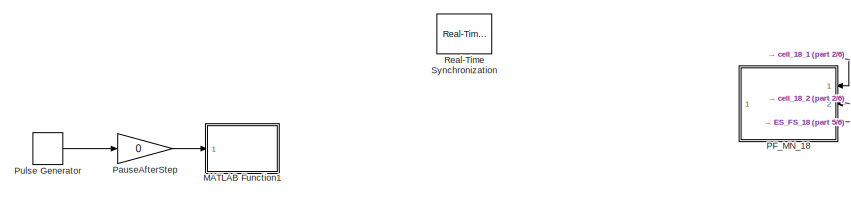
[diagram: root canvas - part 1/6, top left region]
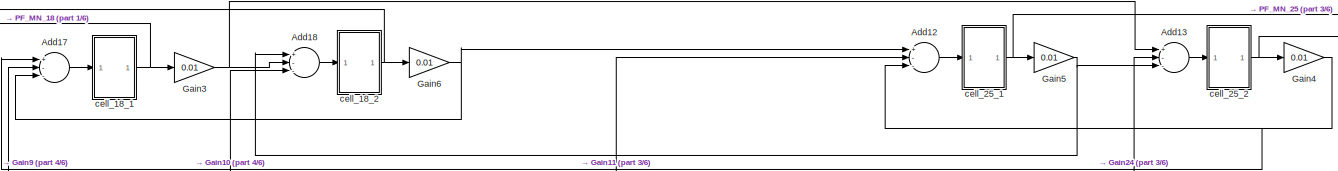
[diagram: root canvas - part 2/6, top right region]
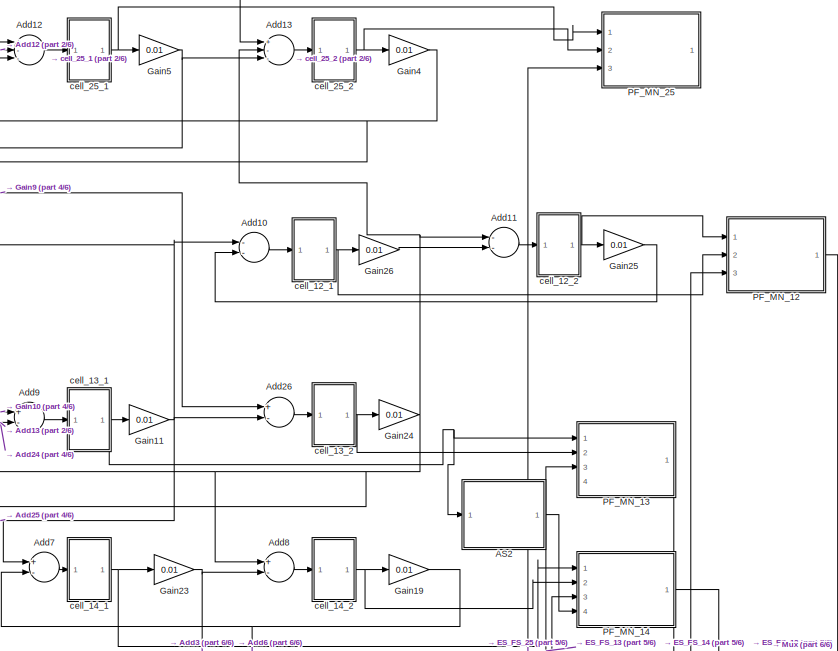
[diagram: root canvas - part 3/6, top right region]
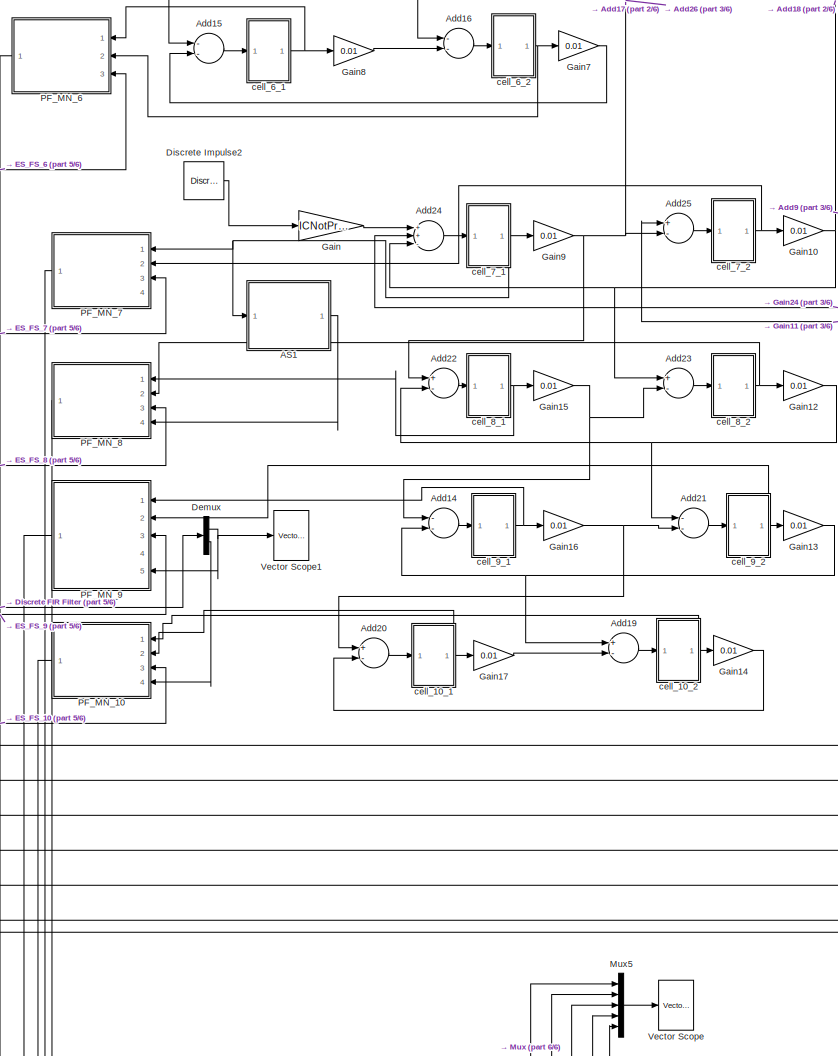
[diagram: root canvas - part 4/6, central region]
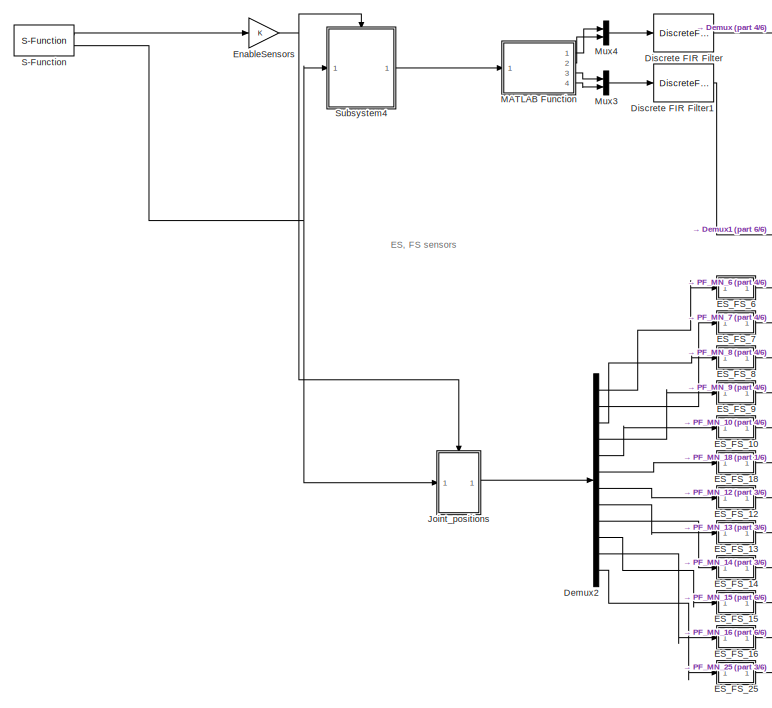
[diagram: root canvas - part 5/6, middle left region]
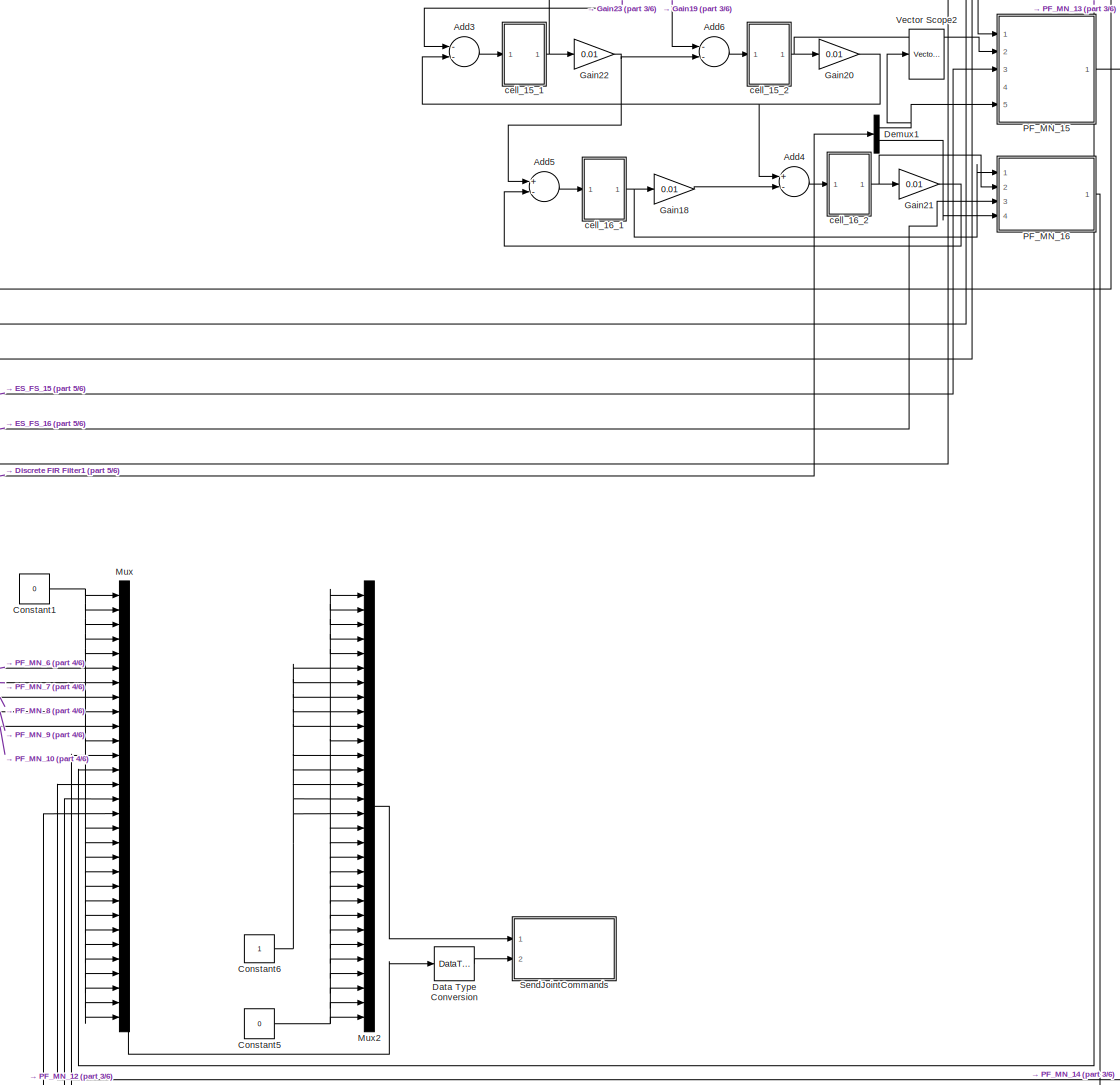
[diagram: root canvas - part 6/6, bottom right region]
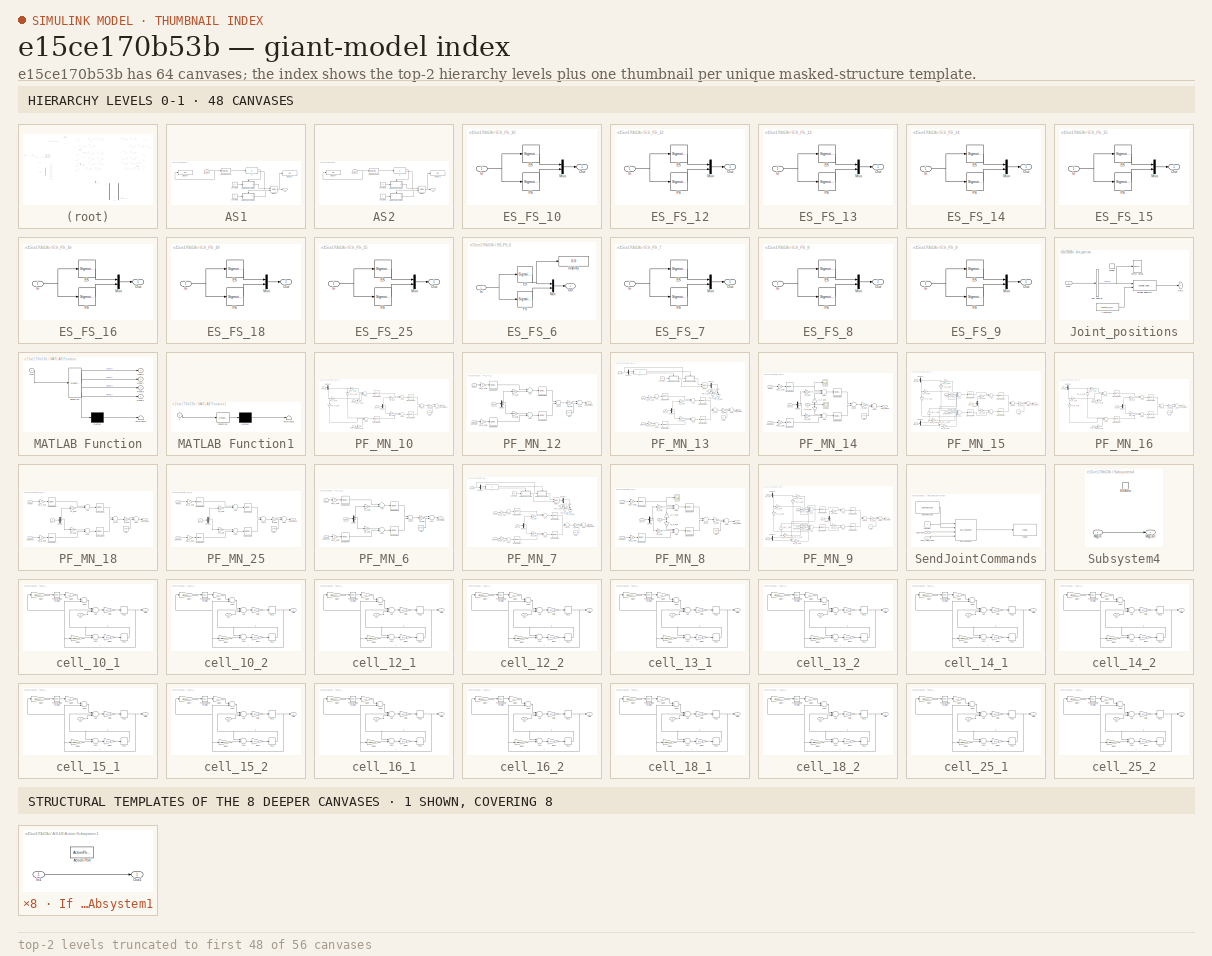
[diagram: thumbnail index - top-2 hierarchy levels (56 canvases (first 48 of 56 shown)) + 1 structural-template representatives of the remaining 8 canvases]
MODEL slx_e15ce170b53b
KIND model
CONFIG AbsTol = auto
CONFIG FixedStep = 0.25
CONFIG MaxStep = auto
CONFIG MinStep = auto
CONFIG RelTol = 1e-3
CONFIG SampleTimeConstraint = Unconstrained
CONFIG Solver = FixedStepAuto
CONFIG SolverMode = Auto
CONFIG SolverName = FixedStepAuto
CONFIG StartTime = 0.0
CONFIG StopTime = inf
BLOCK [SubSystem] AS1
  Ports = [1, 1]
  RequestExecContextInheritance = off
  Variant = off
BLOCK [Outport] AS1/AS
  IconDisplay = Port number
BLOCK [Constant] AS1/Constant1
  Value = 0
BLOCK [Constant] AS1/Constant2
  Value = 0.1
BLOCK [Reference] AS1/Detect Decrease  REF=simulink/Logic and Bit
Operations/Detect
Decrease
  Ports = [1, 1]
  SourceBlock = simulink/Logic and Bit\nOperations/Detect\nDecrease
  SourceType = Detect Decrease
BLOCK [Display] AS1/Display2
  Decimation = 1
  Ports = [1]
BLOCK [Display] AS1/Display4
  Decimation = 1
  Ports = [1]
BLOCK [Inport] AS1/Hip_flexor
  IconDisplay = Port number
BLOCK [If] AS1/If
  IfExpression = u1
  Ports = [1, 2]
BLOCK [SubSystem] AS1/If Action Subsystem1
  Ports = [1, 1, 0, 0, 0, 0, 0, 1]
  RequestExecContextInheritance = off
  TreatAsAtomicUnit = on
  Variant = off
BLOCK [ActionPort] AS1/If Action Subsystem1/Action Port
  ActionType = else
BLOCK [Inport] AS1/If Action Subsystem1/In1
  IconDisplay = Port number
BLOCK [Outport] AS1/If Action Subsystem1/Out1
  IconDisplay = Port number
BLOCK [SubSystem] AS1/If Action Subsystem3
  Ports = [1, 1, 0, 0, 0, 0, 0, 1]
  RequestExecContextInheritance = off
  TreatAsAtomicUnit = on
  Variant = off
BLOCK [ActionPort] AS1/If Action Subsystem3/Action Port
  ActionType = then
BLOCK [Inport] AS1/If Action Subsystem3/In1
  IconDisplay = Port number
BLOCK [Outport] AS1/If Action Subsystem3/Out1
  IconDisplay = Port number
BLOCK [Merge] AS1/Merge1
  Ports = [2, 1]
BLOCK [SubSystem] AS2
  Ports = [1, 1]
  RequestExecContextInheritance = off
  Variant = off
BLOCK [Outport] AS2/AS
  IconDisplay = Port number
BLOCK [Constant] AS2/Constant1
  Value = 0
BLOCK [Constant] AS2/Constant2
  Value = 0.1
BLOCK [Reference] AS2/Detect Decrease  REF=simulink/Logic and Bit
Operations/Detect
Decrease
  Ports = [1, 1]
  SourceBlock = simulink/Logic and Bit\nOperations/Detect\nDecrease
  SourceType = Detect Decrease
BLOCK [Display] AS2/Display2
  Decimation = 1
  Ports = [1]
BLOCK [Display] AS2/Display4
  Decimation = 1
  Ports = [1]
BLOCK [Inport] AS2/Hip_flexor
  IconDisplay = Port number
BLOCK [If] AS2/If
  IfExpression = u1
  Ports = [1, 2]
BLOCK [SubSystem] AS2/If Action Subsystem1
  Ports = [1, 1, 0, 0, 0, 0, 0, 1]
  RequestExecContextInheritance = off
  TreatAsAtomicUnit = on
  Variant = off
BLOCK [ActionPort] AS2/If Action Subsystem1/Action Port
  ActionType = else
BLOCK [Inport] AS2/If Action Subsystem1/In1
  IconDisplay = Port number
BLOCK [Outport] AS2/If Action Subsystem1/Out1
  IconDisplay = Port number
BLOCK [SubSystem] AS2/If Action Subsystem3
  Ports = [1, 1, 0, 0, 0, 0, 0, 1]
  RequestExecContextInheritance = off
  TreatAsAtomicUnit = on
  Variant = off
BLOCK [ActionPort] AS2/If Action Subsystem3/Action Port
  ActionType = then
BLOCK [Inport] AS2/If Action Subsystem3/In1
  IconDisplay = Port number
BLOCK [Outport] AS2/If Action Subsystem3/Out1
  IconDisplay = Port number
BLOCK [Merge] AS2/Merge1
  Ports = [2, 1]
BLOCK [Sum] Add10
  InputSameDT = off
  Inputs = --
  OutDataTypeStr = Inherit: Inherit via internal rule
  Ports = [2, 1]
  SaturateOnIntegerOverflow = off
BLOCK [Sum] Add11
  InputSameDT = off
  Inputs = --
  OutDataTypeStr = Inherit: Inherit via internal rule
  Ports = [2, 1]
  SaturateOnIntegerOverflow = off
BLOCK [Sum] Add12
  InputSameDT = off
  Inputs = +--
  OutDataTypeStr = Inherit: Inherit via internal rule
  Ports = [3, 1]
  SaturateOnIntegerOverflow = off
BLOCK [Sum] Add13
  InputSameDT = off
  Inputs = +--
  OutDataTypeStr = Inherit: Inherit via internal rule
  Ports = [3, 1]
  SaturateOnIntegerOverflow = off
BLOCK [Sum] Add14
  InputSameDT = off
  Inputs = --
  OutDataTypeStr = Inherit: Inherit via internal rule
  Ports = [2, 1]
  SaturateOnIntegerOverflow = off
BLOCK [Sum] Add15
  InputSameDT = off
  Inputs = --
  OutDataTypeStr = Inherit: Inherit via internal rule
  Ports = [2, 1]
  SaturateOnIntegerOverflow = off
BLOCK [Sum] Add16
  InputSameDT = off
  Inputs = --
  OutDataTypeStr = Inherit: Inherit via internal rule
  Ports = [2, 1]
  SaturateOnIntegerOverflow = off
BLOCK [Sum] Add17
  InputSameDT = off
  Inputs = +--
  OutDataTypeStr = Inherit: Inherit via internal rule
  Ports = [3, 1]
  SaturateOnIntegerOverflow = off
BLOCK [Sum] Add18
  InputSameDT = off
  Inputs = +--
  OutDataTypeStr = Inherit: Inherit via internal rule
  Ports = [3, 1]
  SaturateOnIntegerOverflow = off
BLOCK [Sum] Add19
  InputSameDT = off
  Inputs = +-
  OutDataTypeStr = Inherit: Inherit via internal rule
  Ports = [2, 1]
  SaturateOnIntegerOverflow = off
BLOCK [Sum] Add20
  InputSameDT = off
  Inputs = +-
  OutDataTypeStr = Inherit: Inherit via internal rule
  Ports = [2, 1]
  SaturateOnIntegerOverflow = off
BLOCK [Sum] Add21
  InputSameDT = off
  Inputs = --
  OutDataTypeStr = Inherit: Inherit via internal rule
  Ports = [2, 1]
  SaturateOnIntegerOverflow = off
BLOCK [Sum] Add22
  InputSameDT = off
  Inputs = +-
  OutDataTypeStr = Inherit: Inherit via internal rule
  Ports = [2, 1]
  SaturateOnIntegerOverflow = off
BLOCK [Sum] Add23
  InputSameDT = off
  Inputs = +-
  OutDataTypeStr = Inherit: Inherit via internal rule
  Ports = [2, 1]
  SaturateOnIntegerOverflow = off
BLOCK [Sum] Add24
  InputSameDT = off
  Inputs = ++-
  OutDataTypeStr = Inherit: Inherit via internal rule
  Ports = [3, 1]
  SaturateOnIntegerOverflow = off
BLOCK [Sum] Add25
  InputSameDT = off
  Inputs = +-
  OutDataTypeStr = Inherit: Inherit via internal rule
  Ports = [2, 1]
  SaturateOnIntegerOverflow = off
BLOCK [Sum] Add26
  InputSameDT = off
  Inputs = +-
  OutDataTypeStr = Inherit: Inherit via internal rule
  Ports = [2, 1]
  SaturateOnIntegerOverflow = off
BLOCK [Sum] Add3
  InputSameDT = off
  Inputs = --
  OutDataTypeStr = Inherit: Inherit via internal rule
  Ports = [2, 1]
  SaturateOnIntegerOverflow = off
BLOCK [Sum] Add4
  InputSameDT = off
  Inputs = +-
  OutDataTypeStr = Inherit: Inherit via internal rule
  Ports = [2, 1]
  SaturateOnIntegerOverflow = off
BLOCK [Sum] Add5
  InputSameDT = off
  Inputs = +-
  OutDataTypeStr = Inherit: Inherit via internal rule
  Ports = [2, 1]
  SaturateOnIntegerOverflow = off
BLOCK [Sum] Add6
  InputSameDT = off
  Inputs = --
  OutDataTypeStr = Inherit: Inherit via internal rule
  Ports = [2, 1]
  SaturateOnIntegerOverflow = off
BLOCK [Sum] Add7
  InputSameDT = off
  Inputs = +-
  OutDataTypeStr = Inherit: Inherit via internal rule
  Ports = [2, 1]
  SaturateOnIntegerOverflow = off
BLOCK [Sum] Add8
  InputSameDT = off
  Inputs = +-
  OutDataTypeStr = Inherit: Inherit via internal rule
  Ports = [2, 1]
  SaturateOnIntegerOverflow = off
BLOCK [Sum] Add9
  InputSameDT = off
  Inputs = +-
  OutDataTypeStr = Inherit: Inherit via internal rule
  Ports = [2, 1]
  SaturateOnIntegerOverflow = off
BLOCK [Constant] Constant1
  OutDataTypeStr = double
  Value = 0
BLOCK [Constant] Constant5
  OutDataTypeStr = boolean
  Value = 0
BLOCK [Constant] Constant6
  OutDataTypeStr = boolean
BLOCK [DataTypeConversion] Data Type Conversion
  OutDataTypeStr = single
  RndMeth = Floor
  SaturateOnIntegerOverflow = off
BLOCK [Demux] Demux
  DisplayOption = bar
  Outputs = 2
  Ports = [1, 2]
BLOCK [Demux] Demux1
  DisplayOption = bar
  Outputs = 2
  Ports = [1, 2]
BLOCK [Demux] Demux2
  DisplayOption = bar
  Outputs = 12
  Ports = [1, 12]
BLOCK [DiscreteFir] Discrete FIR Filter
  InputPortMap = u0
  OutputPortMap = o0
  Ports = [1, 1]
BLOCK [DiscreteFir] Discrete FIR Filter1
  InputPortMap = u0
  OutputPortMap = o0
  Ports = [1, 1]
BLOCK [Reference] Discrete Impulse2  REF=dspsrcs4/Discrete 
Impulse
  Ports = [0, 1]
  SourceBlock = dspsrcs4/Discrete \nImpulse
  SourceType = Discrete Impulse
BLOCK [SubSystem] ES_FS_10
  Ports = [1, 1]
  RequestExecContextInheritance = off
  Variant = off
BLOCK [Reference] ES_FS_10/ES  REF=fuzblock/Membership   (lib defined in mdl_858b3b3e7478)
Functions/Sigmoidal MF
  Ports = [1, 1]
  SourceBlock = fuzblock/Membership \nFunctions/Sigmoidal MF
  SourceType = sigmf
BLOCK [Reference] ES_FS_10/FS  REF=fuzblock/Membership   (lib defined in mdl_858b3b3e7478)
Functions/Sigmoidal MF
  Ports = [1, 1]
  SourceBlock = fuzblock/Membership \nFunctions/Sigmoidal MF
  SourceType = sigmf
BLOCK [Inport] ES_FS_10/In
  IconDisplay = Port number
BLOCK [Mux] ES_FS_10/Mux
  DisplayOption = bar
  Inputs = 2
  Ports = [2, 1]
BLOCK [Outport] ES_FS_10/Out
  IconDisplay = Port number
BLOCK [SubSystem] ES_FS_12
  Ports = [1, 1]
  RequestExecContextInheritance = off
  Variant = off
BLOCK [Reference] ES_FS_12/ES  REF=fuzblock/Membership   (lib defined in mdl_858b3b3e7478)
Functions/Sigmoidal MF
  Ports = [1, 1]
  SourceBlock = fuzblock/Membership \nFunctions/Sigmoidal MF
  SourceType = sigmf
BLOCK [Reference] ES_FS_12/FS  REF=fuzblock/Membership   (lib defined in mdl_858b3b3e7478)
Functions/Sigmoidal MF
  Ports = [1, 1]
  SourceBlock = fuzblock/Membership \nFunctions/Sigmoidal MF
  SourceType = sigmf
BLOCK [Inport] ES_FS_12/In
  IconDisplay = Port number
BLOCK [Mux] ES_FS_12/Mux
  DisplayOption = bar
  Inputs = 2
  Ports = [2, 1]
BLOCK [Outport] ES_FS_12/Out
  IconDisplay = Port number
BLOCK [SubSystem] ES_FS_13
  Ports = [1, 1]
  RequestExecContextInheritance = off
  Variant = off
BLOCK [Reference] ES_FS_13/ES  REF=fuzblock/Membership   (lib defined in mdl_858b3b3e7478)
Functions/Sigmoidal MF
  Ports = [1, 1]
  SourceBlock = fuzblock/Membership \nFunctions/Sigmoidal MF
  SourceType = sigmf
BLOCK [Reference] ES_FS_13/FS  REF=fuzblock/Membership   (lib defined in mdl_858b3b3e7478)
Functions/Sigmoidal MF
  Ports = [1, 1]
  SourceBlock = fuzblock/Membership \nFunctions/Sigmoidal MF
  SourceType = sigmf
BLOCK [Inport] ES_FS_13/In
  IconDisplay = Port number
BLOCK [Mux] ES_FS_13/Mux
  DisplayOption = bar
  Inputs = 2
  Ports = [2, 1]
BLOCK [Outport] ES_FS_13/Out
  IconDisplay = Port number
BLOCK [SubSystem] ES_FS_14
  Ports = [1, 1]
  RequestExecContextInheritance = off
  Variant = off
BLOCK [Reference] ES_FS_14/ES  REF=fuzblock/Membership   (lib defined in mdl_858b3b3e7478)
Functions/Sigmoidal MF
  Ports = [1, 1]
  SourceBlock = fuzblock/Membership \nFunctions/Sigmoidal MF
  SourceType = sigmf
BLOCK [Reference] ES_FS_14/FS  REF=fuzblock/Membership   (lib defined in mdl_858b3b3e7478)
Functions/Sigmoidal MF
  Ports = [1, 1]
  SourceBlock = fuzblock/Membership \nFunctions/Sigmoidal MF
  SourceType = sigmf
BLOCK [Inport] ES_FS_14/In
  IconDisplay = Port number
BLOCK [Mux] ES_FS_14/Mux
  DisplayOption = bar
  Inputs = 2
  Ports = [2, 1]
BLOCK [Outport] ES_FS_14/Out
  IconDisplay = Port number
BLOCK [SubSystem] ES_FS_15
  Ports = [1, 1]
  RequestExecContextInheritance = off
  Variant = off
BLOCK [Reference] ES_FS_15/ES  REF=fuzblock/Membership   (lib defined in mdl_858b3b3e7478)
Functions/Sigmoidal MF
  Ports = [1, 1]
  SourceBlock = fuzblock/Membership \nFunctions/Sigmoidal MF
  SourceType = sigmf
BLOCK [Reference] ES_FS_15/FS  REF=fuzblock/Membership   (lib defined in mdl_858b3b3e7478)
Functions/Sigmoidal MF
  Ports = [1, 1]
  SourceBlock = fuzblock/Membership \nFunctions/Sigmoidal MF
  SourceType = sigmf
BLOCK [Inport] ES_FS_15/In
  IconDisplay = Port number
BLOCK [Mux] ES_FS_15/Mux
  DisplayOption = bar
  Inputs = 2
  Ports = [2, 1]
BLOCK [Outport] ES_FS_15/Out
  IconDisplay = Port number
BLOCK [SubSystem] ES_FS_16
  Ports = [1, 1]
  RequestExecContextInheritance = off
  Variant = off
BLOCK [Reference] ES_FS_16/ES  REF=fuzblock/Membership   (lib defined in mdl_858b3b3e7478)
Functions/Sigmoidal MF
  Ports = [1, 1]
  SourceBlock = fuzblock/Membership \nFunctions/Sigmoidal MF
  SourceType = sigmf
BLOCK [Reference] ES_FS_16/FS  REF=fuzblock/Membership   (lib defined in mdl_858b3b3e7478)
Functions/Sigmoidal MF
  Ports = [1, 1]
  SourceBlock = fuzblock/Membership \nFunctions/Sigmoidal MF
  SourceType = sigmf
BLOCK [Inport] ES_FS_16/In
  IconDisplay = Port number
BLOCK [Mux] ES_FS_16/Mux
  DisplayOption = bar
  Inputs = 2
  Ports = [2, 1]
BLOCK [Outport] ES_FS_16/Out
  IconDisplay = Port number
BLOCK [SubSystem] ES_FS_18
  Ports = [1, 1]
  RequestExecContextInheritance = off
  Variant = off
BLOCK [Reference] ES_FS_18/ES  REF=fuzblock/Membership   (lib defined in mdl_858b3b3e7478)
Functions/Sigmoidal MF
  Ports = [1, 1]
  SourceBlock = fuzblock/Membership \nFunctions/Sigmoidal MF
  SourceType = sigmf
BLOCK [Reference] ES_FS_18/FS  REF=fuzblock/Membership   (lib defined in mdl_858b3b3e7478)
Functions/Sigmoidal MF
  Ports = [1, 1]
  SourceBlock = fuzblock/Membership \nFunctions/Sigmoidal MF
  SourceType = sigmf
BLOCK [Inport] ES_FS_18/In
  IconDisplay = Port number
BLOCK [Mux] ES_FS_18/Mux
  DisplayOption = bar
  Inputs = 2
  Ports = [2, 1]
BLOCK [Outport] ES_FS_18/Out
  IconDisplay = Port number
BLOCK [SubSystem] ES_FS_25
  Ports = [1, 1]
  RequestExecContextInheritance = off
  Variant = off
BLOCK [Reference] ES_FS_25/ES  REF=fuzblock/Membership   (lib defined in mdl_858b3b3e7478)
Functions/Sigmoidal MF
  Ports = [1, 1]
  SourceBlock = fuzblock/Membership \nFunctions/Sigmoidal MF
  SourceType = sigmf
BLOCK [Reference] ES_FS_25/FS  REF=fuzblock/Membership   (lib defined in mdl_858b3b3e7478)
Functions/Sigmoidal MF
  Ports = [1, 1]
  SourceBlock = fuzblock/Membership \nFunctions/Sigmoidal MF
  SourceType = sigmf
BLOCK [Inport] ES_FS_25/In
  IconDisplay = Port number
BLOCK [Mux] ES_FS_25/Mux
  DisplayOption = bar
  Inputs = 2
  Ports = [2, 1]
BLOCK [Outport] ES_FS_25/Out
  IconDisplay = Port number
BLOCK [SubSystem] ES_FS_6
  Ports = [1, 1]
  RequestExecContextInheritance = off
  Variant = off
BLOCK [Display] ES_FS_6/Display
  Decimation = 1
  Ports = [1]
BLOCK [Reference] ES_FS_6/ES  REF=fuzblock/Membership   (lib defined in mdl_858b3b3e7478)
Functions/Sigmoidal MF
  Ports = [1, 1]
  SourceBlock = fuzblock/Membership \nFunctions/Sigmoidal MF
  SourceType = sigmf
BLOCK [Reference] ES_FS_6/FS  REF=fuzblock/Membership   (lib defined in mdl_858b3b3e7478)
Functions/Sigmoidal MF
  Ports = [1, 1]
  SourceBlock = fuzblock/Membership \nFunctions/Sigmoidal MF
  SourceType = sigmf
BLOCK [Inport] ES_FS_6/In
  IconDisplay = Port number
BLOCK [Mux] ES_FS_6/Mux
  DisplayOption = bar
  Inputs = 2
  Ports = [2, 1]
BLOCK [Outport] ES_FS_6/Out
  IconDisplay = Port number
BLOCK [SubSystem] ES_FS_7
  Ports = [1, 1]
  RequestExecContextInheritance = off
  Variant = off
BLOCK [Reference] ES_FS_7/ES  REF=fuzblock/Membership   (lib defined in mdl_858b3b3e7478)
Functions/Sigmoidal MF
  Ports = [1, 1]
  SourceBlock = fuzblock/Membership \nFunctions/Sigmoidal MF
  SourceType = sigmf
BLOCK [Reference] ES_FS_7/FS  REF=fuzblock/Membership   (lib defined in mdl_858b3b3e7478)
Functions/Sigmoidal MF
  Ports = [1, 1]
  SourceBlock = fuzblock/Membership \nFunctions/Sigmoidal MF
  SourceType = sigmf
BLOCK [Inport] ES_FS_7/In
  IconDisplay = Port number
BLOCK [Mux] ES_FS_7/Mux
  DisplayOption = bar
  Inputs = 2
  Ports = [2, 1]
BLOCK [Outport] ES_FS_7/Out
  IconDisplay = Port number
BLOCK [SubSystem] ES_FS_8
  Ports = [1, 1]
  RequestExecContextInheritance = off
  Variant = off
BLOCK [Reference] ES_FS_8/ES  REF=fuzblock/Membership   (lib defined in mdl_858b3b3e7478)
Functions/Sigmoidal MF
  Ports = [1, 1]
  SourceBlock = fuzblock/Membership \nFunctions/Sigmoidal MF
  SourceType = sigmf
BLOCK [Reference] ES_FS_8/FS  REF=fuzblock/Membership   (lib defined in mdl_858b3b3e7478)
Functions/Sigmoidal MF
  Ports = [1, 1]
  SourceBlock = fuzblock/Membership \nFunctions/Sigmoidal MF
  SourceType = sigmf
BLOCK [Inport] ES_FS_8/In
  IconDisplay = Port number
BLOCK [Mux] ES_FS_8/Mux
  DisplayOption = bar
  Inputs = 2
  Ports = [2, 1]
BLOCK [Outport] ES_FS_8/Out
  IconDisplay = Port number
BLOCK [SubSystem] ES_FS_9
  Ports = [1, 1]
  RequestExecContextInheritance = off
  Variant = off
BLOCK [Reference] ES_FS_9/ES  REF=fuzblock/Membership   (lib defined in mdl_858b3b3e7478)
Functions/Sigmoidal MF
  Ports = [1, 1]
  SourceBlock = fuzblock/Membership \nFunctions/Sigmoidal MF
  SourceType = sigmf
BLOCK [Reference] ES_FS_9/FS  REF=fuzblock/Membership   (lib defined in mdl_858b3b3e7478)
Functions/Sigmoidal MF
  Ports = [1, 1]
  SourceBlock = fuzblock/Membership \nFunctions/Sigmoidal MF
  SourceType = sigmf
BLOCK [Inport] ES_FS_9/In
  IconDisplay = Port number
BLOCK [Mux] ES_FS_9/Mux
  DisplayOption = bar
  Inputs = 2
  Ports = [2, 1]
BLOCK [Outport] ES_FS_9/Out
  IconDisplay = Port number
BLOCK [Gain] EnableSensors
  OutDataTypeStr = Inherit: Inherit via internal rule
  ParamDataTypeStr = Inherit: Inherit via internal rule
  SaturateOnIntegerOverflow = off
BLOCK [Gain] Gain
  Gain = ICNotPresent
  OutDataTypeStr = Inherit: Inherit via internal rule
  ParamDataTypeStr = Inherit: Inherit via internal rule
  SaturateOnIntegerOverflow = off
BLOCK [Gain] Gain10
  Gain = 0.01
  OutDataTypeStr = Inherit: Inherit via internal rule
  ParamDataTypeStr = Inherit: Inherit via internal rule
  SaturateOnIntegerOverflow = off
BLOCK [Gain] Gain11
  Gain = 0.01
  OutDataTypeStr = Inherit: Inherit via internal rule
  ParamDataTypeStr = Inherit: Inherit via internal rule
  SaturateOnIntegerOverflow = off
BLOCK [Gain] Gain12
  Gain = 0.01
  OutDataTypeStr = Inherit: Inherit via internal rule
  ParamDataTypeStr = Inherit: Inherit via internal rule
  SaturateOnIntegerOverflow = off
BLOCK [Gain] Gain13
  Gain = 0.01
  OutDataTypeStr = Inherit: Inherit via internal rule
  ParamDataTypeStr = Inherit: Inherit via internal rule
  SaturateOnIntegerOverflow = off
BLOCK [Gain] Gain14
  Gain = 0.01
  OutDataTypeStr = Inherit: Inherit via internal rule
  ParamDataTypeStr = Inherit: Inherit via internal rule
  SaturateOnIntegerOverflow = off
BLOCK [Gain] Gain15
  Gain = 0.01
  OutDataTypeStr = Inherit: Inherit via internal rule
  ParamDataTypeStr = Inherit: Inherit via internal rule
  SaturateOnIntegerOverflow = off
BLOCK [Gain] Gain16
  Gain = 0.01
  OutDataTypeStr = Inherit: Inherit via internal rule
  ParamDataTypeStr = Inherit: Inherit via internal rule
  SaturateOnIntegerOverflow = off
BLOCK [Gain] Gain17
  Gain = 0.01
  OutDataTypeStr = Inherit: Inherit via internal rule
  ParamDataTypeStr = Inherit: Inherit via internal rule
  SaturateOnIntegerOverflow = off
BLOCK [Gain] Gain18
  Gain = 0.01
  OutDataTypeStr = Inherit: Inherit via internal rule
  ParamDataTypeStr = Inherit: Inherit via internal rule
  SaturateOnIntegerOverflow = off
BLOCK [Gain] Gain19
  Gain = 0.01
  OutDataTypeStr = Inherit: Inherit via internal rule
  ParamDataTypeStr = Inherit: Inherit via internal rule
  SaturateOnIntegerOverflow = off
BLOCK [Gain] Gain20
  Gain = 0.01
  OutDataTypeStr = Inherit: Inherit via internal rule
  ParamDataTypeStr = Inherit: Inherit via internal rule
  SaturateOnIntegerOverflow = off
BLOCK [Gain] Gain21
  Gain = 0.01
  OutDataTypeStr = Inherit: Inherit via internal rule
  ParamDataTypeStr = Inherit: Inherit via internal rule
  SaturateOnIntegerOverflow = off
BLOCK [Gain] Gain22
  Gain = 0.01
  OutDataTypeStr = Inherit: Inherit via internal rule
  ParamDataTypeStr = Inherit: Inherit via internal rule
  SaturateOnIntegerOverflow = off
BLOCK [Gain] Gain23
  Gain = 0.01
  OutDataTypeStr = Inherit: Inherit via internal rule
  ParamDataTypeStr = Inherit: Inherit via internal rule
  SaturateOnIntegerOverflow = off
BLOCK [Gain] Gain24
  Gain = 0.01
  OutDataTypeStr = Inherit: Inherit via internal rule
  ParamDataTypeStr = Inherit: Inherit via internal rule
  SaturateOnIntegerOverflow = off
BLOCK [Gain] Gain25
  Gain = 0.01
  OutDataTypeStr = Inherit: Inherit via internal rule
  ParamDataTypeStr = Inherit: Inherit via internal rule
  SaturateOnIntegerOverflow = off
BLOCK [Gain] Gain26
  Gain = 0.01
  OutDataTypeStr = Inherit: Inherit via internal rule
  ParamDataTypeStr = Inherit: Inherit via internal rule
  SaturateOnIntegerOverflow = off
BLOCK [Gain] Gain3
  Gain = 0.01
  OutDataTypeStr = Inherit: Inherit via internal rule
  ParamDataTypeStr = Inherit: Inherit via internal rule
  SaturateOnIntegerOverflow = off
BLOCK [Gain] Gain4
  Gain = 0.01
  OutDataTypeStr = Inherit: Inherit via internal rule
  ParamDataTypeStr = Inherit: Inherit via internal rule
  SaturateOnIntegerOverflow = off
BLOCK [Gain] Gain5
  Gain = 0.01
  OutDataTypeStr = Inherit: Inherit via internal rule
  ParamDataTypeStr = Inherit: Inherit via internal rule
  SaturateOnIntegerOverflow = off
BLOCK [Gain] Gain6
  Gain = 0.01
  OutDataTypeStr = Inherit: Inherit via internal rule
  ParamDataTypeStr = Inherit: Inherit via internal rule
  SaturateOnIntegerOverflow = off
BLOCK [Gain] Gain7
  Gain = 0.01
  OutDataTypeStr = Inherit: Inherit via internal rule
  ParamDataTypeStr = Inherit: Inherit via internal rule
  SaturateOnIntegerOverflow = off
BLOCK [Gain] Gain8
  Gain = 0.01
  OutDataTypeStr = Inherit: Inherit via internal rule
  ParamDataTypeStr = Inherit: Inherit via internal rule
  SaturateOnIntegerOverflow = off
BLOCK [Gain] Gain9
  Gain = 0.01
  OutDataTypeStr = Inherit: Inherit via internal rule
  ParamDataTypeStr = Inherit: Inherit via internal rule
  SaturateOnIntegerOverflow = off
BLOCK [SubSystem] Joint_positions
  Ports = [1, 1, 1]
  RequestExecContextInheritance = off
  Variant = off
BLOCK [BusSelector] Joint_positions/Bus Selector
  OutputSignals = Joints
  Ports = [1, 1]
BLOCK [Constant] Joint_positions/Constant7
  Value = joints_in_use
BLOCK [EnablePort] Joint_positions/Enable
  Ports = []
BLOCK [Inport] Joint_positions/Msg
  IconDisplay = Port number
BLOCK [Outport] Joint_positions/Out2
  IconDisplay = Port number
BLOCK [Reference] Joint_positions/Variable Selector2  REF=dspindex/Variable
Selector
  Ports = [2, 1]
  SourceBlock = dspindex/Variable\nSelector
  SourceType = Variable Selector
BLOCK [Reference] Joint_positions/Vector Scope  REF=dspsnks4/Vector
Scope
  Ports = [1]
  SourceBlock = dspsnks4/Vector\nScope
  SourceType = Vector Scope
BLOCK [SubSystem] MATLAB Function
  ErrorFcn = Stateflow.Translate.translate
  PermitHierarchicalResolution = ExplicitOnly
  Ports = [1, 4]
  RequestExecContextInheritance = off
  SFBlockType = MATLAB Function
  TreatAsAtomicUnit = on
  Variant = off
BLOCK [Demux] MATLAB Function/ Demux 
  Outputs = 1
  Ports = [1, 1]
BLOCK [S-Function] MATLAB Function/ SFunction 
  EnableBusSupport = on
  FunctionName = sf_sfun
  PortCounts = [1 5]
  Ports = [1, 5]
  SFunctionDeploymentMode = off
  Tag = Stateflow S-Function cpg_optimized 2
BLOCK [Terminator] MATLAB Function/ Terminator 
BLOCK [Outport] MATLAB Function/LFootX
  IconDisplay = Port number
BLOCK [Outport] MATLAB Function/LFootY
  IconDisplay = Port number
  Port = 2
BLOCK [Outport] MATLAB Function/RFootX
  IconDisplay = Port number
  Port = 3
BLOCK [Outport] MATLAB Function/RFootY
  IconDisplay = Port number
  Port = 4
BLOCK [Inport] MATLAB Function/msg
  IconDisplay = Port number
BLOCK [SubSystem] MATLAB Function1
  ErrorFcn = Stateflow.Translate.translate
  PermitHierarchicalResolution = ExplicitOnly
  Ports = [1]
  RequestExecContextInheritance = off
  SFBlockType = MATLAB Function
  TreatAsAtomicUnit = on
  Variant = off
BLOCK [Demux] MATLAB Function1/ Demux 
  Outputs = 1
  Ports = [1, 1]
BLOCK [S-Function] MATLAB Function1/ SFunction 
  EnableBusSupport = on
  FunctionName = sf_sfun
  PortCounts = [1 1]
  Ports = [1, 1]
  SFunctionDeploymentMode = off
  Tag = Stateflow S-Function cpg_optimized 1
BLOCK [Terminator] MATLAB Function1/ Terminator 
BLOCK [Inport] MATLAB Function1/u
  IconDisplay = Port number
BLOCK [Mux] Mux
  DisplayOption = bar
  Inputs = 30
  Ports = [30, 1]
BLOCK [Mux] Mux2
  DisplayOption = bar
  Inputs = 30
  Ports = [30, 1]
BLOCK [Mux] Mux3
  DisplayOption = bar
  Inputs = 2
  Ports = [2, 1]
BLOCK [Mux] Mux4
  DisplayOption = bar
  Inputs = 2
  Ports = [2, 1]
BLOCK [Mux] Mux5
  DisplayOption = bar
  Inputs = 5
  Ports = [5, 1]
BLOCK [SubSystem] PF_MN_10
  Ports = [4, 1]
  RequestExecContextInheritance = off
  Variant = off
BLOCK [Sum] PF_MN_10/Add
  InputSameDT = off
  OutDataTypeStr = Inherit: Inherit via internal rule
  Ports = [2, 1]
  SaturateOnIntegerOverflow = off
BLOCK [Sum] PF_MN_10/Add1
  InputSameDT = off
  OutDataTypeStr = Inherit: Inherit via internal rule
  Ports = [2, 1]
  SaturateOnIntegerOverflow = off
BLOCK [Sum] PF_MN_10/Add2
  InputSameDT = off
  OutDataTypeStr = Inherit: Inherit via internal rule
  Ports = [2, 1]
  SaturateOnIntegerOverflow = off
BLOCK [Sum] PF_MN_10/Add28
  InputSameDT = off
  Inputs = -+
  OutDataTypeStr = Inherit: Inherit via internal rule
  Ports = [2, 1]
  SaturateOnIntegerOverflow = off
BLOCK [Sum] PF_MN_10/Add3
  InputSameDT = off
  Inputs = +++
  OutDataTypeStr = Inherit: Inherit via internal rule
  Ports = [3, 1]
  SaturateOnIntegerOverflow = off
BLOCK [Sum] PF_MN_10/Add4
  InputSameDT = off
  Inputs = +++
  OutDataTypeStr = Inherit: Inherit via internal rule
  Ports = [3, 1]
  SaturateOnIntegerOverflow = off
BLOCK [Demux] PF_MN_10/Demux
  DisplayOption = bar
  Outputs = 2
  Ports = [1, 2]
BLOCK [Demux] PF_MN_10/Demux2
  DisplayOption = bar
  Outputs = 2
  Ports = [1, 2]
BLOCK [Inport] PF_MN_10/ES_FS
  IconDisplay = Port number
  Port = 3
BLOCK [Gain] PF_MN_10/ES_gain
  Gain = -0.02
  OutDataTypeStr = Inherit: Inherit via internal rule
  ParamDataTypeStr = Inherit: Inherit via internal rule
  SaturateOnIntegerOverflow = off
BLOCK [Inport] PF_MN_10/Extension
  IconDisplay = Port number
  Port = 2
BLOCK [Gain] PF_MN_10/FB_E_gain
  Gain = -0.03
  OutDataTypeStr = Inherit: Inherit via internal rule
  ParamDataTypeStr = Inherit: Inherit via internal rule
  SaturateOnIntegerOverflow = off
BLOCK [Gain] PF_MN_10/FB_F_gain
  Gain = 0.03
  OutDataTypeStr = Inherit: Inherit via internal rule
  ParamDataTypeStr = Inherit: Inherit via internal rule
  SaturateOnIntegerOverflow = off
BLOCK [Gain] PF_MN_10/FF_E_gain
  Gain = 0.03
  OutDataTypeStr = Inherit: Inherit via internal rule
  ParamDataTypeStr = Inherit: Inherit via internal rule
  SaturateOnIntegerOverflow = off
BLOCK [Inport] PF_MN_10/FF_FB
  IconDisplay = Port number
  Port = 4
BLOCK [Gain] PF_MN_10/FF_F_gain
  Gain = -0.03
  OutDataTypeStr = Inherit: Inherit via internal rule
  ParamDataTypeStr = Inherit: Inherit via internal rule
  SaturateOnIntegerOverflow = off
BLOCK [Gain] PF_MN_10/FS_gain
  Gain = -0.02
  OutDataTypeStr = Inherit: Inherit via internal rule
  ParamDataTypeStr = Inherit: Inherit via internal rule
  SaturateOnIntegerOverflow = off
BLOCK [Inport] PF_MN_10/Flexion
  IconDisplay = Port number
BLOCK [Outport] PF_MN_10/Joint_Output
  IconDisplay = Port number
BLOCK [Gain] PF_MN_10/M_gain
  Gain = 50
  OutDataTypeStr = Inherit: Inherit via internal rule
  ParamDataTypeStr = Inherit: Inherit via internal rule
  SaturateOnIntegerOverflow = off
BLOCK [Gain] PF_MN_10/RG_E_gain
  Gain = 0.5
  OutDataTypeStr = Inherit: Inherit via internal rule
  ParamDataTypeStr = Inherit: Inherit via internal rule
  SaturateOnIntegerOverflow = off
BLOCK [Gain] PF_MN_10/RG_F_gain
  Gain = 0.5
  OutDataTypeStr = Inherit: Inherit via internal rule
  ParamDataTypeStr = Inherit: Inherit via internal rule
  SaturateOnIntegerOverflow = off
BLOCK [Constant] PF_MN_10/Shift
  Value = -0.075465
BLOCK [Reference] PF_MN_10/Sigmoidal MF6  REF=fuzblock/Membership   (lib defined in mdl_858b3b3e7478)
Functions/Sigmoidal MF
  Ports = [1, 1]
  SourceBlock = fuzblock/Membership \nFunctions/Sigmoidal MF
  SourceType = sigmf
BLOCK [Reference] PF_MN_10/Sigmoidal MF7  REF=fuzblock/Membership   (lib defined in mdl_858b3b3e7478)
Functions/Sigmoidal MF
  Ports = [1, 1]
  SourceBlock = fuzblock/Membership \nFunctions/Sigmoidal MF
  SourceType = sigmf
BLOCK [Reference] PF_MN_10/Sigmoidal MF8  REF=fuzblock/Membership   (lib defined in mdl_858b3b3e7478)
Functions/Sigmoidal MF
  Ports = [1, 1]
  SourceBlock = fuzblock/Membership \nFunctions/Sigmoidal MF
  SourceType = sigmf
BLOCK [Reference] PF_MN_10/Sigmoidal MF9  REF=fuzblock/Membership   (lib defined in mdl_858b3b3e7478)
Functions/Sigmoidal MF
  Ports = [1, 1]
  SourceBlock = fuzblock/Membership \nFunctions/Sigmoidal MF
  SourceType = sigmf
BLOCK [SubSystem] PF_MN_12
  Ports = [3, 1]
  RequestExecContextInheritance = off
  Variant = off
BLOCK [Sum] PF_MN_12/Add
  InputSameDT = off
  OutDataTypeStr = Inherit: Inherit via internal rule
  Ports = [2, 1]
  SaturateOnIntegerOverflow = off
BLOCK [Sum] PF_MN_12/Add1
  InputSameDT = off
  OutDataTypeStr = Inherit: Inherit via internal rule
  Ports = [2, 1]
  SaturateOnIntegerOverflow = off
BLOCK [Sum] PF_MN_12/Add2
  InputSameDT = off
  OutDataTypeStr = Inherit: Inherit via internal rule
  Ports = [2, 1]
  SaturateOnIntegerOverflow = off
BLOCK [Sum] PF_MN_12/Add28
  InputSameDT = off
  Inputs = -+
  OutDataTypeStr = Inherit: Inherit via internal rule
  Ports = [2, 1]
  SaturateOnIntegerOverflow = off
BLOCK [Demux] PF_MN_12/Demux
  DisplayOption = bar
  Outputs = 2
  Ports = [1, 2]
BLOCK [Inport] PF_MN_12/ES_FS
  IconDisplay = Port number
  Port = 3
BLOCK [Gain] PF_MN_12/ES_gain
  Gain = -0.01
  OutDataTypeStr = Inherit: Inherit via internal rule
  ParamDataTypeStr = Inherit: Inherit via internal rule
  SaturateOnIntegerOverflow = off
BLOCK [Inport] PF_MN_12/Extension
  IconDisplay = Port number
  Port = 2
BLOCK [Gain] PF_MN_12/FS_gain
  Gain = -0.01
  OutDataTypeStr = Inherit: Inherit via internal rule
  ParamDataTypeStr = Inherit: Inherit via internal rule
  SaturateOnIntegerOverflow = off
BLOCK [Inport] PF_MN_12/Flexion
  IconDisplay = Port number
BLOCK [Outport] PF_MN_12/Joint_Output
  IconDisplay = Port number
BLOCK [Gain] PF_MN_12/M_gain
  Gain = 50
  OutDataTypeStr = Inherit: Inherit via internal rule
  ParamDataTypeStr = Inherit: Inherit via internal rule
  SaturateOnIntegerOverflow = off
BLOCK [Gain] PF_MN_12/RG_E_gain
  OutDataTypeStr = Inherit: Inherit via internal rule
  ParamDataTypeStr = Inherit: Inherit via internal rule
  SaturateOnIntegerOverflow = off
BLOCK [Gain] PF_MN_12/RG_F_gain
  OutDataTypeStr = Inherit: Inherit via internal rule
  ParamDataTypeStr = Inherit: Inherit via internal rule
  SaturateOnIntegerOverflow = off
BLOCK [Constant] PF_MN_12/Shift
  Value = -0.075739
BLOCK [Reference] PF_MN_12/Sigmoidal MF6  REF=fuzblock/Membership   (lib defined in mdl_858b3b3e7478)
Functions/Sigmoidal MF
  Ports = [1, 1]
  SourceBlock = fuzblock/Membership \nFunctions/Sigmoidal MF
  SourceType = sigmf
BLOCK [Reference] PF_MN_12/Sigmoidal MF7  REF=fuzblock/Membership   (lib defined in mdl_858b3b3e7478)
Functions/Sigmoidal MF
  Ports = [1, 1]
  SourceBlock = fuzblock/Membership \nFunctions/Sigmoidal MF
  SourceType = sigmf
BLOCK [Reference] PF_MN_12/Sigmoidal MF8  REF=fuzblock/Membership   (lib defined in mdl_858b3b3e7478)
Functions/Sigmoidal MF
  Ports = [1, 1]
  SourceBlock = fuzblock/Membership \nFunctions/Sigmoidal MF
  SourceType = sigmf
BLOCK [Reference] PF_MN_12/Sigmoidal MF9  REF=fuzblock/Membership   (lib defined in mdl_858b3b3e7478)
Functions/Sigmoidal MF
  Ports = [1, 1]
  SourceBlock = fuzblock/Membership \nFunctions/Sigmoidal MF
  SourceType = sigmf
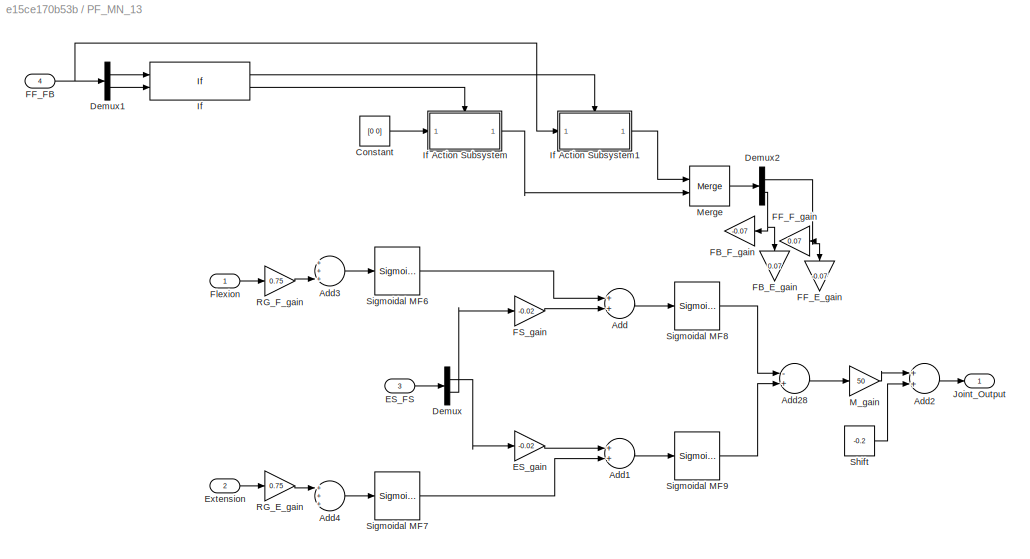
BLOCK [SubSystem] PF_MN_13
  Ports = [4, 1]
  RequestExecContextInheritance = off
  Variant = off
BLOCK [Sum] PF_MN_13/Add
  InputSameDT = off
  OutDataTypeStr = Inherit: Inherit via internal rule
  Ports = [2, 1]
  SaturateOnIntegerOverflow = off
BLOCK [Sum] PF_MN_13/Add1
  InputSameDT = off
  OutDataTypeStr = Inherit: Inherit via internal rule
  Ports = [2, 1]
  SaturateOnIntegerOverflow = off
BLOCK [Sum] PF_MN_13/Add2
  InputSameDT = off
  OutDataTypeStr = Inherit: Inherit via internal rule
  Ports = [2, 1]
  SaturateOnIntegerOverflow = off
BLOCK [Sum] PF_MN_13/Add28
  InputSameDT = off
  Inputs = -+
  OutDataTypeStr = Inherit: Inherit via internal rule
  Ports = [2, 1]
  SaturateOnIntegerOverflow = off
BLOCK [Sum] PF_MN_13/Add3
  InputSameDT = off
  Inputs = +++
  OutDataTypeStr = Inherit: Inherit via internal rule
  Ports = [3, 1]
  SaturateOnIntegerOverflow = off
BLOCK [Sum] PF_MN_13/Add4
  InputSameDT = off
  Inputs = +++
  OutDataTypeStr = Inherit: Inherit via internal rule
  Ports = [3, 1]
  SaturateOnIntegerOverflow = off
BLOCK [Constant] PF_MN_13/Constant
  Value = [0 0]
BLOCK [Demux] PF_MN_13/Demux
  DisplayOption = bar
  Outputs = 2
  Ports = [1, 2]
BLOCK [Demux] PF_MN_13/Demux1
  DisplayOption = bar
  Outputs = 2
  Ports = [1, 2]
BLOCK [Demux] PF_MN_13/Demux2
  DisplayOption = bar
  Outputs = 2
  Ports = [1, 2]
BLOCK [Inport] PF_MN_13/ES_FS
  IconDisplay = Port number
  Port = 3
BLOCK [Gain] PF_MN_13/ES_gain
  Gain = -0.02
  OutDataTypeStr = Inherit: Inherit via internal rule
  ParamDataTypeStr = Inherit: Inherit via internal rule
  SaturateOnIntegerOverflow = off
BLOCK [Inport] PF_MN_13/Extension
  IconDisplay = Port number
  Port = 2
BLOCK [Gain] PF_MN_13/FB_E_gain
  Gain = 0.07
  OutDataTypeStr = Inherit: Inherit via internal rule
  ParamDataTypeStr = Inherit: Inherit via internal rule
  SaturateOnIntegerOverflow = off
BLOCK [Gain] PF_MN_13/FB_F_gain
  Gain = -0.07
  OutDataTypeStr = Inherit: Inherit via internal rule
  ParamDataTypeStr = Inherit: Inherit via internal rule
  SaturateOnIntegerOverflow = off
BLOCK [Gain] PF_MN_13/FF_E_gain
  Gain = -0.07
  OutDataTypeStr = Inherit: Inherit via internal rule
  ParamDataTypeStr = Inherit: Inherit via internal rule
  SaturateOnIntegerOverflow = off
BLOCK [Inport] PF_MN_13/FF_FB
  IconDisplay = Port number
  Port = 4
BLOCK [Gain] PF_MN_13/FF_F_gain
  Gain = 0.07
  OutDataTypeStr = Inherit: Inherit via internal rule
  ParamDataTypeStr = Inherit: Inherit via internal rule
  SaturateOnIntegerOverflow = off
BLOCK [Gain] PF_MN_13/FS_gain
  Gain = -0.02
  OutDataTypeStr = Inherit: Inherit via internal rule
  ParamDataTypeStr = Inherit: Inherit via internal rule
  SaturateOnIntegerOverflow = off
BLOCK [Inport] PF_MN_13/Flexion
  IconDisplay = Port number
BLOCK [If] PF_MN_13/If
  IfExpression = u1 > 0.8 | u2 > 0.8
  NumInputs = 2
  Ports = [2, 2]
BLOCK [SubSystem] PF_MN_13/If Action Subsystem
  Ports = [1, 1, 0, 0, 0, 0, 0, 1]
  RequestExecContextInheritance = off
  TreatAsAtomicUnit = on
  Variant = off
BLOCK [ActionPort] PF_MN_13/If Action Subsystem/Action Port
  ActionType = else
BLOCK [Inport] PF_MN_13/If Action Subsystem/In1
  IconDisplay = Port number
BLOCK [Outport] PF_MN_13/If Action Subsystem/Out1
  IconDisplay = Port number
BLOCK [SubSystem] PF_MN_13/If Action Subsystem1
  Ports = [1, 1, 0, 0, 0, 0, 0, 1]
  RequestExecContextInheritance = off
  TreatAsAtomicUnit = on
  Variant = off
BLOCK [ActionPort] PF_MN_13/If Action Subsystem1/Action Port
  ActionType = then
BLOCK [Inport] PF_MN_13/If Action Subsystem1/In1
  IconDisplay = Port number
BLOCK [Outport] PF_MN_13/If Action Subsystem1/Out1
  IconDisplay = Port number
BLOCK [Outport] PF_MN_13/Joint_Output
  IconDisplay = Port number
BLOCK [Gain] PF_MN_13/M_gain
  Gain = 50
  OutDataTypeStr = Inherit: Inherit via internal rule
  ParamDataTypeStr = Inherit: Inherit via internal rule
  SaturateOnIntegerOverflow = off
BLOCK [Merge] PF_MN_13/Merge
  Ports = [2, 1]
BLOCK [Gain] PF_MN_13/RG_E_gain
  Gain = 0.75
  OutDataTypeStr = Inherit: Inherit via internal rule
  ParamDataTypeStr = Inherit: Inherit via internal rule
  SaturateOnIntegerOverflow = off
BLOCK [Gain] PF_MN_13/RG_F_gain
  Gain = 0.75
  OutDataTypeStr = Inherit: Inherit via internal rule
  ParamDataTypeStr = Inherit: Inherit via internal rule
  SaturateOnIntegerOverflow = off
BLOCK [Constant] PF_MN_13/Shift
  Value = -0.2
BLOCK [Reference] PF_MN_13/Sigmoidal MF6  REF=fuzblock/Membership   (lib defined in mdl_858b3b3e7478)
Functions/Sigmoidal MF
  Ports = [1, 1]
  SourceBlock = fuzblock/Membership \nFunctions/Sigmoidal MF
  SourceType = sigmf
BLOCK [Reference] PF_MN_13/Sigmoidal MF7  REF=fuzblock/Membership   (lib defined in mdl_858b3b3e7478)
Functions/Sigmoidal MF
  Ports = [1, 1]
  SourceBlock = fuzblock/Membership \nFunctions/Sigmoidal MF
  SourceType = sigmf
BLOCK [Reference] PF_MN_13/Sigmoidal MF8  REF=fuzblock/Membership   (lib defined in mdl_858b3b3e7478)
Functions/Sigmoidal MF
  Ports = [1, 1]
  SourceBlock = fuzblock/Membership \nFunctions/Sigmoidal MF
  SourceType = sigmf
BLOCK [Reference] PF_MN_13/Sigmoidal MF9  REF=fuzblock/Membership   (lib defined in mdl_858b3b3e7478)
Functions/Sigmoidal MF
  Ports = [1, 1]
  SourceBlock = fuzblock/Membership \nFunctions/Sigmoidal MF
  SourceType = sigmf
BLOCK [SubSystem] PF_MN_14
  Ports = [4, 1]
  RequestExecContextInheritance = off
  Variant = off
BLOCK [Inport] PF_MN_14/AS
  IconDisplay = Port number
  Port = 4
BLOCK [Gain] PF_MN_14/AS_E_gain
  Gain = 0.2
  OutDataTypeStr = Inherit: Inherit via internal rule
  ParamDataTypeStr = Inherit: Inherit via internal rule
  SaturateOnIntegerOverflow = off
BLOCK [Gain] PF_MN_14/AS_F_gain
  Gain = -0.2
  OutDataTypeStr = Inherit: Inherit via internal rule
  ParamDataTypeStr = Inherit: Inherit via internal rule
  SaturateOnIntegerOverflow = off
BLOCK [Sum] PF_MN_14/Add
  InputSameDT = off
  Inputs = +++
  OutDataTypeStr = Inherit: Inherit via internal rule
  Ports = [3, 1]
  SaturateOnIntegerOverflow = off
BLOCK [Sum] PF_MN_14/Add1
  InputSameDT = off
  Inputs = +++
  OutDataTypeStr = Inherit: Inherit via internal rule
  Ports = [3, 1]
  SaturateOnIntegerOverflow = off
BLOCK [Sum] PF_MN_14/Add2
  InputSameDT = off
  OutDataTypeStr = Inherit: Inherit via internal rule
  Ports = [2, 1]
  SaturateOnIntegerOverflow = off
BLOCK [Sum] PF_MN_14/Add28
  InputSameDT = off
  Inputs = +-
  OutDataTypeStr = Inherit: Inherit via internal rule
  Ports = [2, 1]
  SaturateOnIntegerOverflow = off
BLOCK [Demux] PF_MN_14/Demux
  DisplayOption = bar
  Outputs = 2
  Ports = [1, 2]
BLOCK [Inport] PF_MN_14/ES_FS
  IconDisplay = Port number
  Port = 3
BLOCK [Gain] PF_MN_14/ES_gain
  Gain = -0.02
  OutDataTypeStr = Inherit: Inherit via internal rule
  ParamDataTypeStr = Inherit: Inherit via internal rule
  SaturateOnIntegerOverflow = off
BLOCK [Inport] PF_MN_14/Extension
  IconDisplay = Port number
  Port = 2
BLOCK [Gain] PF_MN_14/FS_gain
  Gain = -0.02
  OutDataTypeStr = Inherit: Inherit via internal rule
  ParamDataTypeStr = Inherit: Inherit via internal rule
  SaturateOnIntegerOverflow = off
BLOCK [Inport] PF_MN_14/Flexion
  IconDisplay = Port number
BLOCK [Outport] PF_MN_14/Joint_Output
  IconDisplay = Port number
BLOCK [Gain] PF_MN_14/M_gain
  Gain = 50
  OutDataTypeStr = Inherit: Inherit via internal rule
  ParamDataTypeStr = Inherit: Inherit via internal rule
  SaturateOnIntegerOverflow = off
BLOCK [Gain] PF_MN_14/RG_E_gain
  Gain = 0.75
  OutDataTypeStr = Inherit: Inherit via internal rule
  ParamDataTypeStr = Inherit: Inherit via internal rule
  SaturateOnIntegerOverflow = off
BLOCK [Gain] PF_MN_14/RG_F_gain
  Gain = 0.75
  OutDataTypeStr = Inherit: Inherit via internal rule
  ParamDataTypeStr = Inherit: Inherit via internal rule
  SaturateOnIntegerOverflow = off
BLOCK [Scope] PF_MN_14/Scope
  Ports = [1]
  ScopeSpecificationString = Simulink.scopes.TimeScopeBlockCfg('CurrentConfiguration', extmgr.ConfigurationSet(extmgr.Configuration('Core','General UI',true),extmgr.Configuration('Core','Source UI',true),extmgr.Configuration('Sources','WiredSimulink',true),extmgr.Configuration('Visuals','Time Domain',true,'SerializedDisplays',{struct('MinYLimReal','0.4','MaxYLimReal','0.6','YLabelReal','','MinYLimMag','0.4','MaxYLimMag','0.6'...<+1328ch>
BLOCK [Scope] PF_MN_14/Scope1
  Ports = [1]
  ScopeSpecificationString = Simulink.scopes.TimeScopeBlockCfg('CurrentConfiguration', extmgr.ConfigurationSet(extmgr.Configuration('Core','General UI',true),extmgr.Configuration('Core','Source UI',true),extmgr.Configuration('Sources','WiredSimulink',true,'DataLoggingVariableName','ScopeData1'),extmgr.Configuration('Visuals','Time Domain',true,'SerializedDisplays',{struct('MinYLimReal','-1.00000','MaxYLimReal','1.00000','YLab...<+1361ch>
BLOCK [Constant] PF_MN_14/Shift
  Value = 0.45
BLOCK [Reference] PF_MN_14/Sigmoidal MF6  REF=fuzblock/Membership   (lib defined in mdl_858b3b3e7478)
Functions/Sigmoidal MF
  Ports = [1, 1]
  SourceBlock = fuzblock/Membership \nFunctions/Sigmoidal MF
  SourceType = sigmf
BLOCK [Reference] PF_MN_14/Sigmoidal MF7  REF=fuzblock/Membership   (lib defined in mdl_858b3b3e7478)
Functions/Sigmoidal MF
  Ports = [1, 1]
  SourceBlock = fuzblock/Membership \nFunctions/Sigmoidal MF
  SourceType = sigmf
BLOCK [Reference] PF_MN_14/Sigmoidal MF8  REF=fuzblock/Membership   (lib defined in mdl_858b3b3e7478)
Functions/Sigmoidal MF
  Ports = [1, 1]
  SourceBlock = fuzblock/Membership \nFunctions/Sigmoidal MF
  SourceType = sigmf
BLOCK [Reference] PF_MN_14/Sigmoidal MF9  REF=fuzblock/Membership   (lib defined in mdl_858b3b3e7478)
Functions/Sigmoidal MF
  Ports = [1, 1]
  SourceBlock = fuzblock/Membership \nFunctions/Sigmoidal MF
  SourceType = sigmf
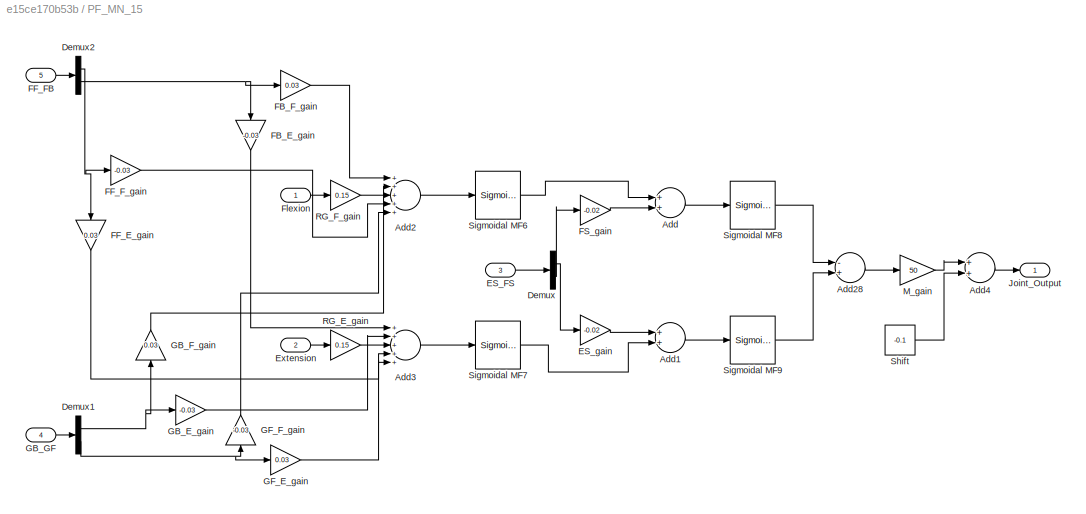
BLOCK [SubSystem] PF_MN_15
  Ports = [5, 1]
  RequestExecContextInheritance = off
  Variant = off
BLOCK [Sum] PF_MN_15/Add
  InputSameDT = off
  OutDataTypeStr = Inherit: Inherit via internal rule
  Ports = [2, 1]
  SaturateOnIntegerOverflow = off
BLOCK [Sum] PF_MN_15/Add1
  InputSameDT = off
  OutDataTypeStr = Inherit: Inherit via internal rule
  Ports = [2, 1]
  SaturateOnIntegerOverflow = off
BLOCK [Sum] PF_MN_15/Add2
  InputSameDT = off
  Inputs = +++++
  OutDataTypeStr = Inherit: Inherit via internal rule
  Ports = [5, 1]
  SaturateOnIntegerOverflow = off
BLOCK [Sum] PF_MN_15/Add28
  InputSameDT = off
  Inputs = -+
  OutDataTypeStr = Inherit: Inherit via internal rule
  Ports = [2, 1]
  SaturateOnIntegerOverflow = off
BLOCK [Sum] PF_MN_15/Add3
  InputSameDT = off
  Inputs = +++++
  OutDataTypeStr = Inherit: Inherit via internal rule
  Ports = [5, 1]
  SaturateOnIntegerOverflow = off
BLOCK [Sum] PF_MN_15/Add4
  InputSameDT = off
  OutDataTypeStr = Inherit: Inherit via internal rule
  Ports = [2, 1]
  SaturateOnIntegerOverflow = off
BLOCK [Demux] PF_MN_15/Demux
  DisplayOption = bar
  Outputs = 2
  Ports = [1, 2]
BLOCK [Demux] PF_MN_15/Demux1
  DisplayOption = bar
  Outputs = 2
  Ports = [1, 2]
BLOCK [Demux] PF_MN_15/Demux2
  DisplayOption = bar
  Outputs = 2
  Ports = [1, 2]
BLOCK [Inport] PF_MN_15/ES_FS
  IconDisplay = Port number
  Port = 3
BLOCK [Gain] PF_MN_15/ES_gain
  Gain = -0.02
  OutDataTypeStr = Inherit: Inherit via internal rule
  ParamDataTypeStr = Inherit: Inherit via internal rule
  SaturateOnIntegerOverflow = off
BLOCK [Inport] PF_MN_15/Extension
  IconDisplay = Port number
  Port = 2
BLOCK [Gain] PF_MN_15/FB_E_gain
  Gain = -0.03
  OutDataTypeStr = Inherit: Inherit via internal rule
  ParamDataTypeStr = Inherit: Inherit via internal rule
  SaturateOnIntegerOverflow = off
BLOCK [Gain] PF_MN_15/FB_F_gain
  Gain = 0.03
  OutDataTypeStr = Inherit: Inherit via internal rule
  ParamDataTypeStr = Inherit: Inherit via internal rule
  SaturateOnIntegerOverflow = off
BLOCK [Gain] PF_MN_15/FF_E_gain
  Gain = 0.03
  OutDataTypeStr = Inherit: Inherit via internal rule
  ParamDataTypeStr = Inherit: Inherit via internal rule
  SaturateOnIntegerOverflow = off
BLOCK [Inport] PF_MN_15/FF_FB
  IconDisplay = Port number
  Port = 5
BLOCK [Gain] PF_MN_15/FF_F_gain
  Gain = -0.03
  OutDataTypeStr = Inherit: Inherit via internal rule
  ParamDataTypeStr = Inherit: Inherit via internal rule
  SaturateOnIntegerOverflow = off
BLOCK [Gain] PF_MN_15/FS_gain
  Gain = -0.02
  OutDataTypeStr = Inherit: Inherit via internal rule
  ParamDataTypeStr = Inherit: Inherit via internal rule
  SaturateOnIntegerOverflow = off
BLOCK [Inport] PF_MN_15/Flexion
  IconDisplay = Port number
BLOCK [Gain] PF_MN_15/GB_E_gain
  Gain = -0.03
  OutDataTypeStr = Inherit: Inherit via internal rule
  ParamDataTypeStr = Inherit: Inherit via internal rule
  SaturateOnIntegerOverflow = off
BLOCK [Gain] PF_MN_15/GB_F_gain
  Gain = 0.03
  OutDataTypeStr = Inherit: Inherit via internal rule
  ParamDataTypeStr = Inherit: Inherit via internal rule
  SaturateOnIntegerOverflow = off
BLOCK [Inport] PF_MN_15/GB_GF
  IconDisplay = Port number
  Port = 4
BLOCK [Gain] PF_MN_15/GF_E_gain
  Gain = 0.03
  OutDataTypeStr = Inherit: Inherit via internal rule
  ParamDataTypeStr = Inherit: Inherit via internal rule
  SaturateOnIntegerOverflow = off
BLOCK [Gain] PF_MN_15/GF_F_gain
  Gain = -0.03
  OutDataTypeStr = Inherit: Inherit via internal rule
  ParamDataTypeStr = Inherit: Inherit via internal rule
  SaturateOnIntegerOverflow = off
BLOCK [Outport] PF_MN_15/Joint_Output
  IconDisplay = Port number
BLOCK [Gain] PF_MN_15/M_gain
  Gain = 50
  OutDataTypeStr = Inherit: Inherit via internal rule
  ParamDataTypeStr = Inherit: Inherit via internal rule
  SaturateOnIntegerOverflow = off
BLOCK [Gain] PF_MN_15/RG_E_gain
  Gain = 0.15
  OutDataTypeStr = Inherit: Inherit via internal rule
  ParamDataTypeStr = Inherit: Inherit via internal rule
  SaturateOnIntegerOverflow = off
BLOCK [Gain] PF_MN_15/RG_F_gain
  Gain = 0.15
  OutDataTypeStr = Inherit: Inherit via internal rule
  ParamDataTypeStr = Inherit: Inherit via internal rule
  SaturateOnIntegerOverflow = off
BLOCK [Constant] PF_MN_15/Shift
  Value = -0.1
BLOCK [Reference] PF_MN_15/Sigmoidal MF6  REF=fuzblock/Membership   (lib defined in mdl_858b3b3e7478)
Functions/Sigmoidal MF
  Ports = [1, 1]
  SourceBlock = fuzblock/Membership \nFunctions/Sigmoidal MF
  SourceType = sigmf
BLOCK [Reference] PF_MN_15/Sigmoidal MF7  REF=fuzblock/Membership   (lib defined in mdl_858b3b3e7478)
Functions/Sigmoidal MF
  Ports = [1, 1]
  SourceBlock = fuzblock/Membership \nFunctions/Sigmoidal MF
  SourceType = sigmf
BLOCK [Reference] PF_MN_15/Sigmoidal MF8  REF=fuzblock/Membership   (lib defined in mdl_858b3b3e7478)
Functions/Sigmoidal MF
  Ports = [1, 1]
  SourceBlock = fuzblock/Membership \nFunctions/Sigmoidal MF
  SourceType = sigmf
BLOCK [Reference] PF_MN_15/Sigmoidal MF9  REF=fuzblock/Membership   (lib defined in mdl_858b3b3e7478)
Functions/Sigmoidal MF
  Ports = [1, 1]
  SourceBlock = fuzblock/Membership \nFunctions/Sigmoidal MF
  SourceType = sigmf
BLOCK [SubSystem] PF_MN_16
  Ports = [4, 1]
  RequestExecContextInheritance = off
  Variant = off
BLOCK [Sum] PF_MN_16/Add
  InputSameDT = off
  OutDataTypeStr = Inherit: Inherit via internal rule
  Ports = [2, 1]
  SaturateOnIntegerOverflow = off
BLOCK [Sum] PF_MN_16/Add1
  InputSameDT = off
  OutDataTypeStr = Inherit: Inherit via internal rule
  Ports = [2, 1]
  SaturateOnIntegerOverflow = off
BLOCK [Sum] PF_MN_16/Add2
  InputSameDT = off
  OutDataTypeStr = Inherit: Inherit via internal rule
  Ports = [2, 1]
  SaturateOnIntegerOverflow = off
BLOCK [Sum] PF_MN_16/Add28
  InputSameDT = off
  Inputs = -+
  OutDataTypeStr = Inherit: Inherit via internal rule
  Ports = [2, 1]
  SaturateOnIntegerOverflow = off
BLOCK [Sum] PF_MN_16/Add3
  InputSameDT = off
  Inputs = +++
  OutDataTypeStr = Inherit: Inherit via internal rule
  Ports = [3, 1]
  SaturateOnIntegerOverflow = off
BLOCK [Sum] PF_MN_16/Add4
  InputSameDT = off
  Inputs = +++
  OutDataTypeStr = Inherit: Inherit via internal rule
  Ports = [3, 1]
  SaturateOnIntegerOverflow = off
BLOCK [Demux] PF_MN_16/Demux
  DisplayOption = bar
  Outputs = 2
  Ports = [1, 2]
BLOCK [Demux] PF_MN_16/Demux2
  DisplayOption = bar
  Outputs = 2
  Ports = [1, 2]
BLOCK [Inport] PF_MN_16/ES_FS
  IconDisplay = Port number
  Port = 3
BLOCK [Gain] PF_MN_16/ES_gain
  Gain = -0.02
  OutDataTypeStr = Inherit: Inherit via internal rule
  ParamDataTypeStr = Inherit: Inherit via internal rule
  SaturateOnIntegerOverflow = off
BLOCK [Inport] PF_MN_16/Extension
  IconDisplay = Port number
  Port = 2
BLOCK [Gain] PF_MN_16/FB_E_gain
  Gain = -0.03
  OutDataTypeStr = Inherit: Inherit via internal rule
  ParamDataTypeStr = Inherit: Inherit via internal rule
  SaturateOnIntegerOverflow = off
BLOCK [Gain] PF_MN_16/FB_F_gain
  Gain = 0.03
  OutDataTypeStr = Inherit: Inherit via internal rule
  ParamDataTypeStr = Inherit: Inherit via internal rule
  SaturateOnIntegerOverflow = off
BLOCK [Gain] PF_MN_16/FF_E_gain
  Gain = 0.03
  OutDataTypeStr = Inherit: Inherit via internal rule
  ParamDataTypeStr = Inherit: Inherit via internal rule
  SaturateOnIntegerOverflow = off
BLOCK [Inport] PF_MN_16/FF_FB
  IconDisplay = Port number
  Port = 4
BLOCK [Gain] PF_MN_16/FF_F_gain
  Gain = -0.03
  OutDataTypeStr = Inherit: Inherit via internal rule
  ParamDataTypeStr = Inherit: Inherit via internal rule
  SaturateOnIntegerOverflow = off
BLOCK [Gain] PF_MN_16/FS_gain
  Gain = -0.02
  OutDataTypeStr = Inherit: Inherit via internal rule
  ParamDataTypeStr = Inherit: Inherit via internal rule
  SaturateOnIntegerOverflow = off
BLOCK [Inport] PF_MN_16/Flexion
  IconDisplay = Port number
BLOCK [Outport] PF_MN_16/Joint_Output
  IconDisplay = Port number
BLOCK [Gain] PF_MN_16/M_gain
  Gain = 50
  OutDataTypeStr = Inherit: Inherit via internal rule
  ParamDataTypeStr = Inherit: Inherit via internal rule
  SaturateOnIntegerOverflow = off
BLOCK [Gain] PF_MN_16/RG_E_gain
  Gain = 0.5
  OutDataTypeStr = Inherit: Inherit via internal rule
  ParamDataTypeStr = Inherit: Inherit via internal rule
  SaturateOnIntegerOverflow = off
BLOCK [Gain] PF_MN_16/RG_F_gain
  Gain = 0.5
  OutDataTypeStr = Inherit: Inherit via internal rule
  ParamDataTypeStr = Inherit: Inherit via internal rule
  SaturateOnIntegerOverflow = off
BLOCK [Constant] PF_MN_16/Shift
  Value = 0.076658
BLOCK [Reference] PF_MN_16/Sigmoidal MF6  REF=fuzblock/Membership   (lib defined in mdl_858b3b3e7478)
Functions/Sigmoidal MF
  Ports = [1, 1]
  SourceBlock = fuzblock/Membership \nFunctions/Sigmoidal MF
  SourceType = sigmf
BLOCK [Reference] PF_MN_16/Sigmoidal MF7  REF=fuzblock/Membership   (lib defined in mdl_858b3b3e7478)
Functions/Sigmoidal MF
  Ports = [1, 1]
  SourceBlock = fuzblock/Membership \nFunctions/Sigmoidal MF
  SourceType = sigmf
BLOCK [Reference] PF_MN_16/Sigmoidal MF8  REF=fuzblock/Membership   (lib defined in mdl_858b3b3e7478)
Functions/Sigmoidal MF
  Ports = [1, 1]
  SourceBlock = fuzblock/Membership \nFunctions/Sigmoidal MF
  SourceType = sigmf
BLOCK [Reference] PF_MN_16/Sigmoidal MF9  REF=fuzblock/Membership   (lib defined in mdl_858b3b3e7478)
Functions/Sigmoidal MF
  Ports = [1, 1]
  SourceBlock = fuzblock/Membership \nFunctions/Sigmoidal MF
  SourceType = sigmf
BLOCK [SubSystem] PF_MN_18
  Ports = [3, 1]
  RequestExecContextInheritance = off
  Variant = off
BLOCK [Sum] PF_MN_18/Add
  InputSameDT = off
  OutDataTypeStr = Inherit: Inherit via internal rule
  Ports = [2, 1]
  SaturateOnIntegerOverflow = off
BLOCK [Sum] PF_MN_18/Add1
  InputSameDT = off
  OutDataTypeStr = Inherit: Inherit via internal rule
  Ports = [2, 1]
  SaturateOnIntegerOverflow = off
BLOCK [Sum] PF_MN_18/Add2
  InputSameDT = off
  OutDataTypeStr = Inherit: Inherit via internal rule
  Ports = [2, 1]
  SaturateOnIntegerOverflow = off
BLOCK [Sum] PF_MN_18/Add28
  InputSameDT = off
  Inputs = -+
  OutDataTypeStr = Inherit: Inherit via internal rule
  Ports = [2, 1]
  SaturateOnIntegerOverflow = off
BLOCK [Demux] PF_MN_18/Demux
  DisplayOption = bar
  Outputs = 2
  Ports = [1, 2]
BLOCK [Inport] PF_MN_18/ES_FS
  IconDisplay = Port number
  Port = 3
BLOCK [Gain] PF_MN_18/ES_gain
  Gain = -0.02
  OutDataTypeStr = Inherit: Inherit via internal rule
  ParamDataTypeStr = Inherit: Inherit via internal rule
  SaturateOnIntegerOverflow = off
BLOCK [Inport] PF_MN_18/Extension
  IconDisplay = Port number
  Port = 2
BLOCK [Gain] PF_MN_18/FS_gain
  Gain = -0.02
  OutDataTypeStr = Inherit: Inherit via internal rule
  ParamDataTypeStr = Inherit: Inherit via internal rule
  SaturateOnIntegerOverflow = off
BLOCK [Inport] PF_MN_18/Flexion
  IconDisplay = Port number
BLOCK [Outport] PF_MN_18/Joint_Output
  IconDisplay = Port number
BLOCK [Gain] PF_MN_18/M_gain
  Gain = 10
  OutDataTypeStr = Inherit: Inherit via internal rule
  ParamDataTypeStr = Inherit: Inherit via internal rule
  SaturateOnIntegerOverflow = off
BLOCK [Gain] PF_MN_18/RG_E_gain
  OutDataTypeStr = Inherit: Inherit via internal rule
  ParamDataTypeStr = Inherit: Inherit via internal rule
  SaturateOnIntegerOverflow = off
BLOCK [Gain] PF_MN_18/RG_F_gain
  OutDataTypeStr = Inherit: Inherit via internal rule
  ParamDataTypeStr = Inherit: Inherit via internal rule
  SaturateOnIntegerOverflow = off
BLOCK [Constant] PF_MN_18/Shift
  Value = -1.3087
BLOCK [Reference] PF_MN_18/Sigmoidal MF6  REF=fuzblock/Membership   (lib defined in mdl_858b3b3e7478)
Functions/Sigmoidal MF
  Ports = [1, 1]
  SourceBlock = fuzblock/Membership \nFunctions/Sigmoidal MF
  SourceType = sigmf
BLOCK [Reference] PF_MN_18/Sigmoidal MF7  REF=fuzblock/Membership   (lib defined in mdl_858b3b3e7478)
Functions/Sigmoidal MF
  Ports = [1, 1]
  SourceBlock = fuzblock/Membership \nFunctions/Sigmoidal MF
  SourceType = sigmf
BLOCK [Reference] PF_MN_18/Sigmoidal MF8  REF=fuzblock/Membership   (lib defined in mdl_858b3b3e7478)
Functions/Sigmoidal MF
  Ports = [1, 1]
  SourceBlock = fuzblock/Membership \nFunctions/Sigmoidal MF
  SourceType = sigmf
BLOCK [Reference] PF_MN_18/Sigmoidal MF9  REF=fuzblock/Membership   (lib defined in mdl_858b3b3e7478)
Functions/Sigmoidal MF
  Ports = [1, 1]
  SourceBlock = fuzblock/Membership \nFunctions/Sigmoidal MF
  SourceType = sigmf
BLOCK [SubSystem] PF_MN_25
  Ports = [3, 1]
  RequestExecContextInheritance = off
  Variant = off
BLOCK [Sum] PF_MN_25/Add
  InputSameDT = off
  OutDataTypeStr = Inherit: Inherit via internal rule
  Ports = [2, 1]
  SaturateOnIntegerOverflow = off
BLOCK [Sum] PF_MN_25/Add1
  InputSameDT = off
  OutDataTypeStr = Inherit: Inherit via internal rule
  Ports = [2, 1]
  SaturateOnIntegerOverflow = off
BLOCK [Sum] PF_MN_25/Add2
  InputSameDT = off
  OutDataTypeStr = Inherit: Inherit via internal rule
  Ports = [2, 1]
  SaturateOnIntegerOverflow = off
BLOCK [Sum] PF_MN_25/Add28
  InputSameDT = off
  Inputs = -+
  OutDataTypeStr = Inherit: Inherit via internal rule
  Ports = [2, 1]
  SaturateOnIntegerOverflow = off
BLOCK [Demux] PF_MN_25/Demux
  DisplayOption = bar
  Outputs = 2
  Ports = [1, 2]
BLOCK [Inport] PF_MN_25/ES_FS
  IconDisplay = Port number
  Port = 3
BLOCK [Gain] PF_MN_25/ES_gain
  Gain = -0.02
  OutDataTypeStr = Inherit: Inherit via internal rule
  ParamDataTypeStr = Inherit: Inherit via internal rule
  SaturateOnIntegerOverflow = off
BLOCK [Inport] PF_MN_25/Extension
  IconDisplay = Port number
  Port = 2
BLOCK [Gain] PF_MN_25/FS_gain
  Gain = -0.02
  OutDataTypeStr = Inherit: Inherit via internal rule
  ParamDataTypeStr = Inherit: Inherit via internal rule
  SaturateOnIntegerOverflow = off
BLOCK [Inport] PF_MN_25/Flexion
  IconDisplay = Port number
BLOCK [Outport] PF_MN_25/Joint_Output
  IconDisplay = Port number
BLOCK [Gain] PF_MN_25/M_gain
  Gain = 10
  OutDataTypeStr = Inherit: Inherit via internal rule
  ParamDataTypeStr = Inherit: Inherit via internal rule
  SaturateOnIntegerOverflow = off
BLOCK [Gain] PF_MN_25/RG_E_gain
  OutDataTypeStr = Inherit: Inherit via internal rule
  ParamDataTypeStr = Inherit: Inherit via internal rule
  SaturateOnIntegerOverflow = off
BLOCK [Gain] PF_MN_25/RG_F_gain
  OutDataTypeStr = Inherit: Inherit via internal rule
  ParamDataTypeStr = Inherit: Inherit via internal rule
  SaturateOnIntegerOverflow = off
BLOCK [Constant] PF_MN_25/Shift
  Value = 1.3088
BLOCK [Reference] PF_MN_25/Sigmoidal MF6  REF=fuzblock/Membership   (lib defined in mdl_858b3b3e7478)
Functions/Sigmoidal MF
  Ports = [1, 1]
  SourceBlock = fuzblock/Membership \nFunctions/Sigmoidal MF
  SourceType = sigmf
BLOCK [Reference] PF_MN_25/Sigmoidal MF7  REF=fuzblock/Membership   (lib defined in mdl_858b3b3e7478)
Functions/Sigmoidal MF
  Ports = [1, 1]
  SourceBlock = fuzblock/Membership \nFunctions/Sigmoidal MF
  SourceType = sigmf
BLOCK [Reference] PF_MN_25/Sigmoidal MF8  REF=fuzblock/Membership   (lib defined in mdl_858b3b3e7478)
Functions/Sigmoidal MF
  Ports = [1, 1]
  SourceBlock = fuzblock/Membership \nFunctions/Sigmoidal MF
  SourceType = sigmf
BLOCK [Reference] PF_MN_25/Sigmoidal MF9  REF=fuzblock/Membership   (lib defined in mdl_858b3b3e7478)
Functions/Sigmoidal MF
  Ports = [1, 1]
  SourceBlock = fuzblock/Membership \nFunctions/Sigmoidal MF
  SourceType = sigmf
BLOCK [SubSystem] PF_MN_6
  Ports = [3, 1]
  RequestExecContextInheritance = off
  Variant = off
BLOCK [Sum] PF_MN_6/Add
  InputSameDT = off
  OutDataTypeStr = Inherit: Inherit via internal rule
  Ports = [2, 1]
  SaturateOnIntegerOverflow = off
BLOCK [Sum] PF_MN_6/Add1
  InputSameDT = off
  OutDataTypeStr = Inherit: Inherit via internal rule
  Ports = [2, 1]
  SaturateOnIntegerOverflow = off
BLOCK [Sum] PF_MN_6/Add2
  InputSameDT = off
  OutDataTypeStr = Inherit: Inherit via internal rule
  Ports = [2, 1]
  SaturateOnIntegerOverflow = off
BLOCK [Sum] PF_MN_6/Add28
  InputSameDT = off
  Inputs = -+
  OutDataTypeStr = Inherit: Inherit via internal rule
  Ports = [2, 1]
  SaturateOnIntegerOverflow = off
BLOCK [Demux] PF_MN_6/Demux
  DisplayOption = bar
  Outputs = 2
  Ports = [1, 2]
BLOCK [Inport] PF_MN_6/ES_FS
  IconDisplay = Port number
  Port = 3
BLOCK [Gain] PF_MN_6/ES_gain
  Gain = -0.01
  OutDataTypeStr = Inherit: Inherit via internal rule
  ParamDataTypeStr = Inherit: Inherit via internal rule
  SaturateOnIntegerOverflow = off
BLOCK [Inport] PF_MN_6/Extension
  IconDisplay = Port number
  Port = 2
BLOCK [Gain] PF_MN_6/FS_gain
  Gain = -0.01
  OutDataTypeStr = Inherit: Inherit via internal rule
  ParamDataTypeStr = Inherit: Inherit via internal rule
  SaturateOnIntegerOverflow = off
BLOCK [Inport] PF_MN_6/Flexion
  IconDisplay = Port number
BLOCK [Outport] PF_MN_6/Joint_Output
  IconDisplay = Port number
BLOCK [Gain] PF_MN_6/M_gain
  Gain = 50
  OutDataTypeStr = Inherit: Inherit via internal rule
  ParamDataTypeStr = Inherit: Inherit via internal rule
  SaturateOnIntegerOverflow = off
BLOCK [Gain] PF_MN_6/RG_E_gain
  OutDataTypeStr = Inherit: Inherit via internal rule
  ParamDataTypeStr = Inherit: Inherit via internal rule
  SaturateOnIntegerOverflow = off
BLOCK [Gain] PF_MN_6/RG_F_gain
  OutDataTypeStr = Inherit: Inherit via internal rule
  ParamDataTypeStr = Inherit: Inherit via internal rule
  SaturateOnIntegerOverflow = off
BLOCK [Constant] PF_MN_6/Shift
  Value = 0.075814
BLOCK [Reference] PF_MN_6/Sigmoidal MF6  REF=fuzblock/Membership   (lib defined in mdl_858b3b3e7478)
Functions/Sigmoidal MF
  Ports = [1, 1]
  SourceBlock = fuzblock/Membership \nFunctions/Sigmoidal MF
  SourceType = sigmf
BLOCK [Reference] PF_MN_6/Sigmoidal MF7  REF=fuzblock/Membership   (lib defined in mdl_858b3b3e7478)
Functions/Sigmoidal MF
  Ports = [1, 1]
  SourceBlock = fuzblock/Membership \nFunctions/Sigmoidal MF
  SourceType = sigmf
BLOCK [Reference] PF_MN_6/Sigmoidal MF8  REF=fuzblock/Membership   (lib defined in mdl_858b3b3e7478)
Functions/Sigmoidal MF
  Ports = [1, 1]
  SourceBlock = fuzblock/Membership \nFunctions/Sigmoidal MF
  SourceType = sigmf
BLOCK [Reference] PF_MN_6/Sigmoidal MF9  REF=fuzblock/Membership   (lib defined in mdl_858b3b3e7478)
Functions/Sigmoidal MF
  Ports = [1, 1]
  SourceBlock = fuzblock/Membership \nFunctions/Sigmoidal MF
  SourceType = sigmf
BLOCK [SubSystem] PF_MN_7
  Ports = [4, 1]
  RequestExecContextInheritance = off
  Variant = off
BLOCK [Sum] PF_MN_7/Add
  InputSameDT = off
  OutDataTypeStr = Inherit: Inherit via internal rule
  Ports = [2, 1]
  SaturateOnIntegerOverflow = off
BLOCK [Sum] PF_MN_7/Add1
  InputSameDT = off
  OutDataTypeStr = Inherit: Inherit via internal rule
  Ports = [2, 1]
  SaturateOnIntegerOverflow = off
BLOCK [Sum] PF_MN_7/Add2
  InputSameDT = off
  OutDataTypeStr = Inherit: Inherit via internal rule
  Ports = [2, 1]
  SaturateOnIntegerOverflow = off
BLOCK [Sum] PF_MN_7/Add28
  InputSameDT = off
  Inputs = -+
  OutDataTypeStr = Inherit: Inherit via internal rule
  Ports = [2, 1]
  SaturateOnIntegerOverflow = off
BLOCK [Sum] PF_MN_7/Add3
  InputSameDT = off
  Inputs = +++
  OutDataTypeStr = Inherit: Inherit via internal rule
  Ports = [3, 1]
  SaturateOnIntegerOverflow = off
BLOCK [Sum] PF_MN_7/Add4
  InputSameDT = off
  Inputs = +++
  OutDataTypeStr = Inherit: Inherit via internal rule
  Ports = [3, 1]
  SaturateOnIntegerOverflow = off
BLOCK [Constant] PF_MN_7/Constant
  Value = [0 0]
BLOCK [Demux] PF_MN_7/Demux
  DisplayOption = bar
  Outputs = 2
  Ports = [1, 2]
BLOCK [Demux] PF_MN_7/Demux1
  DisplayOption = bar
  Outputs = 2
  Ports = [1, 2]
BLOCK [Demux] PF_MN_7/Demux2
  DisplayOption = bar
  Outputs = 2
  Ports = [1, 2]
BLOCK [Inport] PF_MN_7/ES_FS
  IconDisplay = Port number
  Port = 3
BLOCK [Gain] PF_MN_7/ES_gain
  Gain = -0.02
  OutDataTypeStr = Inherit: Inherit via internal rule
  ParamDataTypeStr = Inherit: Inherit via internal rule
  SaturateOnIntegerOverflow = off
BLOCK [Inport] PF_MN_7/Extension
  IconDisplay = Port number
  Port = 2
BLOCK [Gain] PF_MN_7/FB_E_gain
  Gain = 0.07
  OutDataTypeStr = Inherit: Inherit via internal rule
  ParamDataTypeStr = Inherit: Inherit via internal rule
  SaturateOnIntegerOverflow = off
BLOCK [Gain] PF_MN_7/FB_F_gain
  Gain = -0.07
  OutDataTypeStr = Inherit: Inherit via internal rule
  ParamDataTypeStr = Inherit: Inherit via internal rule
  SaturateOnIntegerOverflow = off
BLOCK [Gain] PF_MN_7/FF_E_gain
  Gain = -0.07
  OutDataTypeStr = Inherit: Inherit via internal rule
  ParamDataTypeStr = Inherit: Inherit via internal rule
  SaturateOnIntegerOverflow = off
BLOCK [Inport] PF_MN_7/FF_FB
  IconDisplay = Port number
  Port = 4
BLOCK [Gain] PF_MN_7/FF_F_gain
  Gain = 0.07
  OutDataTypeStr = Inherit: Inherit via internal rule
  ParamDataTypeStr = Inherit: Inherit via internal rule
  SaturateOnIntegerOverflow = off
BLOCK [Gain] PF_MN_7/FS_gain
  Gain = -0.02
  OutDataTypeStr = Inherit: Inherit via internal rule
  ParamDataTypeStr = Inherit: Inherit via internal rule
  SaturateOnIntegerOverflow = off
BLOCK [Inport] PF_MN_7/Flexion
  IconDisplay = Port number
BLOCK [If] PF_MN_7/If
  IfExpression = u1 > 0.8 | u2 > 0.8
  NumInputs = 2
  Ports = [2, 2]
BLOCK [SubSystem] PF_MN_7/If Action Subsystem
  Ports = [1, 1, 0, 0, 0, 0, 0, 1]
  RequestExecContextInheritance = off
  TreatAsAtomicUnit = on
  Variant = off
BLOCK [ActionPort] PF_MN_7/If Action Subsystem/Action Port
  ActionType = else
BLOCK [Inport] PF_MN_7/If Action Subsystem/In1
  IconDisplay = Port number
BLOCK [Outport] PF_MN_7/If Action Subsystem/Out1
  IconDisplay = Port number
BLOCK [SubSystem] PF_MN_7/If Action Subsystem1
  Ports = [1, 1, 0, 0, 0, 0, 0, 1]
  RequestExecContextInheritance = off
  TreatAsAtomicUnit = on
  Variant = off
BLOCK [ActionPort] PF_MN_7/If Action Subsystem1/Action Port
  ActionType = then
BLOCK [Inport] PF_MN_7/If Action Subsystem1/In1
  IconDisplay = Port number
BLOCK [Outport] PF_MN_7/If Action Subsystem1/Out1
  IconDisplay = Port number
BLOCK [Outport] PF_MN_7/Joint_Output
  IconDisplay = Port number
BLOCK [Gain] PF_MN_7/M_gain
  Gain = 50
  OutDataTypeStr = Inherit: Inherit via internal rule
  ParamDataTypeStr = Inherit: Inherit via internal rule
  SaturateOnIntegerOverflow = off
BLOCK [Merge] PF_MN_7/Merge
  Ports = [2, 1]
BLOCK [Gain] PF_MN_7/RG_E_gain
  Gain = 0.75
  OutDataTypeStr = Inherit: Inherit via internal rule
  ParamDataTypeStr = Inherit: Inherit via internal rule
  SaturateOnIntegerOverflow = off
BLOCK [Gain] PF_MN_7/RG_F_gain
  Gain = 0.75
  OutDataTypeStr = Inherit: Inherit via internal rule
  ParamDataTypeStr = Inherit: Inherit via internal rule
  SaturateOnIntegerOverflow = off
BLOCK [Constant] PF_MN_7/Shift
  Value = -0.2
BLOCK [Reference] PF_MN_7/Sigmoidal MF6  REF=fuzblock/Membership   (lib defined in mdl_858b3b3e7478)
Functions/Sigmoidal MF
  Ports = [1, 1]
  SourceBlock = fuzblock/Membership \nFunctions/Sigmoidal MF
  SourceType = sigmf
BLOCK [Reference] PF_MN_7/Sigmoidal MF7  REF=fuzblock/Membership   (lib defined in mdl_858b3b3e7478)
Functions/Sigmoidal MF
  Ports = [1, 1]
  SourceBlock = fuzblock/Membership \nFunctions/Sigmoidal MF
  SourceType = sigmf
BLOCK [Reference] PF_MN_7/Sigmoidal MF8  REF=fuzblock/Membership   (lib defined in mdl_858b3b3e7478)
Functions/Sigmoidal MF
  Ports = [1, 1]
  SourceBlock = fuzblock/Membership \nFunctions/Sigmoidal MF
  SourceType = sigmf
BLOCK [Reference] PF_MN_7/Sigmoidal MF9  REF=fuzblock/Membership   (lib defined in mdl_858b3b3e7478)
Functions/Sigmoidal MF
  Ports = [1, 1]
  SourceBlock = fuzblock/Membership \nFunctions/Sigmoidal MF
  SourceType = sigmf
BLOCK [SubSystem] PF_MN_8
  Ports = [4, 1]
  RequestExecContextInheritance = off
  Variant = off
BLOCK [Inport] PF_MN_8/AS
  IconDisplay = Port number
  Port = 4
BLOCK [Gain] PF_MN_8/AS_E_gain
  Gain = 0.2
  OutDataTypeStr = Inherit: Inherit via internal rule
  ParamDataTypeStr = Inherit: Inherit via internal rule
  SaturateOnIntegerOverflow = off
BLOCK [Gain] PF_MN_8/AS_F_gain
  Gain = -0.2
  OutDataTypeStr = Inherit: Inherit via internal rule
  ParamDataTypeStr = Inherit: Inherit via internal rule
  SaturateOnIntegerOverflow = off
BLOCK [Sum] PF_MN_8/Add
  InputSameDT = off
  Inputs = +++
  OutDataTypeStr = Inherit: Inherit via internal rule
  Ports = [3, 1]
  SaturateOnIntegerOverflow = off
BLOCK [Sum] PF_MN_8/Add1
  InputSameDT = off
  Inputs = +++
  OutDataTypeStr = Inherit: Inherit via internal rule
  Ports = [3, 1]
  SaturateOnIntegerOverflow = off
BLOCK [Sum] PF_MN_8/Add2
  InputSameDT = off
  OutDataTypeStr = Inherit: Inherit via internal rule
  Ports = [2, 1]
  SaturateOnIntegerOverflow = off
BLOCK [Sum] PF_MN_8/Add28
  InputSameDT = off
  Inputs = +-
  OutDataTypeStr = Inherit: Inherit via internal rule
  Ports = [2, 1]
  SaturateOnIntegerOverflow = off
BLOCK [Demux] PF_MN_8/Demux
  DisplayOption = bar
  Outputs = 2
  Ports = [1, 2]
BLOCK [Inport] PF_MN_8/ES_FS
  IconDisplay = Port number
  Port = 3
BLOCK [Gain] PF_MN_8/ES_gain
  Gain = -0.02
  OutDataTypeStr = Inherit: Inherit via internal rule
  ParamDataTypeStr = Inherit: Inherit via internal rule
  SaturateOnIntegerOverflow = off
BLOCK [Inport] PF_MN_8/Extension
  IconDisplay = Port number
  Port = 2
BLOCK [Gain] PF_MN_8/FS_gain
  Gain = -0.02
  OutDataTypeStr = Inherit: Inherit via internal rule
  ParamDataTypeStr = Inherit: Inherit via internal rule
  SaturateOnIntegerOverflow = off
BLOCK [Inport] PF_MN_8/Flexion
  IconDisplay = Port number
BLOCK [Outport] PF_MN_8/Joint_Output
  IconDisplay = Port number
BLOCK [Gain] PF_MN_8/M_gain
  Gain = 50
  OutDataTypeStr = Inherit: Inherit via internal rule
  ParamDataTypeStr = Inherit: Inherit via internal rule
  SaturateOnIntegerOverflow = off
BLOCK [Gain] PF_MN_8/RG_E_gain
  Gain = 0.75
  OutDataTypeStr = Inherit: Inherit via internal rule
  ParamDataTypeStr = Inherit: Inherit via internal rule
  SaturateOnIntegerOverflow = off
BLOCK [Gain] PF_MN_8/RG_F_gain
  Gain = 0.75
  OutDataTypeStr = Inherit: Inherit via internal rule
  ParamDataTypeStr = Inherit: Inherit via internal rule
  SaturateOnIntegerOverflow = off
BLOCK [Scope] PF_MN_8/Scope
  Ports = [1]
  ScopeSpecificationString = Simulink.scopes.TimeScopeBlockCfg('CurrentConfiguration', extmgr.ConfigurationSet(extmgr.Configuration('Core','General UI',true),extmgr.Configuration('Core','Source UI',true),extmgr.Configuration('Sources','WiredSimulink',true),extmgr.Configuration('Visuals','Time Domain',true,'SerializedDisplays',{struct('MinYLimReal','0.4','MaxYLimReal','0.6','YLabelReal','','MinYLimMag','0.4','MaxYLimMag','0.6'...<+1328ch>
BLOCK [Constant] PF_MN_8/Shift
  Value = 0.45
BLOCK [Reference] PF_MN_8/Sigmoidal MF6  REF=fuzblock/Membership   (lib defined in mdl_858b3b3e7478)
Functions/Sigmoidal MF
  Ports = [1, 1]
  SourceBlock = fuzblock/Membership \nFunctions/Sigmoidal MF
  SourceType = sigmf
BLOCK [Reference] PF_MN_8/Sigmoidal MF7  REF=fuzblock/Membership   (lib defined in mdl_858b3b3e7478)
Functions/Sigmoidal MF
  Ports = [1, 1]
  SourceBlock = fuzblock/Membership \nFunctions/Sigmoidal MF
  SourceType = sigmf
BLOCK [Reference] PF_MN_8/Sigmoidal MF8  REF=fuzblock/Membership   (lib defined in mdl_858b3b3e7478)
Functions/Sigmoidal MF
  Ports = [1, 1]
  SourceBlock = fuzblock/Membership \nFunctions/Sigmoidal MF
  SourceType = sigmf
BLOCK [Reference] PF_MN_8/Sigmoidal MF9  REF=fuzblock/Membership   (lib defined in mdl_858b3b3e7478)
Functions/Sigmoidal MF
  Ports = [1, 1]
  SourceBlock = fuzblock/Membership \nFunctions/Sigmoidal MF
  SourceType = sigmf
BLOCK [SubSystem] PF_MN_9
  Ports = [5, 1]
  RequestExecContextInheritance = off
  Variant = off
BLOCK [Sum] PF_MN_9/Add
  InputSameDT = off
  OutDataTypeStr = Inherit: Inherit via internal rule
  Ports = [2, 1]
  SaturateOnIntegerOverflow = off
BLOCK [Sum] PF_MN_9/Add1
  InputSameDT = off
  OutDataTypeStr = Inherit: Inherit via internal rule
  Ports = [2, 1]
  SaturateOnIntegerOverflow = off
BLOCK [Sum] PF_MN_9/Add2
  InputSameDT = off
  Inputs = +++++
  OutDataTypeStr = Inherit: Inherit via internal rule
  Ports = [5, 1]
  SaturateOnIntegerOverflow = off
BLOCK [Sum] PF_MN_9/Add28
  InputSameDT = off
  Inputs = -+
  OutDataTypeStr = Inherit: Inherit via internal rule
  Ports = [2, 1]
  SaturateOnIntegerOverflow = off
BLOCK [Sum] PF_MN_9/Add3
  InputSameDT = off
  Inputs = +++++
  OutDataTypeStr = Inherit: Inherit via internal rule
  Ports = [5, 1]
  SaturateOnIntegerOverflow = off
BLOCK [Sum] PF_MN_9/Add4
  InputSameDT = off
  OutDataTypeStr = Inherit: Inherit via internal rule
  Ports = [2, 1]
  SaturateOnIntegerOverflow = off
BLOCK [Demux] PF_MN_9/Demux
  DisplayOption = bar
  Outputs = 2
  Ports = [1, 2]
BLOCK [Demux] PF_MN_9/Demux1
  DisplayOption = bar
  Outputs = 2
  Ports = [1, 2]
BLOCK [Demux] PF_MN_9/Demux2
  DisplayOption = bar
  Outputs = 2
  Ports = [1, 2]
BLOCK [Inport] PF_MN_9/ES_FS
  IconDisplay = Port number
  Port = 3
BLOCK [Gain] PF_MN_9/ES_gain
  Gain = -0.02
  OutDataTypeStr = Inherit: Inherit via internal rule
  ParamDataTypeStr = Inherit: Inherit via internal rule
  SaturateOnIntegerOverflow = off
BLOCK [Inport] PF_MN_9/Extension
  IconDisplay = Port number
  Port = 2
BLOCK [Gain] PF_MN_9/FB_E_gain
  Gain = -0.03
  OutDataTypeStr = Inherit: Inherit via internal rule
  ParamDataTypeStr = Inherit: Inherit via internal rule
  SaturateOnIntegerOverflow = off
BLOCK [Gain] PF_MN_9/FB_F_gain
  Gain = 0.03
  OutDataTypeStr = Inherit: Inherit via internal rule
  ParamDataTypeStr = Inherit: Inherit via internal rule
  SaturateOnIntegerOverflow = off
BLOCK [Gain] PF_MN_9/FF_E_gain
  Gain = 0.03
  OutDataTypeStr = Inherit: Inherit via internal rule
  ParamDataTypeStr = Inherit: Inherit via internal rule
  SaturateOnIntegerOverflow = off
BLOCK [Inport] PF_MN_9/FF_FB
  IconDisplay = Port number
  Port = 5
BLOCK [Gain] PF_MN_9/FF_F_gain
  Gain = -0.03
  OutDataTypeStr = Inherit: Inherit via internal rule
  ParamDataTypeStr = Inherit: Inherit via internal rule
  SaturateOnIntegerOverflow = off
BLOCK [Gain] PF_MN_9/FS_gain
  Gain = -0.02
  OutDataTypeStr = Inherit: Inherit via internal rule
  ParamDataTypeStr = Inherit: Inherit via internal rule
  SaturateOnIntegerOverflow = off
BLOCK [Inport] PF_MN_9/Flexion
  IconDisplay = Port number
BLOCK [Gain] PF_MN_9/GB_E_gain
  Gain = -0.03
  OutDataTypeStr = Inherit: Inherit via internal rule
  ParamDataTypeStr = Inherit: Inherit via internal rule
  SaturateOnIntegerOverflow = off
BLOCK [Gain] PF_MN_9/GB_F_gain
  Gain = 0.03
  OutDataTypeStr = Inherit: Inherit via internal rule
  ParamDataTypeStr = Inherit: Inherit via internal rule
  SaturateOnIntegerOverflow = off
BLOCK [Inport] PF_MN_9/GB_GF
  IconDisplay = Port number
  Port = 4
BLOCK [Gain] PF_MN_9/GF_E_gain
  Gain = 0.03
  OutDataTypeStr = Inherit: Inherit via internal rule
  ParamDataTypeStr = Inherit: Inherit via internal rule
  SaturateOnIntegerOverflow = off
BLOCK [Gain] PF_MN_9/GF_F_gain
  Gain = -0.03
  OutDataTypeStr = Inherit: Inherit via internal rule
  ParamDataTypeStr = Inherit: Inherit via internal rule
  SaturateOnIntegerOverflow = off
BLOCK [Outport] PF_MN_9/Joint_Output
  IconDisplay = Port number
BLOCK [Gain] PF_MN_9/M_gain
  Gain = 50
  OutDataTypeStr = Inherit: Inherit via internal rule
  ParamDataTypeStr = Inherit: Inherit via internal rule
  SaturateOnIntegerOverflow = off
BLOCK [Gain] PF_MN_9/RG_E_gain
  Gain = 0.15
  OutDataTypeStr = Inherit: Inherit via internal rule
  ParamDataTypeStr = Inherit: Inherit via internal rule
  SaturateOnIntegerOverflow = off
BLOCK [Gain] PF_MN_9/RG_F_gain
  Gain = 0.15
  OutDataTypeStr = Inherit: Inherit via internal rule
  ParamDataTypeStr = Inherit: Inherit via internal rule
  SaturateOnIntegerOverflow = off
BLOCK [Constant] PF_MN_9/Shift
  Value = -0.1
BLOCK [Reference] PF_MN_9/Sigmoidal MF6  REF=fuzblock/Membership   (lib defined in mdl_858b3b3e7478)
Functions/Sigmoidal MF
  Ports = [1, 1]
  SourceBlock = fuzblock/Membership \nFunctions/Sigmoidal MF
  SourceType = sigmf
BLOCK [Reference] PF_MN_9/Sigmoidal MF7  REF=fuzblock/Membership   (lib defined in mdl_858b3b3e7478)
Functions/Sigmoidal MF
  Ports = [1, 1]
  SourceBlock = fuzblock/Membership \nFunctions/Sigmoidal MF
  SourceType = sigmf
BLOCK [Reference] PF_MN_9/Sigmoidal MF8  REF=fuzblock/Membership   (lib defined in mdl_858b3b3e7478)
Functions/Sigmoidal MF
  Ports = [1, 1]
  SourceBlock = fuzblock/Membership \nFunctions/Sigmoidal MF
  SourceType = sigmf
BLOCK [Reference] PF_MN_9/Sigmoidal MF9  REF=fuzblock/Membership   (lib defined in mdl_858b3b3e7478)
Functions/Sigmoidal MF
  Ports = [1, 1]
  SourceBlock = fuzblock/Membership \nFunctions/Sigmoidal MF
  SourceType = sigmf
BLOCK [Gain] PauseAfterStep
  Gain = 0
  OutDataTypeStr = Inherit: Inherit via internal rule
  ParamDataTypeStr = Inherit: Inherit via internal rule
  SaturateOnIntegerOverflow = off
BLOCK [DiscretePulseGenerator] Pulse Generator
  PhaseDelay = 1
  Ports = [0, 1]
  SampleTime = -1
BLOCK [Reference] Real-Time Synchronization  REF=sldrtlib/Real-Time
Synchronization
  Ports = []
  SourceBlock = sldrtlib/Real-Time\nSynchronization
  SourceType = Simulink Desktop Real-Time Synchronization
BLOCK [S-Function] S-Function
  EnableBusSupport = off
  FunctionName = ROS_sub
  Ports = [0, 2]
  SFunctionDeploymentMode = off
BLOCK [SubSystem] SendJointCommands
  Ports = [2]
  RequestExecContextInheritance = off
  Variant = off
BLOCK [Reference] SendJointCommands/Blank Message  REF=robotlib/Blank Message
  Ports = [0, 1]
  SourceBlock = robotlib/Blank Message
  SourceLibraryInfo = This block requires Robotics System Toolbox
  SourceType = ROS Blank Message
BLOCK [BusAssignment] SendJointCommands/Bus Assignment
  AssignedSignals = SendJointCommand,Position,SetThisJoint
  Ports = [4, 1]
BLOCK [Constant] SendJointCommands/Constant
  OutDataTypeStr = boolean
BLOCK [Inport] SendJointCommands/Joint_Value
  IconDisplay = Port number
  Port = 2
BLOCK [Reference] SendJointCommands/Publish  REF=robotlib/Publish
  Ports = [1]
  SourceBlock = robotlib/Publish
  SourceLibraryInfo = This block requires Robotics System Toolbox
  SourceType = ROS Publish
BLOCK [Inport] SendJointCommands/Send_Joint_Value?
  IconDisplay = Port number
BLOCK [SubSystem] Subsystem4
  Ports = [1, 1, 1]
  RequestExecContextInheritance = off
  Variant = off
BLOCK [EnablePort] Subsystem4/Enable
  Ports = []
BLOCK [Inport] Subsystem4/MsgIn
  IconDisplay = Port number
BLOCK [Outport] Subsystem4/MsgOut
  IconDisplay = Port number
BLOCK [Reference] Vector Scope  REF=dspsnks4/Vector
Scope
  Ports = [1]
  SourceBlock = dspsnks4/Vector\nScope
  SourceType = Vector Scope
BLOCK [Reference] Vector Scope1  REF=dspsnks4/Vector
Scope
  Ports = [1]
  SourceBlock = dspsnks4/Vector\nScope
  SourceType = Vector Scope
BLOCK [Reference] Vector Scope2  REF=dspsnks4/Vector
Scope
  Ports = [1]
  SourceBlock = dspsnks4/Vector\nScope
  SourceType = Vector Scope
BLOCK [SubSystem] cell_10_1
  Ports = [1, 1]
  RequestExecContextInheritance = off
  Variant = off
BLOCK [Sum] cell_10_1/Add
  InputSameDT = off
  Inputs = ++-
  OutDataTypeStr = Inherit: Inherit via internal rule
  Ports = [3, 1]
  SaturateOnIntegerOverflow = off
BLOCK [Sum] cell_10_1/Add1
  InputSameDT = off
  Inputs = -+
  OutDataTypeStr = Inherit: Inherit via internal rule
  Ports = [2, 1]
  SaturateOnIntegerOverflow = off
BLOCK [Sum] cell_10_1/Add2
  InputSameDT = off
  Inputs = -+
  OutDataTypeStr = Inherit: Inherit via internal rule
  Ports = [2, 1]
  SaturateOnIntegerOverflow = off
BLOCK [DiscreteIntegrator] cell_10_1/DTI_1
  ICPrevOutput = DiscIntNeverNeededParam
  ICPrevScaledInput = DiscIntNeverNeededParam
  InitialCondition = -0.059389
  InitialConditionSetting = State (most efficient)
  Ports = [1, 1]
  SampleTime = -1
BLOCK [DiscreteIntegrator] cell_10_1/DTI_2
  ICPrevOutput = DiscIntNeverNeededParam
  ICPrevScaledInput = DiscIntNeverNeededParam
  InitialCondition = -0.031702
  InitialConditionSetting = State (most efficient)
  Ports = [1, 1]
  SampleTime = -1
BLOCK [Gain] cell_10_1/Gain
  Gain = -1/t_m
  OutDataTypeStr = Inherit: Inherit via internal rule
  ParamDataTypeStr = Inherit: Inherit via internal rule
  SaturateOnIntegerOverflow = off
BLOCK [Gain] cell_10_1/Gain1
  Gain = 1/t_s
  OutDataTypeStr = Inherit: Inherit via internal rule
  ParamDataTypeStr = Inherit: Inherit via internal rule
  SaturateOnIntegerOverflow = off
BLOCK [Gain] cell_10_1/Gain2
  Gain = sigma_s
  OutDataTypeStr = Inherit: Inherit via internal rule
  ParamDataTypeStr = Inherit: Inherit via internal rule
  SaturateOnIntegerOverflow = off
BLOCK [Gain] cell_10_1/Gain3
  Gain = A_f
  OutDataTypeStr = Inherit: Inherit via internal rule
  ParamDataTypeStr = Inherit: Inherit via internal rule
  SaturateOnIntegerOverflow = off
BLOCK [Gain] cell_10_1/Gain4
  Gain = sigma_f/A_f
  OutDataTypeStr = Inherit: Inherit via internal rule
  ParamDataTypeStr = Inherit: Inherit via internal rule
  SaturateOnIntegerOverflow = off
BLOCK [Inport] cell_10_1/In1
  IconDisplay = Port number
BLOCK [Outport] cell_10_1/Out1
  IconDisplay = Port number
BLOCK [Trigonometry] cell_10_1/Trigonometric Function
  Operator = tanh
  Ports = [1, 1]
BLOCK [SubSystem] cell_10_2
  Ports = [1, 1]
  RequestExecContextInheritance = off
  Variant = off
BLOCK [Sum] cell_10_2/Add
  InputSameDT = off
  Inputs = ++-
  OutDataTypeStr = Inherit: Inherit via internal rule
  Ports = [3, 1]
  SaturateOnIntegerOverflow = off
BLOCK [Sum] cell_10_2/Add1
  InputSameDT = off
  Inputs = -+
  OutDataTypeStr = Inherit: Inherit via internal rule
  Ports = [2, 1]
  SaturateOnIntegerOverflow = off
BLOCK [Sum] cell_10_2/Add2
  InputSameDT = off
  Inputs = -+
  OutDataTypeStr = Inherit: Inherit via internal rule
  Ports = [2, 1]
  SaturateOnIntegerOverflow = off
BLOCK [DiscreteIntegrator] cell_10_2/DTI_1
  ICPrevOutput = DiscIntNeverNeededParam
  ICPrevScaledInput = DiscIntNeverNeededParam
  InitialCondition = 0.059389
  InitialConditionSetting = State (most efficient)
  Ports = [1, 1]
  SampleTime = -1
BLOCK [DiscreteIntegrator] cell_10_2/DTI_2
  ICPrevOutput = DiscIntNeverNeededParam
  ICPrevScaledInput = DiscIntNeverNeededParam
  InitialCondition = 0.031702
  InitialConditionSetting = State (most efficient)
  Ports = [1, 1]
  SampleTime = -1
BLOCK [Gain] cell_10_2/Gain
  Gain = -1/t_m
  OutDataTypeStr = Inherit: Inherit via internal rule
  ParamDataTypeStr = Inherit: Inherit via internal rule
  SaturateOnIntegerOverflow = off
BLOCK [Gain] cell_10_2/Gain1
  Gain = 1/t_s
  OutDataTypeStr = Inherit: Inherit via internal rule
  ParamDataTypeStr = Inherit: Inherit via internal rule
  SaturateOnIntegerOverflow = off
BLOCK [Gain] cell_10_2/Gain2
  Gain = sigma_s
  OutDataTypeStr = Inherit: Inherit via internal rule
  ParamDataTypeStr = Inherit: Inherit via internal rule
  SaturateOnIntegerOverflow = off
BLOCK [Gain] cell_10_2/Gain3
  Gain = A_f
  OutDataTypeStr = Inherit: Inherit via internal rule
  ParamDataTypeStr = Inherit: Inherit via internal rule
  SaturateOnIntegerOverflow = off
BLOCK [Gain] cell_10_2/Gain4
  Gain = sigma_f/A_f
  OutDataTypeStr = Inherit: Inherit via internal rule
  ParamDataTypeStr = Inherit: Inherit via internal rule
  SaturateOnIntegerOverflow = off
BLOCK [Inport] cell_10_2/In1
  IconDisplay = Port number
BLOCK [Outport] cell_10_2/Out1
  IconDisplay = Port number
BLOCK [Trigonometry] cell_10_2/Trigonometric Function
  Operator = tanh
  Ports = [1, 1]
BLOCK [SubSystem] cell_12_1
  Ports = [1, 1]
  RequestExecContextInheritance = off
  Variant = off
BLOCK [Sum] cell_12_1/Add
  InputSameDT = off
  Inputs = ++-
  OutDataTypeStr = Inherit: Inherit via internal rule
  Ports = [3, 1]
  SaturateOnIntegerOverflow = off
BLOCK [Sum] cell_12_1/Add1
  InputSameDT = off
  Inputs = -+
  OutDataTypeStr = Inherit: Inherit via internal rule
  Ports = [2, 1]
  SaturateOnIntegerOverflow = off
BLOCK [Sum] cell_12_1/Add2
  InputSameDT = off
  Inputs = -+
  OutDataTypeStr = Inherit: Inherit via internal rule
  Ports = [2, 1]
  SaturateOnIntegerOverflow = off
BLOCK [DiscreteIntegrator] cell_12_1/DTI_1
  ICPrevOutput = DiscIntNeverNeededParam
  ICPrevScaledInput = DiscIntNeverNeededParam
  InitialCondition = 0.059357
  InitialConditionSetting = State (most efficient)
  Ports = [1, 1]
  SampleTime = -1
BLOCK [DiscreteIntegrator] cell_12_1/DTI_2
  ICPrevOutput = DiscIntNeverNeededParam
  ICPrevScaledInput = DiscIntNeverNeededParam
  InitialCondition = 0.031715
  InitialConditionSetting = State (most efficient)
  Ports = [1, 1]
  SampleTime = -1
BLOCK [Gain] cell_12_1/Gain
  Gain = -1/t_m
  OutDataTypeStr = Inherit: Inherit via internal rule
  ParamDataTypeStr = Inherit: Inherit via internal rule
  SaturateOnIntegerOverflow = off
BLOCK [Gain] cell_12_1/Gain1
  Gain = 1/t_s
  OutDataTypeStr = Inherit: Inherit via internal rule
  ParamDataTypeStr = Inherit: Inherit via internal rule
  SaturateOnIntegerOverflow = off
BLOCK [Gain] cell_12_1/Gain2
  Gain = sigma_s
  OutDataTypeStr = Inherit: Inherit via internal rule
  ParamDataTypeStr = Inherit: Inherit via internal rule
  SaturateOnIntegerOverflow = off
BLOCK [Gain] cell_12_1/Gain3
  Gain = A_f
  OutDataTypeStr = Inherit: Inherit via internal rule
  ParamDataTypeStr = Inherit: Inherit via internal rule
  SaturateOnIntegerOverflow = off
BLOCK [Gain] cell_12_1/Gain4
  Gain = sigma_f/A_f
  OutDataTypeStr = Inherit: Inherit via internal rule
  ParamDataTypeStr = Inherit: Inherit via internal rule
  SaturateOnIntegerOverflow = off
BLOCK [Inport] cell_12_1/In1
  IconDisplay = Port number
BLOCK [Outport] cell_12_1/Out1
  IconDisplay = Port number
BLOCK [Trigonometry] cell_12_1/Trigonometric Function
  Operator = tanh
  Ports = [1, 1]
BLOCK [SubSystem] cell_12_2
  Ports = [1, 1]
  RequestExecContextInheritance = off
  Variant = off
BLOCK [Sum] cell_12_2/Add
  InputSameDT = off
  Inputs = ++-
  OutDataTypeStr = Inherit: Inherit via internal rule
  Ports = [3, 1]
  SaturateOnIntegerOverflow = off
BLOCK [Sum] cell_12_2/Add1
  InputSameDT = off
  Inputs = -+
  OutDataTypeStr = Inherit: Inherit via internal rule
  Ports = [2, 1]
  SaturateOnIntegerOverflow = off
BLOCK [Sum] cell_12_2/Add2
  InputSameDT = off
  Inputs = -+
  OutDataTypeStr = Inherit: Inherit via internal rule
  Ports = [2, 1]
  SaturateOnIntegerOverflow = off
BLOCK [DiscreteIntegrator] cell_12_2/DTI_1
  ICPrevOutput = DiscIntNeverNeededParam
  ICPrevScaledInput = DiscIntNeverNeededParam
  InitialCondition = -0.059357
  InitialConditionSetting = State (most efficient)
  Ports = [1, 1]
  SampleTime = -1
BLOCK [DiscreteIntegrator] cell_12_2/DTI_2
  ICPrevOutput = DiscIntNeverNeededParam
  ICPrevScaledInput = DiscIntNeverNeededParam
  InitialCondition = -0.031715
  InitialConditionSetting = State (most efficient)
  Ports = [1, 1]
  SampleTime = -1
BLOCK [Gain] cell_12_2/Gain
  Gain = -1/t_m
  OutDataTypeStr = Inherit: Inherit via internal rule
  ParamDataTypeStr = Inherit: Inherit via internal rule
  SaturateOnIntegerOverflow = off
BLOCK [Gain] cell_12_2/Gain1
  Gain = 1/t_s
  OutDataTypeStr = Inherit: Inherit via internal rule
  ParamDataTypeStr = Inherit: Inherit via internal rule
  SaturateOnIntegerOverflow = off
BLOCK [Gain] cell_12_2/Gain2
  Gain = sigma_s
  OutDataTypeStr = Inherit: Inherit via internal rule
  ParamDataTypeStr = Inherit: Inherit via internal rule
  SaturateOnIntegerOverflow = off
BLOCK [Gain] cell_12_2/Gain3
  Gain = A_f
  OutDataTypeStr = Inherit: Inherit via internal rule
  ParamDataTypeStr = Inherit: Inherit via internal rule
  SaturateOnIntegerOverflow = off
BLOCK [Gain] cell_12_2/Gain4
  Gain = sigma_f/A_f
  OutDataTypeStr = Inherit: Inherit via internal rule
  ParamDataTypeStr = Inherit: Inherit via internal rule
  SaturateOnIntegerOverflow = off
BLOCK [Inport] cell_12_2/In1
  IconDisplay = Port number
BLOCK [Outport] cell_12_2/Out1
  IconDisplay = Port number
BLOCK [Trigonometry] cell_12_2/Trigonometric Function
  Operator = tanh
  Ports = [1, 1]
BLOCK [SubSystem] cell_13_1
  Ports = [1, 1]
  RequestExecContextInheritance = off
  Variant = off
BLOCK [Sum] cell_13_1/Add
  InputSameDT = off
  Inputs = ++-
  OutDataTypeStr = Inherit: Inherit via internal rule
  Ports = [3, 1]
  SaturateOnIntegerOverflow = off
BLOCK [Sum] cell_13_1/Add1
  InputSameDT = off
  Inputs = -+
  OutDataTypeStr = Inherit: Inherit via internal rule
  Ports = [2, 1]
  SaturateOnIntegerOverflow = off
BLOCK [Sum] cell_13_1/Add2
  InputSameDT = off
  Inputs = -+
  OutDataTypeStr = Inherit: Inherit via internal rule
  Ports = [2, 1]
  SaturateOnIntegerOverflow = off
BLOCK [DiscreteIntegrator] cell_13_1/DTI_1
  ICPrevOutput = DiscIntNeverNeededParam
  ICPrevScaledInput = DiscIntNeverNeededParam
  InitialCondition = -0.059359
  InitialConditionSetting = State (most efficient)
  Ports = [1, 1]
  SampleTime = -1
BLOCK [DiscreteIntegrator] cell_13_1/DTI_2
  ICPrevOutput = DiscIntNeverNeededParam
  ICPrevScaledInput = DiscIntNeverNeededParam
  InitialCondition = -0.031714
  InitialConditionSetting = State (most efficient)
  Ports = [1, 1]
  SampleTime = -1
BLOCK [Gain] cell_13_1/Gain
  Gain = -1/t_m
  OutDataTypeStr = Inherit: Inherit via internal rule
  ParamDataTypeStr = Inherit: Inherit via internal rule
  SaturateOnIntegerOverflow = off
BLOCK [Gain] cell_13_1/Gain1
  Gain = 1/t_s
  OutDataTypeStr = Inherit: Inherit via internal rule
  ParamDataTypeStr = Inherit: Inherit via internal rule
  SaturateOnIntegerOverflow = off
BLOCK [Gain] cell_13_1/Gain2
  Gain = sigma_s
  OutDataTypeStr = Inherit: Inherit via internal rule
  ParamDataTypeStr = Inherit: Inherit via internal rule
  SaturateOnIntegerOverflow = off
BLOCK [Gain] cell_13_1/Gain3
  Gain = A_f
  OutDataTypeStr = Inherit: Inherit via internal rule
  ParamDataTypeStr = Inherit: Inherit via internal rule
  SaturateOnIntegerOverflow = off
BLOCK [Gain] cell_13_1/Gain4
  Gain = sigma_f/A_f
  OutDataTypeStr = Inherit: Inherit via internal rule
  ParamDataTypeStr = Inherit: Inherit via internal rule
  SaturateOnIntegerOverflow = off
BLOCK [Inport] cell_13_1/In1
  IconDisplay = Port number
BLOCK [Outport] cell_13_1/Out1
  IconDisplay = Port number
BLOCK [Trigonometry] cell_13_1/Trigonometric Function
  Operator = tanh
  Ports = [1, 1]
BLOCK [SubSystem] cell_13_2
  Ports = [1, 1]
  RequestExecContextInheritance = off
  Variant = off
BLOCK [Sum] cell_13_2/Add
  InputSameDT = off
  Inputs = ++-
  OutDataTypeStr = Inherit: Inherit via internal rule
  Ports = [3, 1]
  SaturateOnIntegerOverflow = off
BLOCK [Sum] cell_13_2/Add1
  InputSameDT = off
  Inputs = -+
  OutDataTypeStr = Inherit: Inherit via internal rule
  Ports = [2, 1]
  SaturateOnIntegerOverflow = off
BLOCK [Sum] cell_13_2/Add2
  InputSameDT = off
  Inputs = -+
  OutDataTypeStr = Inherit: Inherit via internal rule
  Ports = [2, 1]
  SaturateOnIntegerOverflow = off
BLOCK [DiscreteIntegrator] cell_13_2/DTI_1
  ICPrevOutput = DiscIntNeverNeededParam
  ICPrevScaledInput = DiscIntNeverNeededParam
  InitialCondition = 0.059359
  InitialConditionSetting = State (most efficient)
  Ports = [1, 1]
  SampleTime = -1
BLOCK [DiscreteIntegrator] cell_13_2/DTI_2
  ICPrevOutput = DiscIntNeverNeededParam
  ICPrevScaledInput = DiscIntNeverNeededParam
  InitialCondition = 0.031714
  InitialConditionSetting = State (most efficient)
  Ports = [1, 1]
  SampleTime = -1
BLOCK [Gain] cell_13_2/Gain
  Gain = -1/t_m
  OutDataTypeStr = Inherit: Inherit via internal rule
  ParamDataTypeStr = Inherit: Inherit via internal rule
  SaturateOnIntegerOverflow = off
BLOCK [Gain] cell_13_2/Gain1
  Gain = 1/t_s
  OutDataTypeStr = Inherit: Inherit via internal rule
  ParamDataTypeStr = Inherit: Inherit via internal rule
  SaturateOnIntegerOverflow = off
BLOCK [Gain] cell_13_2/Gain2
  Gain = sigma_s
  OutDataTypeStr = Inherit: Inherit via internal rule
  ParamDataTypeStr = Inherit: Inherit via internal rule
  SaturateOnIntegerOverflow = off
BLOCK [Gain] cell_13_2/Gain3
  Gain = A_f
  OutDataTypeStr = Inherit: Inherit via internal rule
  ParamDataTypeStr = Inherit: Inherit via internal rule
  SaturateOnIntegerOverflow = off
BLOCK [Gain] cell_13_2/Gain4
  Gain = sigma_f/A_f
  OutDataTypeStr = Inherit: Inherit via internal rule
  ParamDataTypeStr = Inherit: Inherit via internal rule
  SaturateOnIntegerOverflow = off
BLOCK [Inport] cell_13_2/In1
  IconDisplay = Port number
BLOCK [Outport] cell_13_2/Out1
  IconDisplay = Port number
BLOCK [Trigonometry] cell_13_2/Trigonometric Function
  Operator = tanh
  Ports = [1, 1]
BLOCK [SubSystem] cell_14_1
  Ports = [1, 1]
  RequestExecContextInheritance = off
  Variant = off
BLOCK [Sum] cell_14_1/Add
  InputSameDT = off
  Inputs = ++-
  OutDataTypeStr = Inherit: Inherit via internal rule
  Ports = [3, 1]
  SaturateOnIntegerOverflow = off
BLOCK [Sum] cell_14_1/Add1
  InputSameDT = off
  Inputs = -+
  OutDataTypeStr = Inherit: Inherit via internal rule
  Ports = [2, 1]
  SaturateOnIntegerOverflow = off
BLOCK [Sum] cell_14_1/Add2
  InputSameDT = off
  Inputs = -+
  OutDataTypeStr = Inherit: Inherit via internal rule
  Ports = [2, 1]
  SaturateOnIntegerOverflow = off
BLOCK [DiscreteIntegrator] cell_14_1/DTI_1
  ICPrevOutput = DiscIntNeverNeededParam
  ICPrevScaledInput = DiscIntNeverNeededParam
  InitialCondition = -0.059358
  InitialConditionSetting = State (most efficient)
  Ports = [1, 1]
  SampleTime = -1
BLOCK [DiscreteIntegrator] cell_14_1/DTI_2
  ICPrevOutput = DiscIntNeverNeededParam
  ICPrevScaledInput = DiscIntNeverNeededParam
  InitialCondition = -0.031715
  InitialConditionSetting = State (most efficient)
  Ports = [1, 1]
  SampleTime = -1
BLOCK [Gain] cell_14_1/Gain
  Gain = -1/t_m
  OutDataTypeStr = Inherit: Inherit via internal rule
  ParamDataTypeStr = Inherit: Inherit via internal rule
  SaturateOnIntegerOverflow = off
BLOCK [Gain] cell_14_1/Gain1
  Gain = 1/t_s
  OutDataTypeStr = Inherit: Inherit via internal rule
  ParamDataTypeStr = Inherit: Inherit via internal rule
  SaturateOnIntegerOverflow = off
BLOCK [Gain] cell_14_1/Gain2
  Gain = sigma_s
  OutDataTypeStr = Inherit: Inherit via internal rule
  ParamDataTypeStr = Inherit: Inherit via internal rule
  SaturateOnIntegerOverflow = off
BLOCK [Gain] cell_14_1/Gain3
  Gain = A_f
  OutDataTypeStr = Inherit: Inherit via internal rule
  ParamDataTypeStr = Inherit: Inherit via internal rule
  SaturateOnIntegerOverflow = off
BLOCK [Gain] cell_14_1/Gain4
  Gain = sigma_f/A_f
  OutDataTypeStr = Inherit: Inherit via internal rule
  ParamDataTypeStr = Inherit: Inherit via internal rule
  SaturateOnIntegerOverflow = off
BLOCK [Inport] cell_14_1/In1
  IconDisplay = Port number
BLOCK [Outport] cell_14_1/Out1
  IconDisplay = Port number
BLOCK [Trigonometry] cell_14_1/Trigonometric Function
  Operator = tanh
  Ports = [1, 1]
BLOCK [SubSystem] cell_14_2
  Ports = [1, 1]
  RequestExecContextInheritance = off
  Variant = off
BLOCK [Sum] cell_14_2/Add
  InputSameDT = off
  Inputs = ++-
  OutDataTypeStr = Inherit: Inherit via internal rule
  Ports = [3, 1]
  SaturateOnIntegerOverflow = off
BLOCK [Sum] cell_14_2/Add1
  InputSameDT = off
  Inputs = -+
  OutDataTypeStr = Inherit: Inherit via internal rule
  Ports = [2, 1]
  SaturateOnIntegerOverflow = off
BLOCK [Sum] cell_14_2/Add2
  InputSameDT = off
  Inputs = -+
  OutDataTypeStr = Inherit: Inherit via internal rule
  Ports = [2, 1]
  SaturateOnIntegerOverflow = off
BLOCK [DiscreteIntegrator] cell_14_2/DTI_1
  ICPrevOutput = DiscIntNeverNeededParam
  ICPrevScaledInput = DiscIntNeverNeededParam
  InitialCondition = 0.059358
  InitialConditionSetting = State (most efficient)
  Ports = [1, 1]
  SampleTime = -1
BLOCK [DiscreteIntegrator] cell_14_2/DTI_2
  ICPrevOutput = DiscIntNeverNeededParam
  ICPrevScaledInput = DiscIntNeverNeededParam
  InitialCondition = 0.031715
  InitialConditionSetting = State (most efficient)
  Ports = [1, 1]
  SampleTime = -1
BLOCK [Gain] cell_14_2/Gain
  Gain = -1/t_m
  OutDataTypeStr = Inherit: Inherit via internal rule
  ParamDataTypeStr = Inherit: Inherit via internal rule
  SaturateOnIntegerOverflow = off
BLOCK [Gain] cell_14_2/Gain1
  Gain = 1/t_s
  OutDataTypeStr = Inherit: Inherit via internal rule
  ParamDataTypeStr = Inherit: Inherit via internal rule
  SaturateOnIntegerOverflow = off
BLOCK [Gain] cell_14_2/Gain2
  Gain = sigma_s
  OutDataTypeStr = Inherit: Inherit via internal rule
  ParamDataTypeStr = Inherit: Inherit via internal rule
  SaturateOnIntegerOverflow = off
BLOCK [Gain] cell_14_2/Gain3
  Gain = A_f
  OutDataTypeStr = Inherit: Inherit via internal rule
  ParamDataTypeStr = Inherit: Inherit via internal rule
  SaturateOnIntegerOverflow = off
BLOCK [Gain] cell_14_2/Gain4
  Gain = sigma_f/A_f
  OutDataTypeStr = Inherit: Inherit via internal rule
  ParamDataTypeStr = Inherit: Inherit via internal rule
  SaturateOnIntegerOverflow = off
BLOCK [Inport] cell_14_2/In1
  IconDisplay = Port number
BLOCK [Outport] cell_14_2/Out1
  IconDisplay = Port number
BLOCK [Trigonometry] cell_14_2/Trigonometric Function
  Operator = tanh
  Ports = [1, 1]
BLOCK [SubSystem] cell_15_1
  Ports = [1, 1]
  RequestExecContextInheritance = off
  Variant = off
BLOCK [Sum] cell_15_1/Add
  InputSameDT = off
  Inputs = ++-
  OutDataTypeStr = Inherit: Inherit via internal rule
  Ports = [3, 1]
  SaturateOnIntegerOverflow = off
BLOCK [Sum] cell_15_1/Add1
  InputSameDT = off
  Inputs = -+
  OutDataTypeStr = Inherit: Inherit via internal rule
  Ports = [2, 1]
  SaturateOnIntegerOverflow = off
BLOCK [Sum] cell_15_1/Add2
  InputSameDT = off
  Inputs = -+
  OutDataTypeStr = Inherit: Inherit via internal rule
  Ports = [2, 1]
  SaturateOnIntegerOverflow = off
BLOCK [DiscreteIntegrator] cell_15_1/DTI_1
  ICPrevOutput = DiscIntNeverNeededParam
  ICPrevScaledInput = DiscIntNeverNeededParam
  InitialCondition = 0.059349
  InitialConditionSetting = State (most efficient)
  Ports = [1, 1]
  SampleTime = -1
BLOCK [DiscreteIntegrator] cell_15_1/DTI_2
  ICPrevOutput = DiscIntNeverNeededParam
  ICPrevScaledInput = DiscIntNeverNeededParam
  InitialCondition = 0.031718
  InitialConditionSetting = State (most efficient)
  Ports = [1, 1]
  SampleTime = -1
BLOCK [Gain] cell_15_1/Gain
  Gain = -1/t_m
  OutDataTypeStr = Inherit: Inherit via internal rule
  ParamDataTypeStr = Inherit: Inherit via internal rule
  SaturateOnIntegerOverflow = off
BLOCK [Gain] cell_15_1/Gain1
  Gain = 1/t_s
  OutDataTypeStr = Inherit: Inherit via internal rule
  ParamDataTypeStr = Inherit: Inherit via internal rule
  SaturateOnIntegerOverflow = off
BLOCK [Gain] cell_15_1/Gain2
  Gain = sigma_s
  OutDataTypeStr = Inherit: Inherit via internal rule
  ParamDataTypeStr = Inherit: Inherit via internal rule
  SaturateOnIntegerOverflow = off
BLOCK [Gain] cell_15_1/Gain3
  Gain = A_f
  OutDataTypeStr = Inherit: Inherit via internal rule
  ParamDataTypeStr = Inherit: Inherit via internal rule
  SaturateOnIntegerOverflow = off
BLOCK [Gain] cell_15_1/Gain4
  Gain = sigma_f/A_f
  OutDataTypeStr = Inherit: Inherit via internal rule
  ParamDataTypeStr = Inherit: Inherit via internal rule
  SaturateOnIntegerOverflow = off
BLOCK [Inport] cell_15_1/In1
  IconDisplay = Port number
BLOCK [Outport] cell_15_1/Out1
  IconDisplay = Port number
BLOCK [Trigonometry] cell_15_1/Trigonometric Function
  Operator = tanh
  Ports = [1, 1]
BLOCK [SubSystem] cell_15_2
  Ports = [1, 1]
  RequestExecContextInheritance = off
  Variant = off
BLOCK [Sum] cell_15_2/Add
  InputSameDT = off
  Inputs = ++-
  OutDataTypeStr = Inherit: Inherit via internal rule
  Ports = [3, 1]
  SaturateOnIntegerOverflow = off
BLOCK [Sum] cell_15_2/Add1
  InputSameDT = off
  Inputs = -+
  OutDataTypeStr = Inherit: Inherit via internal rule
  Ports = [2, 1]
  SaturateOnIntegerOverflow = off
BLOCK [Sum] cell_15_2/Add2
  InputSameDT = off
  Inputs = -+
  OutDataTypeStr = Inherit: Inherit via internal rule
  Ports = [2, 1]
  SaturateOnIntegerOverflow = off
BLOCK [DiscreteIntegrator] cell_15_2/DTI_1
  ICPrevOutput = DiscIntNeverNeededParam
  ICPrevScaledInput = DiscIntNeverNeededParam
  InitialCondition = -0.059349
  InitialConditionSetting = State (most efficient)
  Ports = [1, 1]
  SampleTime = -1
BLOCK [DiscreteIntegrator] cell_15_2/DTI_2
  ICPrevOutput = DiscIntNeverNeededParam
  ICPrevScaledInput = DiscIntNeverNeededParam
  InitialCondition = -0.031718
  InitialConditionSetting = State (most efficient)
  Ports = [1, 1]
  SampleTime = -1
BLOCK [Gain] cell_15_2/Gain
  Gain = -1/t_m
  OutDataTypeStr = Inherit: Inherit via internal rule
  ParamDataTypeStr = Inherit: Inherit via internal rule
  SaturateOnIntegerOverflow = off
BLOCK [Gain] cell_15_2/Gain1
  Gain = 1/t_s
  OutDataTypeStr = Inherit: Inherit via internal rule
  ParamDataTypeStr = Inherit: Inherit via internal rule
  SaturateOnIntegerOverflow = off
BLOCK [Gain] cell_15_2/Gain2
  Gain = sigma_s
  OutDataTypeStr = Inherit: Inherit via internal rule
  ParamDataTypeStr = Inherit: Inherit via internal rule
  SaturateOnIntegerOverflow = off
BLOCK [Gain] cell_15_2/Gain3
  Gain = A_f
  OutDataTypeStr = Inherit: Inherit via internal rule
  ParamDataTypeStr = Inherit: Inherit via internal rule
  SaturateOnIntegerOverflow = off
BLOCK [Gain] cell_15_2/Gain4
  Gain = sigma_f/A_f
  OutDataTypeStr = Inherit: Inherit via internal rule
  ParamDataTypeStr = Inherit: Inherit via internal rule
  SaturateOnIntegerOverflow = off
BLOCK [Inport] cell_15_2/In1
  IconDisplay = Port number
BLOCK [Outport] cell_15_2/Out1
  IconDisplay = Port number
BLOCK [Trigonometry] cell_15_2/Trigonometric Function
  Operator = tanh
  Ports = [1, 1]
BLOCK [SubSystem] cell_16_1
  Ports = [1, 1]
  RequestExecContextInheritance = off
  Variant = off
BLOCK [Sum] cell_16_1/Add
  InputSameDT = off
  Inputs = ++-
  OutDataTypeStr = Inherit: Inherit via internal rule
  Ports = [3, 1]
  SaturateOnIntegerOverflow = off
BLOCK [Sum] cell_16_1/Add1
  InputSameDT = off
  Inputs = -+
  OutDataTypeStr = Inherit: Inherit via internal rule
  Ports = [2, 1]
  SaturateOnIntegerOverflow = off
BLOCK [Sum] cell_16_1/Add2
  InputSameDT = off
  Inputs = -+
  OutDataTypeStr = Inherit: Inherit via internal rule
  Ports = [2, 1]
  SaturateOnIntegerOverflow = off
BLOCK [DiscreteIntegrator] cell_16_1/DTI_1
  ICPrevOutput = DiscIntNeverNeededParam
  ICPrevScaledInput = DiscIntNeverNeededParam
  InitialCondition = 0.05931
  InitialConditionSetting = State (most efficient)
  Ports = [1, 1]
  SampleTime = -1
BLOCK [DiscreteIntegrator] cell_16_1/DTI_2
  ICPrevOutput = DiscIntNeverNeededParam
  ICPrevScaledInput = DiscIntNeverNeededParam
  InitialCondition = 0.031734
  InitialConditionSetting = State (most efficient)
  Ports = [1, 1]
  SampleTime = -1
BLOCK [Gain] cell_16_1/Gain
  Gain = -1/t_m
  OutDataTypeStr = Inherit: Inherit via internal rule
  ParamDataTypeStr = Inherit: Inherit via internal rule
  SaturateOnIntegerOverflow = off
BLOCK [Gain] cell_16_1/Gain1
  Gain = 1/t_s
  OutDataTypeStr = Inherit: Inherit via internal rule
  ParamDataTypeStr = Inherit: Inherit via internal rule
  SaturateOnIntegerOverflow = off
BLOCK [Gain] cell_16_1/Gain2
  Gain = sigma_s
  OutDataTypeStr = Inherit: Inherit via internal rule
  ParamDataTypeStr = Inherit: Inherit via internal rule
  SaturateOnIntegerOverflow = off
BLOCK [Gain] cell_16_1/Gain3
  Gain = A_f
  OutDataTypeStr = Inherit: Inherit via internal rule
  ParamDataTypeStr = Inherit: Inherit via internal rule
  SaturateOnIntegerOverflow = off
BLOCK [Gain] cell_16_1/Gain4
  Gain = sigma_f/A_f
  OutDataTypeStr = Inherit: Inherit via internal rule
  ParamDataTypeStr = Inherit: Inherit via internal rule
  SaturateOnIntegerOverflow = off
BLOCK [Inport] cell_16_1/In1
  IconDisplay = Port number
BLOCK [Outport] cell_16_1/Out1
  IconDisplay = Port number
BLOCK [Trigonometry] cell_16_1/Trigonometric Function
  Operator = tanh
  Ports = [1, 1]
BLOCK [SubSystem] cell_16_2
  Ports = [1, 1]
  RequestExecContextInheritance = off
  Variant = off
BLOCK [Sum] cell_16_2/Add
  InputSameDT = off
  Inputs = ++-
  OutDataTypeStr = Inherit: Inherit via internal rule
  Ports = [3, 1]
  SaturateOnIntegerOverflow = off
BLOCK [Sum] cell_16_2/Add1
  InputSameDT = off
  Inputs = -+
  OutDataTypeStr = Inherit: Inherit via internal rule
  Ports = [2, 1]
  SaturateOnIntegerOverflow = off
BLOCK [Sum] cell_16_2/Add2
  InputSameDT = off
  Inputs = -+
  OutDataTypeStr = Inherit: Inherit via internal rule
  Ports = [2, 1]
  SaturateOnIntegerOverflow = off
BLOCK [DiscreteIntegrator] cell_16_2/DTI_1
  ICPrevOutput = DiscIntNeverNeededParam
  ICPrevScaledInput = DiscIntNeverNeededParam
  InitialCondition = -0.05931
  InitialConditionSetting = State (most efficient)
  Ports = [1, 1]
  SampleTime = -1
BLOCK [DiscreteIntegrator] cell_16_2/DTI_2
  ICPrevOutput = DiscIntNeverNeededParam
  ICPrevScaledInput = DiscIntNeverNeededParam
  InitialCondition = -0.031734
  InitialConditionSetting = State (most efficient)
  Ports = [1, 1]
  SampleTime = -1
BLOCK [Gain] cell_16_2/Gain
  Gain = -1/t_m
  OutDataTypeStr = Inherit: Inherit via internal rule
  ParamDataTypeStr = Inherit: Inherit via internal rule
  SaturateOnIntegerOverflow = off
BLOCK [Gain] cell_16_2/Gain1
  Gain = 1/t_s
  OutDataTypeStr = Inherit: Inherit via internal rule
  ParamDataTypeStr = Inherit: Inherit via internal rule
  SaturateOnIntegerOverflow = off
BLOCK [Gain] cell_16_2/Gain2
  Gain = sigma_s
  OutDataTypeStr = Inherit: Inherit via internal rule
  ParamDataTypeStr = Inherit: Inherit via internal rule
  SaturateOnIntegerOverflow = off
BLOCK [Gain] cell_16_2/Gain3
  Gain = A_f
  OutDataTypeStr = Inherit: Inherit via internal rule
  ParamDataTypeStr = Inherit: Inherit via internal rule
  SaturateOnIntegerOverflow = off
BLOCK [Gain] cell_16_2/Gain4
  Gain = sigma_f/A_f
  OutDataTypeStr = Inherit: Inherit via internal rule
  ParamDataTypeStr = Inherit: Inherit via internal rule
  SaturateOnIntegerOverflow = off
BLOCK [Inport] cell_16_2/In1
  IconDisplay = Port number
BLOCK [Outport] cell_16_2/Out1
  IconDisplay = Port number
BLOCK [Trigonometry] cell_16_2/Trigonometric Function
  Operator = tanh
  Ports = [1, 1]
BLOCK [SubSystem] cell_18_1
  Ports = [1, 1]
  RequestExecContextInheritance = off
  Variant = off
BLOCK [Sum] cell_18_1/Add
  InputSameDT = off
  Inputs = ++-
  OutDataTypeStr = Inherit: Inherit via internal rule
  Ports = [3, 1]
  SaturateOnIntegerOverflow = off
BLOCK [Sum] cell_18_1/Add1
  InputSameDT = off
  Inputs = -+
  OutDataTypeStr = Inherit: Inherit via internal rule
  Ports = [2, 1]
  SaturateOnIntegerOverflow = off
BLOCK [Sum] cell_18_1/Add2
  InputSameDT = off
  Inputs = -+
  OutDataTypeStr = Inherit: Inherit via internal rule
  Ports = [2, 1]
  SaturateOnIntegerOverflow = off
BLOCK [DiscreteIntegrator] cell_18_1/DTI_1
  ICPrevOutput = DiscIntNeverNeededParam
  ICPrevScaledInput = DiscIntNeverNeededParam
  InitialCondition = -0.065208
  InitialConditionSetting = State (most efficient)
  Ports = [1, 1]
  SampleTime = -1
BLOCK [DiscreteIntegrator] cell_18_1/DTI_2
  ICPrevOutput = DiscIntNeverNeededParam
  ICPrevScaledInput = DiscIntNeverNeededParam
  InitialCondition = -0.029689
  InitialConditionSetting = State (most efficient)
  Ports = [1, 1]
  SampleTime = -1
BLOCK [Gain] cell_18_1/Gain
  Gain = -1/t_m
  OutDataTypeStr = Inherit: Inherit via internal rule
  ParamDataTypeStr = Inherit: Inherit via internal rule
  SaturateOnIntegerOverflow = off
BLOCK [Gain] cell_18_1/Gain1
  Gain = 1/t_s
  OutDataTypeStr = Inherit: Inherit via internal rule
  ParamDataTypeStr = Inherit: Inherit via internal rule
  SaturateOnIntegerOverflow = off
BLOCK [Gain] cell_18_1/Gain2
  Gain = sigma_s
  OutDataTypeStr = Inherit: Inherit via internal rule
  ParamDataTypeStr = Inherit: Inherit via internal rule
  SaturateOnIntegerOverflow = off
BLOCK [Gain] cell_18_1/Gain3
  Gain = A_f
  OutDataTypeStr = Inherit: Inherit via internal rule
  ParamDataTypeStr = Inherit: Inherit via internal rule
  SaturateOnIntegerOverflow = off
BLOCK [Gain] cell_18_1/Gain4
  Gain = sigma_f/A_f
  OutDataTypeStr = Inherit: Inherit via internal rule
  ParamDataTypeStr = Inherit: Inherit via internal rule
  SaturateOnIntegerOverflow = off
BLOCK [Inport] cell_18_1/In1
  IconDisplay = Port number
BLOCK [Outport] cell_18_1/Out1
  IconDisplay = Port number
BLOCK [Trigonometry] cell_18_1/Trigonometric Function
  Operator = tanh
  Ports = [1, 1]
BLOCK [SubSystem] cell_18_2
  Ports = [1, 1]
  RequestExecContextInheritance = off
  Variant = off
BLOCK [Sum] cell_18_2/Add
  InputSameDT = off
  Inputs = ++-
  OutDataTypeStr = Inherit: Inherit via internal rule
  Ports = [3, 1]
  SaturateOnIntegerOverflow = off
BLOCK [Sum] cell_18_2/Add1
  InputSameDT = off
  Inputs = -+
  OutDataTypeStr = Inherit: Inherit via internal rule
  Ports = [2, 1]
  SaturateOnIntegerOverflow = off
BLOCK [Sum] cell_18_2/Add2
  InputSameDT = off
  Inputs = -+
  OutDataTypeStr = Inherit: Inherit via internal rule
  Ports = [2, 1]
  SaturateOnIntegerOverflow = off
BLOCK [DiscreteIntegrator] cell_18_2/DTI_1
  ICPrevOutput = DiscIntNeverNeededParam
  ICPrevScaledInput = DiscIntNeverNeededParam
  InitialCondition = 0.065208
  InitialConditionSetting = State (most efficient)
  Ports = [1, 1]
  SampleTime = -1
BLOCK [DiscreteIntegrator] cell_18_2/DTI_2
  ICPrevOutput = DiscIntNeverNeededParam
  ICPrevScaledInput = DiscIntNeverNeededParam
  InitialCondition = 0.029689
  InitialConditionSetting = State (most efficient)
  Ports = [1, 1]
  SampleTime = -1
BLOCK [Gain] cell_18_2/Gain
  Gain = -1/t_m
  OutDataTypeStr = Inherit: Inherit via internal rule
  ParamDataTypeStr = Inherit: Inherit via internal rule
  SaturateOnIntegerOverflow = off
BLOCK [Gain] cell_18_2/Gain1
  Gain = 1/t_s
  OutDataTypeStr = Inherit: Inherit via internal rule
  ParamDataTypeStr = Inherit: Inherit via internal rule
  SaturateOnIntegerOverflow = off
BLOCK [Gain] cell_18_2/Gain2
  Gain = sigma_s
  OutDataTypeStr = Inherit: Inherit via internal rule
  ParamDataTypeStr = Inherit: Inherit via internal rule
  SaturateOnIntegerOverflow = off
BLOCK [Gain] cell_18_2/Gain3
  Gain = A_f
  OutDataTypeStr = Inherit: Inherit via internal rule
  ParamDataTypeStr = Inherit: Inherit via internal rule
  SaturateOnIntegerOverflow = off
BLOCK [Gain] cell_18_2/Gain4
  Gain = sigma_f/A_f
  OutDataTypeStr = Inherit: Inherit via internal rule
  ParamDataTypeStr = Inherit: Inherit via internal rule
  SaturateOnIntegerOverflow = off
BLOCK [Inport] cell_18_2/In1
  IconDisplay = Port number
BLOCK [Outport] cell_18_2/Out1
  IconDisplay = Port number
BLOCK [Trigonometry] cell_18_2/Trigonometric Function
  Operator = tanh
  Ports = [1, 1]
BLOCK [SubSystem] cell_25_1
  Ports = [1, 1]
  RequestExecContextInheritance = off
  Variant = off
BLOCK [Sum] cell_25_1/Add
  InputSameDT = off
  Inputs = ++-
  OutDataTypeStr = Inherit: Inherit via internal rule
  Ports = [3, 1]
  SaturateOnIntegerOverflow = off
BLOCK [Sum] cell_25_1/Add1
  InputSameDT = off
  Inputs = -+
  OutDataTypeStr = Inherit: Inherit via internal rule
  Ports = [2, 1]
  SaturateOnIntegerOverflow = off
BLOCK [Sum] cell_25_1/Add2
  InputSameDT = off
  Inputs = -+
  OutDataTypeStr = Inherit: Inherit via internal rule
  Ports = [2, 1]
  SaturateOnIntegerOverflow = off
BLOCK [DiscreteIntegrator] cell_25_1/DTI_1
  ICPrevOutput = DiscIntNeverNeededParam
  ICPrevScaledInput = DiscIntNeverNeededParam
  InitialCondition = 0.065208
  InitialConditionSetting = State (most efficient)
  Ports = [1, 1]
  SampleTime = -1
BLOCK [DiscreteIntegrator] cell_25_1/DTI_2
  ICPrevOutput = DiscIntNeverNeededParam
  ICPrevScaledInput = DiscIntNeverNeededParam
  InitialCondition = 0.029689
  InitialConditionSetting = State (most efficient)
  Ports = [1, 1]
  SampleTime = -1
BLOCK [Gain] cell_25_1/Gain
  Gain = -1/t_m
  OutDataTypeStr = Inherit: Inherit via internal rule
  ParamDataTypeStr = Inherit: Inherit via internal rule
  SaturateOnIntegerOverflow = off
BLOCK [Gain] cell_25_1/Gain1
  Gain = 1/t_s
  OutDataTypeStr = Inherit: Inherit via internal rule
  ParamDataTypeStr = Inherit: Inherit via internal rule
  SaturateOnIntegerOverflow = off
BLOCK [Gain] cell_25_1/Gain2
  Gain = sigma_s
  OutDataTypeStr = Inherit: Inherit via internal rule
  ParamDataTypeStr = Inherit: Inherit via internal rule
  SaturateOnIntegerOverflow = off
BLOCK [Gain] cell_25_1/Gain3
  Gain = A_f
  OutDataTypeStr = Inherit: Inherit via internal rule
  ParamDataTypeStr = Inherit: Inherit via internal rule
  SaturateOnIntegerOverflow = off
BLOCK [Gain] cell_25_1/Gain4
  Gain = sigma_f/A_f
  OutDataTypeStr = Inherit: Inherit via internal rule
  ParamDataTypeStr = Inherit: Inherit via internal rule
  SaturateOnIntegerOverflow = off
BLOCK [Inport] cell_25_1/In1
  IconDisplay = Port number
BLOCK [Outport] cell_25_1/Out1
  IconDisplay = Port number
BLOCK [Trigonometry] cell_25_1/Trigonometric Function
  Operator = tanh
  Ports = [1, 1]
BLOCK [SubSystem] cell_25_2
  Ports = [1, 1]
  RequestExecContextInheritance = off
  Variant = off
BLOCK [Sum] cell_25_2/Add
  InputSameDT = off
  Inputs = ++-
  OutDataTypeStr = Inherit: Inherit via internal rule
  Ports = [3, 1]
  SaturateOnIntegerOverflow = off
BLOCK [Sum] cell_25_2/Add1
  InputSameDT = off
  Inputs = -+
  OutDataTypeStr = Inherit: Inherit via internal rule
  Ports = [2, 1]
  SaturateOnIntegerOverflow = off
BLOCK [Sum] cell_25_2/Add2
  InputSameDT = off
  Inputs = -+
  OutDataTypeStr = Inherit: Inherit via internal rule
  Ports = [2, 1]
  SaturateOnIntegerOverflow = off
BLOCK [DiscreteIntegrator] cell_25_2/DTI_1
  ICPrevOutput = DiscIntNeverNeededParam
  ICPrevScaledInput = DiscIntNeverNeededParam
  InitialCondition = -0.065208
  InitialConditionSetting = State (most efficient)
  Ports = [1, 1]
  SampleTime = -1
BLOCK [DiscreteIntegrator] cell_25_2/DTI_2
  ICPrevOutput = DiscIntNeverNeededParam
  ICPrevScaledInput = DiscIntNeverNeededParam
  InitialCondition = -0.029689
  InitialConditionSetting = State (most efficient)
  Ports = [1, 1]
  SampleTime = -1
BLOCK [Gain] cell_25_2/Gain
  Gain = -1/t_m
  OutDataTypeStr = Inherit: Inherit via internal rule
  ParamDataTypeStr = Inherit: Inherit via internal rule
  SaturateOnIntegerOverflow = off
BLOCK [Gain] cell_25_2/Gain1
  Gain = 1/t_s
  OutDataTypeStr = Inherit: Inherit via internal rule
  ParamDataTypeStr = Inherit: Inherit via internal rule
  SaturateOnIntegerOverflow = off
BLOCK [Gain] cell_25_2/Gain2
  Gain = sigma_s
  OutDataTypeStr = Inherit: Inherit via internal rule
  ParamDataTypeStr = Inherit: Inherit via internal rule
  SaturateOnIntegerOverflow = off
BLOCK [Gain] cell_25_2/Gain3
  Gain = A_f
  OutDataTypeStr = Inherit: Inherit via internal rule
  ParamDataTypeStr = Inherit: Inherit via internal rule
  SaturateOnIntegerOverflow = off
BLOCK [Gain] cell_25_2/Gain4
  Gain = sigma_f/A_f
  OutDataTypeStr = Inherit: Inherit via internal rule
  ParamDataTypeStr = Inherit: Inherit via internal rule
  SaturateOnIntegerOverflow = off
BLOCK [Inport] cell_25_2/In1
  IconDisplay = Port number
BLOCK [Outport] cell_25_2/Out1
  IconDisplay = Port number
BLOCK [Trigonometry] cell_25_2/Trigonometric Function
  Operator = tanh
  Ports = [1, 1]
BLOCK [SubSystem] cell_6_1
  Ports = [1, 1]
  RequestExecContextInheritance = off
  Variant = off
BLOCK [Sum] cell_6_1/Add
  InputSameDT = off
  Inputs = ++-
  OutDataTypeStr = Inherit: Inherit via internal rule
  Ports = [3, 1]
  SaturateOnIntegerOverflow = off
BLOCK [Sum] cell_6_1/Add1
  InputSameDT = off
  Inputs = -+
  OutDataTypeStr = Inherit: Inherit via internal rule
  Ports = [2, 1]
  SaturateOnIntegerOverflow = off
BLOCK [Sum] cell_6_1/Add2
  InputSameDT = off
  Inputs = -+
  OutDataTypeStr = Inherit: Inherit via internal rule
  Ports = [2, 1]
  SaturateOnIntegerOverflow = off
BLOCK [DiscreteIntegrator] cell_6_1/DTI_1
  ICPrevOutput = DiscIntNeverNeededParam
  ICPrevScaledInput = DiscIntNeverNeededParam
  InitialCondition = -0.059359
  InitialConditionSetting = State (most efficient)
  Ports = [1, 1]
  SampleTime = -1
BLOCK [DiscreteIntegrator] cell_6_1/DTI_2
  ICPrevOutput = DiscIntNeverNeededParam
  ICPrevScaledInput = DiscIntNeverNeededParam
  InitialCondition = -0.031714
  InitialConditionSetting = State (most efficient)
  Ports = [1, 1]
  SampleTime = -1
BLOCK [Gain] cell_6_1/Gain
  Gain = -1/t_m
  OutDataTypeStr = Inherit: Inherit via internal rule
  ParamDataTypeStr = Inherit: Inherit via internal rule
  SaturateOnIntegerOverflow = off
BLOCK [Gain] cell_6_1/Gain1
  Gain = 1/t_s
  OutDataTypeStr = Inherit: Inherit via internal rule
  ParamDataTypeStr = Inherit: Inherit via internal rule
  SaturateOnIntegerOverflow = off
BLOCK [Gain] cell_6_1/Gain2
  Gain = sigma_s
  OutDataTypeStr = Inherit: Inherit via internal rule
  ParamDataTypeStr = Inherit: Inherit via internal rule
  SaturateOnIntegerOverflow = off
BLOCK [Gain] cell_6_1/Gain3
  Gain = A_f
  OutDataTypeStr = Inherit: Inherit via internal rule
  ParamDataTypeStr = Inherit: Inherit via internal rule
  SaturateOnIntegerOverflow = off
BLOCK [Gain] cell_6_1/Gain4
  Gain = sigma_f/A_f
  OutDataTypeStr = Inherit: Inherit via internal rule
  ParamDataTypeStr = Inherit: Inherit via internal rule
  SaturateOnIntegerOverflow = off
BLOCK [Inport] cell_6_1/In1
  IconDisplay = Port number
BLOCK [Outport] cell_6_1/Out1
  IconDisplay = Port number
BLOCK [Trigonometry] cell_6_1/Trigonometric Function
  Operator = tanh
  Ports = [1, 1]
BLOCK [SubSystem] cell_6_2
  Ports = [1, 1]
  RequestExecContextInheritance = off
  Variant = off
BLOCK [Sum] cell_6_2/Add
  InputSameDT = off
  Inputs = ++-
  OutDataTypeStr = Inherit: Inherit via internal rule
  Ports = [3, 1]
  SaturateOnIntegerOverflow = off
BLOCK [Sum] cell_6_2/Add1
  InputSameDT = off
  Inputs = -+
  OutDataTypeStr = Inherit: Inherit via internal rule
  Ports = [2, 1]
  SaturateOnIntegerOverflow = off
BLOCK [Sum] cell_6_2/Add2
  InputSameDT = off
  Inputs = -+
  OutDataTypeStr = Inherit: Inherit via internal rule
  Ports = [2, 1]
  SaturateOnIntegerOverflow = off
BLOCK [DiscreteIntegrator] cell_6_2/DTI_1
  ICPrevOutput = DiscIntNeverNeededParam
  ICPrevScaledInput = DiscIntNeverNeededParam
  InitialCondition = 0.059359
  InitialConditionSetting = State (most efficient)
  Ports = [1, 1]
  SampleTime = -1
BLOCK [DiscreteIntegrator] cell_6_2/DTI_2
  ICPrevOutput = DiscIntNeverNeededParam
  ICPrevScaledInput = DiscIntNeverNeededParam
  InitialCondition = 0.031714
  InitialConditionSetting = State (most efficient)
  Ports = [1, 1]
  SampleTime = -1
BLOCK [Gain] cell_6_2/Gain
  Gain = -1/t_m
  OutDataTypeStr = Inherit: Inherit via internal rule
  ParamDataTypeStr = Inherit: Inherit via internal rule
  SaturateOnIntegerOverflow = off
BLOCK [Gain] cell_6_2/Gain1
  Gain = 1/t_s
  OutDataTypeStr = Inherit: Inherit via internal rule
  ParamDataTypeStr = Inherit: Inherit via internal rule
  SaturateOnIntegerOverflow = off
BLOCK [Gain] cell_6_2/Gain2
  Gain = sigma_s
  OutDataTypeStr = Inherit: Inherit via internal rule
  ParamDataTypeStr = Inherit: Inherit via internal rule
  SaturateOnIntegerOverflow = off
BLOCK [Gain] cell_6_2/Gain3
  Gain = A_f
  OutDataTypeStr = Inherit: Inherit via internal rule
  ParamDataTypeStr = Inherit: Inherit via internal rule
  SaturateOnIntegerOverflow = off
BLOCK [Gain] cell_6_2/Gain4
  Gain = sigma_f/A_f
  OutDataTypeStr = Inherit: Inherit via internal rule
  ParamDataTypeStr = Inherit: Inherit via internal rule
  SaturateOnIntegerOverflow = off
BLOCK [Inport] cell_6_2/In1
  IconDisplay = Port number
BLOCK [Outport] cell_6_2/Out1
  IconDisplay = Port number
BLOCK [Trigonometry] cell_6_2/Trigonometric Function
  Operator = tanh
  Ports = [1, 1]
BLOCK [SubSystem] cell_7_1
  Ports = [1, 1]
  RequestExecContextInheritance = off
  Variant = off
BLOCK [Sum] cell_7_1/Add
  InputSameDT = off
  Inputs = ++-
  OutDataTypeStr = Inherit: Inherit via internal rule
  Ports = [3, 1]
  SaturateOnIntegerOverflow = off
BLOCK [Sum] cell_7_1/Add1
  InputSameDT = off
  Inputs = -+
  OutDataTypeStr = Inherit: Inherit via internal rule
  Ports = [2, 1]
  SaturateOnIntegerOverflow = off
BLOCK [Sum] cell_7_1/Add2
  InputSameDT = off
  Inputs = -+
  OutDataTypeStr = Inherit: Inherit via internal rule
  Ports = [2, 1]
  SaturateOnIntegerOverflow = off
BLOCK [DiscreteIntegrator] cell_7_1/DTI_1
  ICPrevOutput = DiscIntNeverNeededParam
  ICPrevScaledInput = DiscIntNeverNeededParam
  InitialCondition = 0.059359
  InitialConditionSetting = State (most efficient)
  Ports = [1, 1]
  SampleTime = -1
BLOCK [DiscreteIntegrator] cell_7_1/DTI_2
  ICPrevOutput = DiscIntNeverNeededParam
  ICPrevScaledInput = DiscIntNeverNeededParam
  InitialCondition = 0.031714
  InitialConditionSetting = State (most efficient)
  Ports = [1, 1]
  SampleTime = -1
BLOCK [Gain] cell_7_1/Gain
  Gain = -1/t_m
  OutDataTypeStr = Inherit: Inherit via internal rule
  ParamDataTypeStr = Inherit: Inherit via internal rule
  SaturateOnIntegerOverflow = off
BLOCK [Gain] cell_7_1/Gain1
  Gain = 1/t_s
  OutDataTypeStr = Inherit: Inherit via internal rule
  ParamDataTypeStr = Inherit: Inherit via internal rule
  SaturateOnIntegerOverflow = off
BLOCK [Gain] cell_7_1/Gain2
  Gain = sigma_s
  OutDataTypeStr = Inherit: Inherit via internal rule
  ParamDataTypeStr = Inherit: Inherit via internal rule
  SaturateOnIntegerOverflow = off
BLOCK [Gain] cell_7_1/Gain3
  Gain = A_f
  OutDataTypeStr = Inherit: Inherit via internal rule
  ParamDataTypeStr = Inherit: Inherit via internal rule
  SaturateOnIntegerOverflow = off
BLOCK [Gain] cell_7_1/Gain4
  Gain = sigma_f/A_f
  OutDataTypeStr = Inherit: Inherit via internal rule
  ParamDataTypeStr = Inherit: Inherit via internal rule
  SaturateOnIntegerOverflow = off
BLOCK [Inport] cell_7_1/In1
  IconDisplay = Port number
BLOCK [Outport] cell_7_1/Out1
  IconDisplay = Port number
BLOCK [Trigonometry] cell_7_1/Trigonometric Function
  Operator = tanh
  Ports = [1, 1]
BLOCK [SubSystem] cell_7_2
  Ports = [1, 1]
  RequestExecContextInheritance = off
  Variant = off
BLOCK [Sum] cell_7_2/Add
  InputSameDT = off
  Inputs = ++-
  OutDataTypeStr = Inherit: Inherit via internal rule
  Ports = [3, 1]
  SaturateOnIntegerOverflow = off
BLOCK [Sum] cell_7_2/Add1
  InputSameDT = off
  Inputs = -+
  OutDataTypeStr = Inherit: Inherit via internal rule
  Ports = [2, 1]
  SaturateOnIntegerOverflow = off
BLOCK [Sum] cell_7_2/Add2
  InputSameDT = off
  Inputs = -+
  OutDataTypeStr = Inherit: Inherit via internal rule
  Ports = [2, 1]
  SaturateOnIntegerOverflow = off
BLOCK [DiscreteIntegrator] cell_7_2/DTI_1
  ICPrevOutput = DiscIntNeverNeededParam
  ICPrevScaledInput = DiscIntNeverNeededParam
  InitialCondition = -0.059359
  InitialConditionSetting = State (most efficient)
  Ports = [1, 1]
  SampleTime = -1
BLOCK [DiscreteIntegrator] cell_7_2/DTI_2
  ICPrevOutput = DiscIntNeverNeededParam
  ICPrevScaledInput = DiscIntNeverNeededParam
  InitialCondition = -0.031714
  InitialConditionSetting = State (most efficient)
  Ports = [1, 1]
  SampleTime = -1
BLOCK [Gain] cell_7_2/Gain
  Gain = -1/t_m
  OutDataTypeStr = Inherit: Inherit via internal rule
  ParamDataTypeStr = Inherit: Inherit via internal rule
  SaturateOnIntegerOverflow = off
BLOCK [Gain] cell_7_2/Gain1
  Gain = 1/t_s
  OutDataTypeStr = Inherit: Inherit via internal rule
  ParamDataTypeStr = Inherit: Inherit via internal rule
  SaturateOnIntegerOverflow = off
BLOCK [Gain] cell_7_2/Gain2
  Gain = sigma_s
  OutDataTypeStr = Inherit: Inherit via internal rule
  ParamDataTypeStr = Inherit: Inherit via internal rule
  SaturateOnIntegerOverflow = off
BLOCK [Gain] cell_7_2/Gain3
  Gain = A_f
  OutDataTypeStr = Inherit: Inherit via internal rule
  ParamDataTypeStr = Inherit: Inherit via internal rule
  SaturateOnIntegerOverflow = off
BLOCK [Gain] cell_7_2/Gain4
  Gain = sigma_f/A_f
  OutDataTypeStr = Inherit: Inherit via internal rule
  ParamDataTypeStr = Inherit: Inherit via internal rule
  SaturateOnIntegerOverflow = off
BLOCK [Inport] cell_7_2/In1
  IconDisplay = Port number
BLOCK [Outport] cell_7_2/Out1
  IconDisplay = Port number
BLOCK [Trigonometry] cell_7_2/Trigonometric Function
  Operator = tanh
  Ports = [1, 1]
BLOCK [SubSystem] cell_8_1
  Ports = [1, 1]
  RequestExecContextInheritance = off
  Variant = off
BLOCK [Sum] cell_8_1/Add
  InputSameDT = off
  Inputs = ++-
  OutDataTypeStr = Inherit: Inherit via internal rule
  Ports = [3, 1]
  SaturateOnIntegerOverflow = off
BLOCK [Sum] cell_8_1/Add1
  InputSameDT = off
  Inputs = -+
  OutDataTypeStr = Inherit: Inherit via internal rule
  Ports = [2, 1]
  SaturateOnIntegerOverflow = off
BLOCK [Sum] cell_8_1/Add2
  InputSameDT = off
  Inputs = -+
  OutDataTypeStr = Inherit: Inherit via internal rule
  Ports = [2, 1]
  SaturateOnIntegerOverflow = off
BLOCK [DiscreteIntegrator] cell_8_1/DTI_1
  ICPrevOutput = DiscIntNeverNeededParam
  ICPrevScaledInput = DiscIntNeverNeededParam
  InitialCondition = 0.059359
  InitialConditionSetting = State (most efficient)
  Ports = [1, 1]
  SampleTime = -1
BLOCK [DiscreteIntegrator] cell_8_1/DTI_2
  ICPrevOutput = DiscIntNeverNeededParam
  ICPrevScaledInput = DiscIntNeverNeededParam
  InitialCondition = 0.031714
  InitialConditionSetting = State (most efficient)
  Ports = [1, 1]
  SampleTime = -1
BLOCK [Gain] cell_8_1/Gain
  Gain = -1/t_m
  OutDataTypeStr = Inherit: Inherit via internal rule
  ParamDataTypeStr = Inherit: Inherit via internal rule
  SaturateOnIntegerOverflow = off
BLOCK [Gain] cell_8_1/Gain1
  Gain = 1/t_s
  OutDataTypeStr = Inherit: Inherit via internal rule
  ParamDataTypeStr = Inherit: Inherit via internal rule
  SaturateOnIntegerOverflow = off
BLOCK [Gain] cell_8_1/Gain2
  Gain = sigma_s
  OutDataTypeStr = Inherit: Inherit via internal rule
  ParamDataTypeStr = Inherit: Inherit via internal rule
  SaturateOnIntegerOverflow = off
BLOCK [Gain] cell_8_1/Gain3
  Gain = A_f
  OutDataTypeStr = Inherit: Inherit via internal rule
  ParamDataTypeStr = Inherit: Inherit via internal rule
  SaturateOnIntegerOverflow = off
BLOCK [Gain] cell_8_1/Gain4
  Gain = sigma_f/A_f
  OutDataTypeStr = Inherit: Inherit via internal rule
  ParamDataTypeStr = Inherit: Inherit via internal rule
  SaturateOnIntegerOverflow = off
BLOCK [Inport] cell_8_1/In1
  IconDisplay = Port number
BLOCK [Outport] cell_8_1/Out1
  IconDisplay = Port number
BLOCK [Trigonometry] cell_8_1/Trigonometric Function
  Operator = tanh
  Ports = [1, 1]
BLOCK [SubSystem] cell_8_2
  Ports = [1, 1]
  RequestExecContextInheritance = off
  Variant = off
BLOCK [Sum] cell_8_2/Add
  InputSameDT = off
  Inputs = ++-
  OutDataTypeStr = Inherit: Inherit via internal rule
  Ports = [3, 1]
  SaturateOnIntegerOverflow = off
BLOCK [Sum] cell_8_2/Add1
  InputSameDT = off
  Inputs = -+
  OutDataTypeStr = Inherit: Inherit via internal rule
  Ports = [2, 1]
  SaturateOnIntegerOverflow = off
BLOCK [Sum] cell_8_2/Add2
  InputSameDT = off
  Inputs = -+
  OutDataTypeStr = Inherit: Inherit via internal rule
  Ports = [2, 1]
  SaturateOnIntegerOverflow = off
BLOCK [DiscreteIntegrator] cell_8_2/DTI_1
  ICPrevOutput = DiscIntNeverNeededParam
  ICPrevScaledInput = DiscIntNeverNeededParam
  InitialCondition = -0.059359
  InitialConditionSetting = State (most efficient)
  Ports = [1, 1]
  SampleTime = -1
BLOCK [DiscreteIntegrator] cell_8_2/DTI_2
  ICPrevOutput = DiscIntNeverNeededParam
  ICPrevScaledInput = DiscIntNeverNeededParam
  InitialCondition = -0.031714
  InitialConditionSetting = State (most efficient)
  Ports = [1, 1]
  SampleTime = -1
BLOCK [Gain] cell_8_2/Gain
  Gain = -1/t_m
  OutDataTypeStr = Inherit: Inherit via internal rule
  ParamDataTypeStr = Inherit: Inherit via internal rule
  SaturateOnIntegerOverflow = off
BLOCK [Gain] cell_8_2/Gain1
  Gain = 1/t_s
  OutDataTypeStr = Inherit: Inherit via internal rule
  ParamDataTypeStr = Inherit: Inherit via internal rule
  SaturateOnIntegerOverflow = off
BLOCK [Gain] cell_8_2/Gain2
  Gain = sigma_s
  OutDataTypeStr = Inherit: Inherit via internal rule
  ParamDataTypeStr = Inherit: Inherit via internal rule
  SaturateOnIntegerOverflow = off
BLOCK [Gain] cell_8_2/Gain3
  Gain = A_f
  OutDataTypeStr = Inherit: Inherit via internal rule
  ParamDataTypeStr = Inherit: Inherit via internal rule
  SaturateOnIntegerOverflow = off
BLOCK [Gain] cell_8_2/Gain4
  Gain = sigma_f/A_f
  OutDataTypeStr = Inherit: Inherit via internal rule
  ParamDataTypeStr = Inherit: Inherit via internal rule
  SaturateOnIntegerOverflow = off
BLOCK [Inport] cell_8_2/In1
  IconDisplay = Port number
BLOCK [Outport] cell_8_2/Out1
  IconDisplay = Port number
BLOCK [Trigonometry] cell_8_2/Trigonometric Function
  Operator = tanh
  Ports = [1, 1]
BLOCK [SubSystem] cell_9_1
  Ports = [1, 1]
  RequestExecContextInheritance = off
  Variant = off
BLOCK [Sum] cell_9_1/Add
  InputSameDT = off
  Inputs = ++-
  OutDataTypeStr = Inherit: Inherit via internal rule
  Ports = [3, 1]
  SaturateOnIntegerOverflow = off
BLOCK [Sum] cell_9_1/Add1
  InputSameDT = off
  Inputs = -+
  OutDataTypeStr = Inherit: Inherit via internal rule
  Ports = [2, 1]
  SaturateOnIntegerOverflow = off
BLOCK [Sum] cell_9_1/Add2
  InputSameDT = off
  Inputs = -+
  OutDataTypeStr = Inherit: Inherit via internal rule
  Ports = [2, 1]
  SaturateOnIntegerOverflow = off
BLOCK [DiscreteIntegrator] cell_9_1/DTI_1
  ICPrevOutput = DiscIntNeverNeededParam
  ICPrevScaledInput = DiscIntNeverNeededParam
  InitialCondition = -0.059366
  InitialConditionSetting = State (most efficient)
  Ports = [1, 1]
  SampleTime = -1
BLOCK [DiscreteIntegrator] cell_9_1/DTI_2
  ICPrevOutput = DiscIntNeverNeededParam
  ICPrevScaledInput = DiscIntNeverNeededParam
  InitialCondition = -0.031711
  InitialConditionSetting = State (most efficient)
  Ports = [1, 1]
  SampleTime = -1
BLOCK [Gain] cell_9_1/Gain
  Gain = -1/t_m
  OutDataTypeStr = Inherit: Inherit via internal rule
  ParamDataTypeStr = Inherit: Inherit via internal rule
  SaturateOnIntegerOverflow = off
BLOCK [Gain] cell_9_1/Gain1
  Gain = 1/t_s
  OutDataTypeStr = Inherit: Inherit via internal rule
  ParamDataTypeStr = Inherit: Inherit via internal rule
  SaturateOnIntegerOverflow = off
BLOCK [Gain] cell_9_1/Gain2
  Gain = sigma_s
  OutDataTypeStr = Inherit: Inherit via internal rule
  ParamDataTypeStr = Inherit: Inherit via internal rule
  SaturateOnIntegerOverflow = off
BLOCK [Gain] cell_9_1/Gain3
  Gain = A_f
  OutDataTypeStr = Inherit: Inherit via internal rule
  ParamDataTypeStr = Inherit: Inherit via internal rule
  SaturateOnIntegerOverflow = off
BLOCK [Gain] cell_9_1/Gain4
  Gain = sigma_f/A_f
  OutDataTypeStr = Inherit: Inherit via internal rule
  ParamDataTypeStr = Inherit: Inherit via internal rule
  SaturateOnIntegerOverflow = off
BLOCK [Inport] cell_9_1/In1
  IconDisplay = Port number
BLOCK [Outport] cell_9_1/Out1
  IconDisplay = Port number
BLOCK [Trigonometry] cell_9_1/Trigonometric Function
  Operator = tanh
  Ports = [1, 1]
BLOCK [SubSystem] cell_9_2
  Ports = [1, 1]
  RequestExecContextInheritance = off
  Variant = off
BLOCK [Sum] cell_9_2/Add
  InputSameDT = off
  Inputs = ++-
  OutDataTypeStr = Inherit: Inherit via internal rule
  Ports = [3, 1]
  SaturateOnIntegerOverflow = off
BLOCK [Sum] cell_9_2/Add1
  InputSameDT = off
  Inputs = -+
  OutDataTypeStr = Inherit: Inherit via internal rule
  Ports = [2, 1]
  SaturateOnIntegerOverflow = off
BLOCK [Sum] cell_9_2/Add2
  InputSameDT = off
  Inputs = -+
  OutDataTypeStr = Inherit: Inherit via internal rule
  Ports = [2, 1]
  SaturateOnIntegerOverflow = off
BLOCK [DiscreteIntegrator] cell_9_2/DTI_1
  ICPrevOutput = DiscIntNeverNeededParam
  ICPrevScaledInput = DiscIntNeverNeededParam
  InitialCondition = 0.059366
  InitialConditionSetting = State (most efficient)
  Ports = [1, 1]
  SampleTime = -1
BLOCK [DiscreteIntegrator] cell_9_2/DTI_2
  ICPrevOutput = DiscIntNeverNeededParam
  ICPrevScaledInput = DiscIntNeverNeededParam
  InitialCondition = 0.031711
  InitialConditionSetting = State (most efficient)
  Ports = [1, 1]
  SampleTime = -1
BLOCK [Gain] cell_9_2/Gain
  Gain = -1/t_m
  OutDataTypeStr = Inherit: Inherit via internal rule
  ParamDataTypeStr = Inherit: Inherit via internal rule
  SaturateOnIntegerOverflow = off
BLOCK [Gain] cell_9_2/Gain1
  Gain = 1/t_s
  OutDataTypeStr = Inherit: Inherit via internal rule
  ParamDataTypeStr = Inherit: Inherit via internal rule
  SaturateOnIntegerOverflow = off
BLOCK [Gain] cell_9_2/Gain2
  Gain = sigma_s
  OutDataTypeStr = Inherit: Inherit via internal rule
  ParamDataTypeStr = Inherit: Inherit via internal rule
  SaturateOnIntegerOverflow = off
BLOCK [Gain] cell_9_2/Gain3
  Gain = A_f
  OutDataTypeStr = Inherit: Inherit via internal rule
  ParamDataTypeStr = Inherit: Inherit via internal rule
  SaturateOnIntegerOverflow = off
BLOCK [Gain] cell_9_2/Gain4
  Gain = sigma_f/A_f
  OutDataTypeStr = Inherit: Inherit via internal rule
  ParamDataTypeStr = Inherit: Inherit via internal rule
  SaturateOnIntegerOverflow = off
BLOCK [Inport] cell_9_2/In1
  IconDisplay = Port number
BLOCK [Outport] cell_9_2/Out1
  IconDisplay = Port number
BLOCK [Trigonometry] cell_9_2/Trigonometric Function
  Operator = tanh
  Ports = [1, 1]
ANNOTATION (root): ES, FS sensors
LINE AS1/Constant1:1 -> AS1/If Action Subsystem1:1
LINE AS1/Constant2:1 -> AS1/If Action Subsystem3:1
LINE AS1/Detect Decrease:1 -> AS1/If:1
NET AS1/Hip_flexor:1 -> AS1/Detect Decrease:1, AS1/Display4:1
LINE AS1/If Action Subsystem1/In1:1 -> AS1/If Action Subsystem1/Out1:1
LINE AS1/If Action Subsystem1:1 -> AS1/Merge1:2
LINE AS1/If Action Subsystem3/In1:1 -> AS1/If Action Subsystem3/Out1:1
LINE AS1/If Action Subsystem3:1 -> AS1/Merge1:1
LINE AS1/If:1 -> AS1/If Action Subsystem3:ifaction
LINE AS1/If:2 -> AS1/If Action Subsystem1:ifaction
NET AS1/Merge1:1 -> AS1/AS:1, AS1/Display2:1
LINE AS1:1 -> PF_MN_8:4
LINE AS2/Constant1:1 -> AS2/If Action Subsystem1:1
LINE AS2/Constant2:1 -> AS2/If Action Subsystem3:1
LINE AS2/Detect Decrease:1 -> AS2/If:1
NET AS2/Hip_flexor:1 -> AS2/Detect Decrease:1, AS2/Display4:1
LINE AS2/If Action Subsystem1/In1:1 -> AS2/If Action Subsystem1/Out1:1
LINE AS2/If Action Subsystem1:1 -> AS2/Merge1:2
LINE AS2/If Action Subsystem3/In1:1 -> AS2/If Action Subsystem3/Out1:1
LINE AS2/If Action Subsystem3:1 -> AS2/Merge1:1
LINE AS2/If:1 -> AS2/If Action Subsystem3:ifaction
LINE AS2/If:2 -> AS2/If Action Subsystem1:ifaction
NET AS2/Merge1:1 -> AS2/AS:1, AS2/Display2:1
LINE AS2:1 -> PF_MN_14:4
LINE Add10:1 -> cell_12_1:1
LINE Add11:1 -> cell_12_2:1
LINE Add12:1 -> cell_25_1:1
LINE Add13:1 -> cell_25_2:1
LINE Add14:1 -> cell_9_1:1
LINE Add15:1 -> cell_6_1:1
LINE Add16:1 -> cell_6_2:1
LINE Add17:1 -> cell_18_1:1
LINE Add18:1 -> cell_18_2:1
LINE Add19:1 -> cell_10_2:1
LINE Add20:1 -> cell_10_1:1
LINE Add21:1 -> cell_9_2:1
LINE Add22:1 -> cell_8_1:1
LINE Add23:1 -> cell_8_2:1
LINE Add24:1 -> cell_7_1:1
LINE Add25:1 -> cell_7_2:1
LINE Add26:1 -> cell_13_2:1
LINE Add3:1 -> cell_15_1:1
LINE Add4:1 -> cell_16_2:1
LINE Add5:1 -> cell_16_1:1
LINE Add6:1 -> cell_15_2:1
LINE Add7:1 -> cell_14_1:1
LINE Add8:1 -> cell_14_2:1
LINE Add9:1 -> cell_13_1:1
NET Constant1:1 -> Mux:1, Mux:11, Mux:17, Mux:18, Mux:19, Mux:2, Mux:20, Mux:21, Mux:22, Mux:23, Mux:24, Mux:25, Mux:26, Mux:27, Mux:28, Mux:29, Mux:3, Mux:30, Mux:4, Mux:5
NET Constant5:1 -> Mux2:1, Mux2:11, Mux2:17, Mux2:18, Mux2:19, Mux2:2, Mux2:20, Mux2:21, Mux2:22, Mux2:23, Mux2:24, Mux2:25, Mux2:26, Mux2:27, Mux2:28, Mux2:29, Mux2:3, Mux2:30, Mux2:4, Mux2:5
NET Constant6:1 -> Mux2:10, Mux2:12, Mux2:13, Mux2:14, Mux2:15, Mux2:16, Mux2:6, Mux2:7, Mux2:8, Mux2:9
LINE Data Type Conversion:1 -> SendJointCommands:2
NET Demux1:1 -> PF_MN_15:5, Vector Scope2:1
LINE Demux1:2 -> PF_MN_16:4
LINE Demux2:1 -> ES_FS_6:1
LINE Demux2:10 -> ES_FS_15:1
LINE Demux2:11 -> ES_FS_16:1
LINE Demux2:12 -> ES_FS_25:1
LINE Demux2:2 -> ES_FS_7:1
LINE Demux2:3 -> ES_FS_8:1
LINE Demux2:4 -> ES_FS_9:1
LINE Demux2:5 -> ES_FS_10:1
LINE Demux2:6 -> ES_FS_18:1
LINE Demux2:7 -> ES_FS_12:1
LINE Demux2:8 -> ES_FS_13:1
LINE Demux2:9 -> ES_FS_14:1
NET Demux:1 -> PF_MN_9:5, Vector Scope1:1
LINE Demux:2 -> PF_MN_10:4
LINE Discrete FIR Filter1:1 -> Demux1:1
LINE Discrete FIR Filter:1 -> Demux:1
LINE Discrete Impulse2:1 -> Gain:1
LINE ES_FS_10/ES:1 -> ES_FS_10/Mux:1
LINE ES_FS_10/FS:1 -> ES_FS_10/Mux:2
NET ES_FS_10/In:1 -> ES_FS_10/ES:1, ES_FS_10/FS:1
LINE ES_FS_10/Mux:1 -> ES_FS_10/Out:1
LINE ES_FS_10:1 -> PF_MN_10:3
LINE ES_FS_12/ES:1 -> ES_FS_12/Mux:1
LINE ES_FS_12/FS:1 -> ES_FS_12/Mux:2
NET ES_FS_12/In:1 -> ES_FS_12/ES:1, ES_FS_12/FS:1
LINE ES_FS_12/Mux:1 -> ES_FS_12/Out:1
LINE ES_FS_12:1 -> PF_MN_12:3
LINE ES_FS_13/ES:1 -> ES_FS_13/Mux:1
LINE ES_FS_13/FS:1 -> ES_FS_13/Mux:2
NET ES_FS_13/In:1 -> ES_FS_13/ES:1, ES_FS_13/FS:1
LINE ES_FS_13/Mux:1 -> ES_FS_13/Out:1
LINE ES_FS_13:1 -> PF_MN_13:3
LINE ES_FS_14/ES:1 -> ES_FS_14/Mux:1
LINE ES_FS_14/FS:1 -> ES_FS_14/Mux:2
NET ES_FS_14/In:1 -> ES_FS_14/ES:1, ES_FS_14/FS:1
LINE ES_FS_14/Mux:1 -> ES_FS_14/Out:1
LINE ES_FS_14:1 -> PF_MN_14:3
LINE ES_FS_15/ES:1 -> ES_FS_15/Mux:1
LINE ES_FS_15/FS:1 -> ES_FS_15/Mux:2
NET ES_FS_15/In:1 -> ES_FS_15/ES:1, ES_FS_15/FS:1
LINE ES_FS_15/Mux:1 -> ES_FS_15/Out:1
LINE ES_FS_15:1 -> PF_MN_15:3
LINE ES_FS_16/ES:1 -> ES_FS_16/Mux:1
LINE ES_FS_16/FS:1 -> ES_FS_16/Mux:2
NET ES_FS_16/In:1 -> ES_FS_16/ES:1, ES_FS_16/FS:1
LINE ES_FS_16/Mux:1 -> ES_FS_16/Out:1
LINE ES_FS_16:1 -> PF_MN_16:3
LINE ES_FS_18/ES:1 -> ES_FS_18/Mux:1
LINE ES_FS_18/FS:1 -> ES_FS_18/Mux:2
NET ES_FS_18/In:1 -> ES_FS_18/ES:1, ES_FS_18/FS:1
LINE ES_FS_18/Mux:1 -> ES_FS_18/Out:1
LINE ES_FS_18:1 -> PF_MN_18:3
LINE ES_FS_25/ES:1 -> ES_FS_25/Mux:1
LINE ES_FS_25/FS:1 -> ES_FS_25/Mux:2
NET ES_FS_25/In:1 -> ES_FS_25/ES:1, ES_FS_25/FS:1
LINE ES_FS_25/Mux:1 -> ES_FS_25/Out:1
LINE ES_FS_25:1 -> PF_MN_25:3
NET ES_FS_6/ES:1 -> ES_FS_6/Display:1, ES_FS_6/Mux:1
LINE ES_FS_6/FS:1 -> ES_FS_6/Mux:2
NET ES_FS_6/In:1 -> ES_FS_6/ES:1, ES_FS_6/FS:1
LINE ES_FS_6/Mux:1 -> ES_FS_6/Out:1
LINE ES_FS_6:1 -> PF_MN_6:3
LINE ES_FS_7/ES:1 -> ES_FS_7/Mux:1
LINE ES_FS_7/FS:1 -> ES_FS_7/Mux:2
NET ES_FS_7/In:1 -> ES_FS_7/ES:1, ES_FS_7/FS:1
LINE ES_FS_7/Mux:1 -> ES_FS_7/Out:1
LINE ES_FS_7:1 -> PF_MN_7:3
LINE ES_FS_8/ES:1 -> ES_FS_8/Mux:1
LINE ES_FS_8/FS:1 -> ES_FS_8/Mux:2
NET ES_FS_8/In:1 -> ES_FS_8/ES:1, ES_FS_8/FS:1
LINE ES_FS_8/Mux:1 -> ES_FS_8/Out:1
LINE ES_FS_8:1 -> PF_MN_8:3
LINE ES_FS_9/ES:1 -> ES_FS_9/Mux:1
LINE ES_FS_9/FS:1 -> ES_FS_9/Mux:2
NET ES_FS_9/In:1 -> ES_FS_9/ES:1, ES_FS_9/FS:1
LINE ES_FS_9/Mux:1 -> ES_FS_9/Out:1
LINE ES_FS_9:1 -> PF_MN_9:3
NET EnableSensors:1 -> Joint_positions:enable, Subsystem4:enable
NET Gain10:1 -> Add16:1, Add18:3, Add23:1, Add24:3, Add9:1
NET Gain11:1 -> Add10:1, Add12:2, Add25:1, Add26:2, Add7:1
NET Gain12:1 -> Add21:1, Add22:2
NET Gain13:1 -> Add14:2, Add19:1
LINE Gain14:1 -> Add20:2
NET Gain15:1 -> Add14:1, Add23:2
NET Gain16:1 -> Add20:1, Add21:2
LINE Gain17:1 -> Add19:2
LINE Gain18:1 -> Add4:2
NET Gain19:1 -> Add6:1, Add7:2
NET Gain20:1 -> Add3:2, Add4:1
LINE Gain21:1 -> Add5:2
NET Gain22:1 -> Add5:1, Add6:2
NET Gain23:1 -> Add3:1, Add8:2
NET Gain24:1 -> Add11:1, Add13:2, Add24:2, Add8:1, Add9:2
LINE Gain25:1 -> Add10:2
LINE Gain26:1 -> Add11:2
NET Gain3:1 -> Add13:1, Add18:2
NET Gain4:1 -> Add12:3, Add17:1
NET Gain5:1 -> Add13:3, Add18:1
NET Gain6:1 -> Add12:1, Add17:3
LINE Gain7:1 -> Add15:2
LINE Gain8:1 -> Add16:2
NET Gain9:1 -> Add15:1, Add17:2, Add22:1, Add25:2, Add26:1
LINE Gain:1 -> Add24:1
NET Joint_positions/Bus Selector:1 -> Joint_positions/Variable Selector2:1, Joint_positions/Vector Scope:1
LINE Joint_positions/Constant7:1 -> Joint_positions/Variable Selector2:2
LINE Joint_positions/Msg:1 -> Joint_positions/Bus Selector:1
LINE Joint_positions/Variable Selector2:1 -> Joint_positions/Out2:1
LINE Joint_positions:1 -> Demux2:1
LINE MATLAB Function:1 -> Mux4:1
LINE MATLAB Function:2 -> Mux4:2
LINE MATLAB Function:3 -> Mux3:1
LINE MATLAB Function:4 -> Mux3:2
LINE Mux2:1 -> SendJointCommands:1
LINE Mux3:1 -> Discrete FIR Filter1:1
LINE Mux4:1 -> Discrete FIR Filter:1
LINE Mux5:1 -> Vector Scope:1
LINE Mux:1 -> Data Type Conversion:1
LINE PF_MN_10/Add1:1 -> PF_MN_10/Sigmoidal MF9:1
LINE PF_MN_10/Add28:1 -> PF_MN_10/M_gain:1
LINE PF_MN_10/Add2:1 -> PF_MN_10/Joint_Output:1
LINE PF_MN_10/Add3:1 -> PF_MN_10/Sigmoidal MF6:1
LINE PF_MN_10/Add4:1 -> PF_MN_10/Sigmoidal MF7:1
LINE PF_MN_10/Add:1 -> PF_MN_10/Sigmoidal MF8:1
NET PF_MN_10/Demux2:1 -> PF_MN_10/FF_E_gain:1, PF_MN_10/FF_F_gain:1
NET PF_MN_10/Demux2:2 -> PF_MN_10/FB_E_gain:1, PF_MN_10/FB_F_gain:1
LINE PF_MN_10/Demux:1 -> PF_MN_10/ES_gain:1
LINE PF_MN_10/Demux:2 -> PF_MN_10/FS_gain:1
LINE PF_MN_10/ES_FS:1 -> PF_MN_10/Demux:1
LINE PF_MN_10/ES_gain:1 -> PF_MN_10/Add1:1
LINE PF_MN_10/Extension:1 -> PF_MN_10/RG_E_gain:1
LINE PF_MN_10/FB_E_gain:1 -> PF_MN_10/Add4:1
LINE PF_MN_10/FB_F_gain:1 -> PF_MN_10/Add3:1
LINE PF_MN_10/FF_E_gain:1 -> PF_MN_10/Add4:2
LINE PF_MN_10/FF_FB:1 -> PF_MN_10/Demux2:1
LINE PF_MN_10/FF_F_gain:1 -> PF_MN_10/Add3:2
LINE PF_MN_10/FS_gain:1 -> PF_MN_10/Add:2
LINE PF_MN_10/Flexion:1 -> PF_MN_10/RG_F_gain:1
LINE PF_MN_10/M_gain:1 -> PF_MN_10/Add2:1
LINE PF_MN_10/RG_E_gain:1 -> PF_MN_10/Add4:3
LINE PF_MN_10/RG_F_gain:1 -> PF_MN_10/Add3:3
LINE PF_MN_10/Shift:1 -> PF_MN_10/Add2:2
LINE PF_MN_10/Sigmoidal MF6:1 -> PF_MN_10/Add:1
LINE PF_MN_10/Sigmoidal MF7:1 -> PF_MN_10/Add1:2
LINE PF_MN_10/Sigmoidal MF8:1 -> PF_MN_10/Add28:1
LINE PF_MN_10/Sigmoidal MF9:1 -> PF_MN_10/Add28:2
NET PF_MN_10:1 -> Mux5:5, Mux:10
LINE PF_MN_12/Add1:1 -> PF_MN_12/Sigmoidal MF9:1
LINE PF_MN_12/Add28:1 -> PF_MN_12/M_gain:1
LINE PF_MN_12/Add2:1 -> PF_MN_12/Joint_Output:1
LINE PF_MN_12/Add:1 -> PF_MN_12/Sigmoidal MF8:1
LINE PF_MN_12/Demux:1 -> PF_MN_12/ES_gain:1
LINE PF_MN_12/Demux:2 -> PF_MN_12/FS_gain:1
LINE PF_MN_12/ES_FS:1 -> PF_MN_12/Demux:1
LINE PF_MN_12/ES_gain:1 -> PF_MN_12/Add1:1
LINE PF_MN_12/Extension:1 -> PF_MN_12/RG_E_gain:1
LINE PF_MN_12/FS_gain:1 -> PF_MN_12/Add:2
LINE PF_MN_12/Flexion:1 -> PF_MN_12/RG_F_gain:1
LINE PF_MN_12/M_gain:1 -> PF_MN_12/Add2:1
LINE PF_MN_12/RG_E_gain:1 -> PF_MN_12/Sigmoidal MF7:1
LINE PF_MN_12/RG_F_gain:1 -> PF_MN_12/Sigmoidal MF6:1
LINE PF_MN_12/Shift:1 -> PF_MN_12/Add2:2
LINE PF_MN_12/Sigmoidal MF6:1 -> PF_MN_12/Add:1
LINE PF_MN_12/Sigmoidal MF7:1 -> PF_MN_12/Add1:2
LINE PF_MN_12/Sigmoidal MF8:1 -> PF_MN_12/Add28:1
LINE PF_MN_12/Sigmoidal MF9:1 -> PF_MN_12/Add28:2
LINE PF_MN_12:1 -> Mux:12
LINE PF_MN_13/Add1:1 -> PF_MN_13/Sigmoidal MF9:1
LINE PF_MN_13/Add28:1 -> PF_MN_13/M_gain:1
LINE PF_MN_13/Add2:1 -> PF_MN_13/Joint_Output:1
LINE PF_MN_13/Add3:1 -> PF_MN_13/Sigmoidal MF6:1
LINE PF_MN_13/Add4:1 -> PF_MN_13/Sigmoidal MF7:1
LINE PF_MN_13/Add:1 -> PF_MN_13/Sigmoidal MF8:1
LINE PF_MN_13/Constant:1 -> PF_MN_13/If Action Subsystem:1
LINE PF_MN_13/Demux1:1 -> PF_MN_13/If:1
LINE PF_MN_13/Demux1:2 -> PF_MN_13/If:2
NET PF_MN_13/Demux2:1 -> PF_MN_13/FF_E_gain:1, PF_MN_13/FF_F_gain:1
NET PF_MN_13/Demux2:2 -> PF_MN_13/FB_E_gain:1, PF_MN_13/FB_F_gain:1
LINE PF_MN_13/Demux:1 -> PF_MN_13/ES_gain:1
LINE PF_MN_13/Demux:2 -> PF_MN_13/FS_gain:1
LINE PF_MN_13/ES_FS:1 -> PF_MN_13/Demux:1
LINE PF_MN_13/ES_gain:1 -> PF_MN_13/Add1:1
LINE PF_MN_13/Extension:1 -> PF_MN_13/RG_E_gain:1
NET PF_MN_13/FF_FB:1 -> PF_MN_13/Demux1:1, PF_MN_13/If Action Subsystem1:1
LINE PF_MN_13/FS_gain:1 -> PF_MN_13/Add:2
LINE PF_MN_13/Flexion:1 -> PF_MN_13/RG_F_gain:1
LINE PF_MN_13/If Action Subsystem/In1:1 -> PF_MN_13/If Action Subsystem/Out1:1
LINE PF_MN_13/If Action Subsystem1/In1:1 -> PF_MN_13/If Action Subsystem1/Out1:1
LINE PF_MN_13/If Action Subsystem1:1 -> PF_MN_13/Merge:1
LINE PF_MN_13/If Action Subsystem:1 -> PF_MN_13/Merge:2
LINE PF_MN_13/If:1 -> PF_MN_13/If Action Subsystem1:ifaction
LINE PF_MN_13/If:2 -> PF_MN_13/If Action Subsystem:ifaction
LINE PF_MN_13/M_gain:1 -> PF_MN_13/Add2:1
LINE PF_MN_13/Merge:1 -> PF_MN_13/Demux2:1
LINE PF_MN_13/RG_E_gain:1 -> PF_MN_13/Add4:1
LINE PF_MN_13/RG_F_gain:1 -> PF_MN_13/Add3:3
LINE PF_MN_13/Shift:1 -> PF_MN_13/Add2:2
LINE PF_MN_13/Sigmoidal MF6:1 -> PF_MN_13/Add:1
LINE PF_MN_13/Sigmoidal MF7:1 -> PF_MN_13/Add1:2
LINE PF_MN_13/Sigmoidal MF8:1 -> PF_MN_13/Add28:1
LINE PF_MN_13/Sigmoidal MF9:1 -> PF_MN_13/Add28:2
LINE PF_MN_13:1 -> Mux:13
NET PF_MN_14/AS:1 -> PF_MN_14/AS_E_gain:1, PF_MN_14/AS_F_gain:1, PF_MN_14/Scope1:1
LINE PF_MN_14/AS_E_gain:1 -> PF_MN_14/Add:1
LINE PF_MN_14/AS_F_gain:1 -> PF_MN_14/Add1:3
LINE PF_MN_14/Add1:1 -> PF_MN_14/Sigmoidal MF8:1
LINE PF_MN_14/Add28:1 -> PF_MN_14/M_gain:1
LINE PF_MN_14/Add2:1 -> PF_MN_14/Joint_Output:1
LINE PF_MN_14/Add:1 -> PF_MN_14/Sigmoidal MF9:1
LINE PF_MN_14/Demux:1 -> PF_MN_14/ES_gain:1
LINE PF_MN_14/Demux:2 -> PF_MN_14/FS_gain:1
LINE PF_MN_14/ES_FS:1 -> PF_MN_14/Demux:1
LINE PF_MN_14/ES_gain:1 -> PF_MN_14/Add:2
LINE PF_MN_14/Extension:1 -> PF_MN_14/RG_E_gain:1
LINE PF_MN_14/FS_gain:1 -> PF_MN_14/Add1:2
LINE PF_MN_14/Flexion:1 -> PF_MN_14/RG_F_gain:1
LINE PF_MN_14/M_gain:1 -> PF_MN_14/Add2:1
LINE PF_MN_14/RG_E_gain:1 -> PF_MN_14/Sigmoidal MF7:1
LINE PF_MN_14/RG_F_gain:1 -> PF_MN_14/Sigmoidal MF6:1
LINE PF_MN_14/Shift:1 -> PF_MN_14/Add2:2
NET PF_MN_14/Sigmoidal MF6:1 -> PF_MN_14/Add1:1, PF_MN_14/Scope:1
LINE PF_MN_14/Sigmoidal MF7:1 -> PF_MN_14/Add:3
LINE PF_MN_14/Sigmoidal MF8:1 -> PF_MN_14/Add28:1
LINE PF_MN_14/Sigmoidal MF9:1 -> PF_MN_14/Add28:2
LINE PF_MN_14:1 -> Mux:14
LINE PF_MN_15/Add1:1 -> PF_MN_15/Sigmoidal MF9:1
LINE PF_MN_15/Add28:1 -> PF_MN_15/M_gain:1
LINE PF_MN_15/Add2:1 -> PF_MN_15/Sigmoidal MF6:1
LINE PF_MN_15/Add3:1 -> PF_MN_15/Sigmoidal MF7:1
LINE PF_MN_15/Add4:1 -> PF_MN_15/Joint_Output:1
LINE PF_MN_15/Add:1 -> PF_MN_15/Sigmoidal MF8:1
NET PF_MN_15/Demux1:1 -> PF_MN_15/GB_E_gain:1, PF_MN_15/GB_F_gain:1
NET PF_MN_15/Demux1:2 -> PF_MN_15/GF_E_gain:1, PF_MN_15/GF_F_gain:1
NET PF_MN_15/Demux2:1 -> PF_MN_15/FF_E_gain:1, PF_MN_15/FF_F_gain:1
NET PF_MN_15/Demux2:2 -> PF_MN_15/FB_E_gain:1, PF_MN_15/FB_F_gain:1
LINE PF_MN_15/Demux:1 -> PF_MN_15/ES_gain:1
LINE PF_MN_15/Demux:2 -> PF_MN_15/FS_gain:1
LINE PF_MN_15/ES_FS:1 -> PF_MN_15/Demux:1
LINE PF_MN_15/ES_gain:1 -> PF_MN_15/Add1:1
LINE PF_MN_15/Extension:1 -> PF_MN_15/RG_E_gain:1
LINE PF_MN_15/FB_E_gain:1 -> PF_MN_15/Add3:1
LINE PF_MN_15/FB_F_gain:1 -> PF_MN_15/Add2:1
LINE PF_MN_15/FF_E_gain:1 -> PF_MN_15/Add3:5
LINE PF_MN_15/FF_FB:1 -> PF_MN_15/Demux2:1
LINE PF_MN_15/FF_F_gain:1 -> PF_MN_15/Add2:4
LINE PF_MN_15/FS_gain:1 -> PF_MN_15/Add:2
LINE PF_MN_15/Flexion:1 -> PF_MN_15/RG_F_gain:1
LINE PF_MN_15/GB_E_gain:1 -> PF_MN_15/Add3:2
LINE PF_MN_15/GB_F_gain:1 -> PF_MN_15/Add2:2
LINE PF_MN_15/GB_GF:1 -> PF_MN_15/Demux1:1
LINE PF_MN_15/GF_E_gain:1 -> PF_MN_15/Add3:4
LINE PF_MN_15/GF_F_gain:1 -> PF_MN_15/Add2:5
LINE PF_MN_15/M_gain:1 -> PF_MN_15/Add4:1
LINE PF_MN_15/RG_E_gain:1 -> PF_MN_15/Add3:3
LINE PF_MN_15/RG_F_gain:1 -> PF_MN_15/Add2:3
LINE PF_MN_15/Shift:1 -> PF_MN_15/Add4:2
LINE PF_MN_15/Sigmoidal MF6:1 -> PF_MN_15/Add:1
LINE PF_MN_15/Sigmoidal MF7:1 -> PF_MN_15/Add1:2
LINE PF_MN_15/Sigmoidal MF8:1 -> PF_MN_15/Add28:1
LINE PF_MN_15/Sigmoidal MF9:1 -> PF_MN_15/Add28:2
LINE PF_MN_15:1 -> Mux:15
LINE PF_MN_16/Add1:1 -> PF_MN_16/Sigmoidal MF9:1
LINE PF_MN_16/Add28:1 -> PF_MN_16/M_gain:1
LINE PF_MN_16/Add2:1 -> PF_MN_16/Joint_Output:1
LINE PF_MN_16/Add3:1 -> PF_MN_16/Sigmoidal MF6:1
LINE PF_MN_16/Add4:1 -> PF_MN_16/Sigmoidal MF7:1
LINE PF_MN_16/Add:1 -> PF_MN_16/Sigmoidal MF8:1
NET PF_MN_16/Demux2:1 -> PF_MN_16/FF_E_gain:1, PF_MN_16/FF_F_gain:1
NET PF_MN_16/Demux2:2 -> PF_MN_16/FB_E_gain:1, PF_MN_16/FB_F_gain:1
LINE PF_MN_16/Demux:1 -> PF_MN_16/ES_gain:1
LINE PF_MN_16/Demux:2 -> PF_MN_16/FS_gain:1
LINE PF_MN_16/ES_FS:1 -> PF_MN_16/Demux:1
LINE PF_MN_16/ES_gain:1 -> PF_MN_16/Add1:1
LINE PF_MN_16/Extension:1 -> PF_MN_16/RG_E_gain:1
LINE PF_MN_16/FB_E_gain:1 -> PF_MN_16/Add4:1
LINE PF_MN_16/FB_F_gain:1 -> PF_MN_16/Add3:1
LINE PF_MN_16/FF_E_gain:1 -> PF_MN_16/Add4:2
LINE PF_MN_16/FF_FB:1 -> PF_MN_16/Demux2:1
LINE PF_MN_16/FF_F_gain:1 -> PF_MN_16/Add3:2
LINE PF_MN_16/FS_gain:1 -> PF_MN_16/Add:2
LINE PF_MN_16/Flexion:1 -> PF_MN_16/RG_F_gain:1
LINE PF_MN_16/M_gain:1 -> PF_MN_16/Add2:1
LINE PF_MN_16/RG_E_gain:1 -> PF_MN_16/Add4:3
LINE PF_MN_16/RG_F_gain:1 -> PF_MN_16/Add3:3
LINE PF_MN_16/Shift:1 -> PF_MN_16/Add2:2
LINE PF_MN_16/Sigmoidal MF6:1 -> PF_MN_16/Add:1
LINE PF_MN_16/Sigmoidal MF7:1 -> PF_MN_16/Add1:2
LINE PF_MN_16/Sigmoidal MF8:1 -> PF_MN_16/Add28:1
LINE PF_MN_16/Sigmoidal MF9:1 -> PF_MN_16/Add28:2
LINE PF_MN_16:1 -> Mux:16
LINE PF_MN_18/Add1:1 -> PF_MN_18/Sigmoidal MF9:1
LINE PF_MN_18/Add28:1 -> PF_MN_18/M_gain:1
LINE PF_MN_18/Add2:1 -> PF_MN_18/Joint_Output:1
LINE PF_MN_18/Add:1 -> PF_MN_18/Sigmoidal MF8:1
LINE PF_MN_18/Demux:1 -> PF_MN_18/ES_gain:1
LINE PF_MN_18/Demux:2 -> PF_MN_18/FS_gain:1
LINE PF_MN_18/ES_FS:1 -> PF_MN_18/Demux:1
LINE PF_MN_18/ES_gain:1 -> PF_MN_18/Add1:1
LINE PF_MN_18/Extension:1 -> PF_MN_18/RG_E_gain:1
LINE PF_MN_18/FS_gain:1 -> PF_MN_18/Add:2
LINE PF_MN_18/Flexion:1 -> PF_MN_18/RG_F_gain:1
LINE PF_MN_18/M_gain:1 -> PF_MN_18/Add2:1
LINE PF_MN_18/RG_E_gain:1 -> PF_MN_18/Sigmoidal MF7:1
LINE PF_MN_18/RG_F_gain:1 -> PF_MN_18/Sigmoidal MF6:1
LINE PF_MN_18/Shift:1 -> PF_MN_18/Add2:2
LINE PF_MN_18/Sigmoidal MF6:1 -> PF_MN_18/Add:1
LINE PF_MN_18/Sigmoidal MF7:1 -> PF_MN_18/Add1:2
LINE PF_MN_18/Sigmoidal MF8:1 -> PF_MN_18/Add28:1
LINE PF_MN_18/Sigmoidal MF9:1 -> PF_MN_18/Add28:2
LINE PF_MN_25/Add1:1 -> PF_MN_25/Sigmoidal MF9:1
LINE PF_MN_25/Add28:1 -> PF_MN_25/M_gain:1
LINE PF_MN_25/Add2:1 -> PF_MN_25/Joint_Output:1
LINE PF_MN_25/Add:1 -> PF_MN_25/Sigmoidal MF8:1
LINE PF_MN_25/Demux:1 -> PF_MN_25/ES_gain:1
LINE PF_MN_25/Demux:2 -> PF_MN_25/FS_gain:1
LINE PF_MN_25/ES_FS:1 -> PF_MN_25/Demux:1
LINE PF_MN_25/ES_gain:1 -> PF_MN_25/Add1:1
LINE PF_MN_25/Extension:1 -> PF_MN_25/RG_E_gain:1
LINE PF_MN_25/FS_gain:1 -> PF_MN_25/Add:2
LINE PF_MN_25/Flexion:1 -> PF_MN_25/RG_F_gain:1
LINE PF_MN_25/M_gain:1 -> PF_MN_25/Add2:1
LINE PF_MN_25/RG_E_gain:1 -> PF_MN_25/Sigmoidal MF7:1
LINE PF_MN_25/RG_F_gain:1 -> PF_MN_25/Sigmoidal MF6:1
LINE PF_MN_25/Shift:1 -> PF_MN_25/Add2:2
LINE PF_MN_25/Sigmoidal MF6:1 -> PF_MN_25/Add:1
LINE PF_MN_25/Sigmoidal MF7:1 -> PF_MN_25/Add1:2
LINE PF_MN_25/Sigmoidal MF8:1 -> PF_MN_25/Add28:1
LINE PF_MN_25/Sigmoidal MF9:1 -> PF_MN_25/Add28:2
LINE PF_MN_6/Add1:1 -> PF_MN_6/Sigmoidal MF9:1
LINE PF_MN_6/Add28:1 -> PF_MN_6/M_gain:1
LINE PF_MN_6/Add2:1 -> PF_MN_6/Joint_Output:1
LINE PF_MN_6/Add:1 -> PF_MN_6/Sigmoidal MF8:1
LINE PF_MN_6/Demux:1 -> PF_MN_6/ES_gain:1
LINE PF_MN_6/Demux:2 -> PF_MN_6/FS_gain:1
LINE PF_MN_6/ES_FS:1 -> PF_MN_6/Demux:1
LINE PF_MN_6/ES_gain:1 -> PF_MN_6/Add1:1
LINE PF_MN_6/Extension:1 -> PF_MN_6/RG_E_gain:1
LINE PF_MN_6/FS_gain:1 -> PF_MN_6/Add:2
LINE PF_MN_6/Flexion:1 -> PF_MN_6/RG_F_gain:1
LINE PF_MN_6/M_gain:1 -> PF_MN_6/Add2:1
LINE PF_MN_6/RG_E_gain:1 -> PF_MN_6/Sigmoidal MF7:1
LINE PF_MN_6/RG_F_gain:1 -> PF_MN_6/Sigmoidal MF6:1
LINE PF_MN_6/Shift:1 -> PF_MN_6/Add2:2
LINE PF_MN_6/Sigmoidal MF6:1 -> PF_MN_6/Add:1
LINE PF_MN_6/Sigmoidal MF7:1 -> PF_MN_6/Add1:2
LINE PF_MN_6/Sigmoidal MF8:1 -> PF_MN_6/Add28:1
LINE PF_MN_6/Sigmoidal MF9:1 -> PF_MN_6/Add28:2
NET PF_MN_6:1 -> Mux5:1, Mux:6
LINE PF_MN_7/Add1:1 -> PF_MN_7/Sigmoidal MF9:1
LINE PF_MN_7/Add28:1 -> PF_MN_7/M_gain:1
LINE PF_MN_7/Add2:1 -> PF_MN_7/Joint_Output:1
LINE PF_MN_7/Add3:1 -> PF_MN_7/Sigmoidal MF6:1
LINE PF_MN_7/Add4:1 -> PF_MN_7/Sigmoidal MF7:1
LINE PF_MN_7/Add:1 -> PF_MN_7/Sigmoidal MF8:1
LINE PF_MN_7/Constant:1 -> PF_MN_7/If Action Subsystem:1
LINE PF_MN_7/Demux1:1 -> PF_MN_7/If:1
LINE PF_MN_7/Demux1:2 -> PF_MN_7/If:2
NET PF_MN_7/Demux2:1 -> PF_MN_7/FF_E_gain:1, PF_MN_7/FF_F_gain:1
NET PF_MN_7/Demux2:2 -> PF_MN_7/FB_E_gain:1, PF_MN_7/FB_F_gain:1
LINE PF_MN_7/Demux:1 -> PF_MN_7/ES_gain:1
LINE PF_MN_7/Demux:2 -> PF_MN_7/FS_gain:1
LINE PF_MN_7/ES_FS:1 -> PF_MN_7/Demux:1
LINE PF_MN_7/ES_gain:1 -> PF_MN_7/Add1:1
LINE PF_MN_7/Extension:1 -> PF_MN_7/RG_E_gain:1
NET PF_MN_7/FF_FB:1 -> PF_MN_7/Demux1:1, PF_MN_7/If Action Subsystem1:1
LINE PF_MN_7/FS_gain:1 -> PF_MN_7/Add:2
LINE PF_MN_7/Flexion:1 -> PF_MN_7/RG_F_gain:1
LINE PF_MN_7/If Action Subsystem/In1:1 -> PF_MN_7/If Action Subsystem/Out1:1
LINE PF_MN_7/If Action Subsystem1/In1:1 -> PF_MN_7/If Action Subsystem1/Out1:1
LINE PF_MN_7/If Action Subsystem1:1 -> PF_MN_7/Merge:1
LINE PF_MN_7/If Action Subsystem:1 -> PF_MN_7/Merge:2
LINE PF_MN_7/If:1 -> PF_MN_7/If Action Subsystem1:ifaction
LINE PF_MN_7/If:2 -> PF_MN_7/If Action Subsystem:ifaction
LINE PF_MN_7/M_gain:1 -> PF_MN_7/Add2:1
LINE PF_MN_7/Merge:1 -> PF_MN_7/Demux2:1
LINE PF_MN_7/RG_E_gain:1 -> PF_MN_7/Add4:1
LINE PF_MN_7/RG_F_gain:1 -> PF_MN_7/Add3:3
LINE PF_MN_7/Shift:1 -> PF_MN_7/Add2:2
LINE PF_MN_7/Sigmoidal MF6:1 -> PF_MN_7/Add:1
LINE PF_MN_7/Sigmoidal MF7:1 -> PF_MN_7/Add1:2
LINE PF_MN_7/Sigmoidal MF8:1 -> PF_MN_7/Add28:1
LINE PF_MN_7/Sigmoidal MF9:1 -> PF_MN_7/Add28:2
NET PF_MN_7:1 -> Mux5:2, Mux:7
NET PF_MN_8/AS:1 -> PF_MN_8/AS_E_gain:1, PF_MN_8/AS_F_gain:1
LINE PF_MN_8/AS_E_gain:1 -> PF_MN_8/Add:1
LINE PF_MN_8/AS_F_gain:1 -> PF_MN_8/Add1:3
LINE PF_MN_8/Add1:1 -> PF_MN_8/Sigmoidal MF8:1
LINE PF_MN_8/Add28:1 -> PF_MN_8/M_gain:1
LINE PF_MN_8/Add2:1 -> PF_MN_8/Joint_Output:1
LINE PF_MN_8/Add:1 -> PF_MN_8/Sigmoidal MF9:1
LINE PF_MN_8/Demux:1 -> PF_MN_8/ES_gain:1
LINE PF_MN_8/Demux:2 -> PF_MN_8/FS_gain:1
LINE PF_MN_8/ES_FS:1 -> PF_MN_8/Demux:1
LINE PF_MN_8/ES_gain:1 -> PF_MN_8/Add:2
LINE PF_MN_8/Extension:1 -> PF_MN_8/RG_E_gain:1
LINE PF_MN_8/FS_gain:1 -> PF_MN_8/Add1:2
LINE PF_MN_8/Flexion:1 -> PF_MN_8/RG_F_gain:1
LINE PF_MN_8/M_gain:1 -> PF_MN_8/Add2:1
LINE PF_MN_8/RG_E_gain:1 -> PF_MN_8/Sigmoidal MF7:1
LINE PF_MN_8/RG_F_gain:1 -> PF_MN_8/Sigmoidal MF6:1
LINE PF_MN_8/Shift:1 -> PF_MN_8/Add2:2
NET PF_MN_8/Sigmoidal MF6:1 -> PF_MN_8/Add1:1, PF_MN_8/Scope:1
LINE PF_MN_8/Sigmoidal MF7:1 -> PF_MN_8/Add:3
LINE PF_MN_8/Sigmoidal MF8:1 -> PF_MN_8/Add28:1
LINE PF_MN_8/Sigmoidal MF9:1 -> PF_MN_8/Add28:2
NET PF_MN_8:1 -> Mux5:3, Mux:8
LINE PF_MN_9/Add1:1 -> PF_MN_9/Sigmoidal MF9:1
LINE PF_MN_9/Add28:1 -> PF_MN_9/M_gain:1
LINE PF_MN_9/Add2:1 -> PF_MN_9/Sigmoidal MF6:1
LINE PF_MN_9/Add3:1 -> PF_MN_9/Sigmoidal MF7:1
LINE PF_MN_9/Add4:1 -> PF_MN_9/Joint_Output:1
LINE PF_MN_9/Add:1 -> PF_MN_9/Sigmoidal MF8:1
NET PF_MN_9/Demux1:1 -> PF_MN_9/GB_E_gain:1, PF_MN_9/GB_F_gain:1
NET PF_MN_9/Demux1:2 -> PF_MN_9/GF_E_gain:1, PF_MN_9/GF_F_gain:1
NET PF_MN_9/Demux2:1 -> PF_MN_9/FF_E_gain:1, PF_MN_9/FF_F_gain:1
NET PF_MN_9/Demux2:2 -> PF_MN_9/FB_E_gain:1, PF_MN_9/FB_F_gain:1
LINE PF_MN_9/Demux:1 -> PF_MN_9/ES_gain:1
LINE PF_MN_9/Demux:2 -> PF_MN_9/FS_gain:1
LINE PF_MN_9/ES_FS:1 -> PF_MN_9/Demux:1
LINE PF_MN_9/ES_gain:1 -> PF_MN_9/Add1:1
LINE PF_MN_9/Extension:1 -> PF_MN_9/RG_E_gain:1
LINE PF_MN_9/FB_E_gain:1 -> PF_MN_9/Add3:1
LINE PF_MN_9/FB_F_gain:1 -> PF_MN_9/Add2:1
LINE PF_MN_9/FF_E_gain:1 -> PF_MN_9/Add3:5
LINE PF_MN_9/FF_FB:1 -> PF_MN_9/Demux2:1
LINE PF_MN_9/FF_F_gain:1 -> PF_MN_9/Add2:5
LINE PF_MN_9/FS_gain:1 -> PF_MN_9/Add:2
LINE PF_MN_9/Flexion:1 -> PF_MN_9/RG_F_gain:1
LINE PF_MN_9/GB_E_gain:1 -> PF_MN_9/Add3:2
LINE PF_MN_9/GB_F_gain:1 -> PF_MN_9/Add2:2
LINE PF_MN_9/GB_GF:1 -> PF_MN_9/Demux1:1
LINE PF_MN_9/GF_E_gain:1 -> PF_MN_9/Add3:4
LINE PF_MN_9/GF_F_gain:1 -> PF_MN_9/Add2:4
LINE PF_MN_9/M_gain:1 -> PF_MN_9/Add4:1
LINE PF_MN_9/RG_E_gain:1 -> PF_MN_9/Add3:3
LINE PF_MN_9/RG_F_gain:1 -> PF_MN_9/Add2:3
LINE PF_MN_9/Shift:1 -> PF_MN_9/Add4:2
LINE PF_MN_9/Sigmoidal MF6:1 -> PF_MN_9/Add:1
LINE PF_MN_9/Sigmoidal MF7:1 -> PF_MN_9/Add1:2
LINE PF_MN_9/Sigmoidal MF8:1 -> PF_MN_9/Add28:1
LINE PF_MN_9/Sigmoidal MF9:1 -> PF_MN_9/Add28:2
NET PF_MN_9:1 -> Mux5:4, Mux:9
LINE PauseAfterStep:1 -> MATLAB Function1:1
LINE Pulse Generator:1 -> PauseAfterStep:1
LINE S-Function:1 -> EnableSensors:1
NET S-Function:2 -> Joint_positions:1, Subsystem4:1
LINE SendJointCommands/Blank Message:1 -> SendJointCommands/Bus Assignment:1
LINE SendJointCommands/Bus Assignment:1 -> SendJointCommands/Publish:1
LINE SendJointCommands/Constant:1 -> SendJointCommands/Bus Assignment:2
LINE SendJointCommands/Joint_Value:1 -> SendJointCommands/Bus Assignment:3
LINE SendJointCommands/Send_Joint_Value?:1 -> SendJointCommands/Bus Assignment:4
LINE Subsystem4/MsgIn:1 -> Subsystem4/MsgOut:1
LINE Subsystem4:1 -> MATLAB Function:1
LINE cell_10_1/Add1:1 -> cell_10_1/Gain1:1
LINE cell_10_1/Add2:1 -> cell_10_1/Add:1
LINE cell_10_1/Add:1 -> cell_10_1/Gain:1
NET cell_10_1/DTI_1:1 -> cell_10_1/Add2:2, cell_10_1/Gain2:1, cell_10_1/Gain4:1, cell_10_1/Out1:1
NET cell_10_1/DTI_2:1 -> cell_10_1/Add1:1, cell_10_1/Add:2
LINE cell_10_1/Gain1:1 -> cell_10_1/DTI_2:1
LINE cell_10_1/Gain2:1 -> cell_10_1/Add1:2
LINE cell_10_1/Gain3:1 -> cell_10_1/Add2:1
LINE cell_10_1/Gain4:1 -> cell_10_1/Trigonometric Function:1
LINE cell_10_1/Gain:1 -> cell_10_1/DTI_1:1
LINE cell_10_1/In1:1 -> cell_10_1/Add:3
LINE cell_10_1/Trigonometric Function:1 -> cell_10_1/Gain3:1
NET cell_10_1:1 -> Gain17:1, PF_MN_10:2
LINE cell_10_2/Add1:1 -> cell_10_2/Gain1:1
LINE cell_10_2/Add2:1 -> cell_10_2/Add:1
LINE cell_10_2/Add:1 -> cell_10_2/Gain:1
NET cell_10_2/DTI_1:1 -> cell_10_2/Add2:2, cell_10_2/Gain2:1, cell_10_2/Gain4:1, cell_10_2/Out1:1
NET cell_10_2/DTI_2:1 -> cell_10_2/Add1:1, cell_10_2/Add:2
LINE cell_10_2/Gain1:1 -> cell_10_2/DTI_2:1
LINE cell_10_2/Gain2:1 -> cell_10_2/Add1:2
LINE cell_10_2/Gain3:1 -> cell_10_2/Add2:1
LINE cell_10_2/Gain4:1 -> cell_10_2/Trigonometric Function:1
LINE cell_10_2/Gain:1 -> cell_10_2/DTI_1:1
LINE cell_10_2/In1:1 -> cell_10_2/Add:3
LINE cell_10_2/Trigonometric Function:1 -> cell_10_2/Gain3:1
NET cell_10_2:1 -> Gain14:1, PF_MN_10:1
LINE cell_12_1/Add1:1 -> cell_12_1/Gain1:1
LINE cell_12_1/Add2:1 -> cell_12_1/Add:1
LINE cell_12_1/Add:1 -> cell_12_1/Gain:1
NET cell_12_1/DTI_1:1 -> cell_12_1/Add2:2, cell_12_1/Gain2:1, cell_12_1/Gain4:1, cell_12_1/Out1:1
NET cell_12_1/DTI_2:1 -> cell_12_1/Add1:1, cell_12_1/Add:2
LINE cell_12_1/Gain1:1 -> cell_12_1/DTI_2:1
LINE cell_12_1/Gain2:1 -> cell_12_1/Add1:2
LINE cell_12_1/Gain3:1 -> cell_12_1/Add2:1
LINE cell_12_1/Gain4:1 -> cell_12_1/Trigonometric Function:1
LINE cell_12_1/Gain:1 -> cell_12_1/DTI_1:1
LINE cell_12_1/In1:1 -> cell_12_1/Add:3
LINE cell_12_1/Trigonometric Function:1 -> cell_12_1/Gain3:1
NET cell_12_1:1 -> Gain26:1, PF_MN_12:2
LINE cell_12_2/Add1:1 -> cell_12_2/Gain1:1
LINE cell_12_2/Add2:1 -> cell_12_2/Add:1
LINE cell_12_2/Add:1 -> cell_12_2/Gain:1
NET cell_12_2/DTI_1:1 -> cell_12_2/Add2:2, cell_12_2/Gain2:1, cell_12_2/Gain4:1, cell_12_2/Out1:1
NET cell_12_2/DTI_2:1 -> cell_12_2/Add1:1, cell_12_2/Add:2
LINE cell_12_2/Gain1:1 -> cell_12_2/DTI_2:1
LINE cell_12_2/Gain2:1 -> cell_12_2/Add1:2
LINE cell_12_2/Gain3:1 -> cell_12_2/Add2:1
LINE cell_12_2/Gain4:1 -> cell_12_2/Trigonometric Function:1
LINE cell_12_2/Gain:1 -> cell_12_2/DTI_1:1
LINE cell_12_2/In1:1 -> cell_12_2/Add:3
LINE cell_12_2/Trigonometric Function:1 -> cell_12_2/Gain3:1
NET cell_12_2:1 -> Gain25:1, PF_MN_12:1
LINE cell_13_1/Add1:1 -> cell_13_1/Gain1:1
LINE cell_13_1/Add2:1 -> cell_13_1/Add:1
LINE cell_13_1/Add:1 -> cell_13_1/Gain:1
NET cell_13_1/DTI_1:1 -> cell_13_1/Add2:2, cell_13_1/Gain2:1, cell_13_1/Gain4:1, cell_13_1/Out1:1
NET cell_13_1/DTI_2:1 -> cell_13_1/Add1:1, cell_13_1/Add:2
LINE cell_13_1/Gain1:1 -> cell_13_1/DTI_2:1
LINE cell_13_1/Gain2:1 -> cell_13_1/Add1:2
LINE cell_13_1/Gain3:1 -> cell_13_1/Add2:1
LINE cell_13_1/Gain4:1 -> cell_13_1/Trigonometric Function:1
LINE cell_13_1/Gain:1 -> cell_13_1/DTI_1:1
LINE cell_13_1/In1:1 -> cell_13_1/Add:3
LINE cell_13_1/Trigonometric Function:1 -> cell_13_1/Gain3:1
NET cell_13_1:1 -> AS2:1, Gain11:1, PF_MN_13:1
LINE cell_13_2/Add1:1 -> cell_13_2/Gain1:1
LINE cell_13_2/Add2:1 -> cell_13_2/Add:1
LINE cell_13_2/Add:1 -> cell_13_2/Gain:1
NET cell_13_2/DTI_1:1 -> cell_13_2/Add2:2, cell_13_2/Gain2:1, cell_13_2/Gain4:1, cell_13_2/Out1:1
NET cell_13_2/DTI_2:1 -> cell_13_2/Add1:1, cell_13_2/Add:2
LINE cell_13_2/Gain1:1 -> cell_13_2/DTI_2:1
LINE cell_13_2/Gain2:1 -> cell_13_2/Add1:2
LINE cell_13_2/Gain3:1 -> cell_13_2/Add2:1
LINE cell_13_2/Gain4:1 -> cell_13_2/Trigonometric Function:1
LINE cell_13_2/Gain:1 -> cell_13_2/DTI_1:1
LINE cell_13_2/In1:1 -> cell_13_2/Add:3
LINE cell_13_2/Trigonometric Function:1 -> cell_13_2/Gain3:1
NET cell_13_2:1 -> Gain24:1, PF_MN_13:2
LINE cell_14_1/Add1:1 -> cell_14_1/Gain1:1
LINE cell_14_1/Add2:1 -> cell_14_1/Add:1
LINE cell_14_1/Add:1 -> cell_14_1/Gain:1
NET cell_14_1/DTI_1:1 -> cell_14_1/Add2:2, cell_14_1/Gain2:1, cell_14_1/Gain4:1, cell_14_1/Out1:1
NET cell_14_1/DTI_2:1 -> cell_14_1/Add1:1, cell_14_1/Add:2
LINE cell_14_1/Gain1:1 -> cell_14_1/DTI_2:1
LINE cell_14_1/Gain2:1 -> cell_14_1/Add1:2
LINE cell_14_1/Gain3:1 -> cell_14_1/Add2:1
LINE cell_14_1/Gain4:1 -> cell_14_1/Trigonometric Function:1
LINE cell_14_1/Gain:1 -> cell_14_1/DTI_1:1
LINE cell_14_1/In1:1 -> cell_14_1/Add:3
LINE cell_14_1/Trigonometric Function:1 -> cell_14_1/Gain3:1
NET cell_14_1:1 -> Gain23:1, PF_MN_14:1
LINE cell_14_2/Add1:1 -> cell_14_2/Gain1:1
LINE cell_14_2/Add2:1 -> cell_14_2/Add:1
LINE cell_14_2/Add:1 -> cell_14_2/Gain:1
NET cell_14_2/DTI_1:1 -> cell_14_2/Add2:2, cell_14_2/Gain2:1, cell_14_2/Gain4:1, cell_14_2/Out1:1
NET cell_14_2/DTI_2:1 -> cell_14_2/Add1:1, cell_14_2/Add:2
LINE cell_14_2/Gain1:1 -> cell_14_2/DTI_2:1
LINE cell_14_2/Gain2:1 -> cell_14_2/Add1:2
LINE cell_14_2/Gain3:1 -> cell_14_2/Add2:1
LINE cell_14_2/Gain4:1 -> cell_14_2/Trigonometric Function:1
LINE cell_14_2/Gain:1 -> cell_14_2/DTI_1:1
LINE cell_14_2/In1:1 -> cell_14_2/Add:3
LINE cell_14_2/Trigonometric Function:1 -> cell_14_2/Gain3:1
NET cell_14_2:1 -> Gain19:1, PF_MN_14:2
LINE cell_15_1/Add1:1 -> cell_15_1/Gain1:1
LINE cell_15_1/Add2:1 -> cell_15_1/Add:1
LINE cell_15_1/Add:1 -> cell_15_1/Gain:1
NET cell_15_1/DTI_1:1 -> cell_15_1/Add2:2, cell_15_1/Gain2:1, cell_15_1/Gain4:1, cell_15_1/Out1:1
NET cell_15_1/DTI_2:1 -> cell_15_1/Add1:1, cell_15_1/Add:2
LINE cell_15_1/Gain1:1 -> cell_15_1/DTI_2:1
LINE cell_15_1/Gain2:1 -> cell_15_1/Add1:2
LINE cell_15_1/Gain3:1 -> cell_15_1/Add2:1
LINE cell_15_1/Gain4:1 -> cell_15_1/Trigonometric Function:1
LINE cell_15_1/Gain:1 -> cell_15_1/DTI_1:1
LINE cell_15_1/In1:1 -> cell_15_1/Add:3
LINE cell_15_1/Trigonometric Function:1 -> cell_15_1/Gain3:1
NET cell_15_1:1 -> Gain22:1, PF_MN_15:1
LINE cell_15_2/Add1:1 -> cell_15_2/Gain1:1
LINE cell_15_2/Add2:1 -> cell_15_2/Add:1
LINE cell_15_2/Add:1 -> cell_15_2/Gain:1
NET cell_15_2/DTI_1:1 -> cell_15_2/Add2:2, cell_15_2/Gain2:1, cell_15_2/Gain4:1, cell_15_2/Out1:1
NET cell_15_2/DTI_2:1 -> cell_15_2/Add1:1, cell_15_2/Add:2
LINE cell_15_2/Gain1:1 -> cell_15_2/DTI_2:1
LINE cell_15_2/Gain2:1 -> cell_15_2/Add1:2
LINE cell_15_2/Gain3:1 -> cell_15_2/Add2:1
LINE cell_15_2/Gain4:1 -> cell_15_2/Trigonometric Function:1
LINE cell_15_2/Gain:1 -> cell_15_2/DTI_1:1
LINE cell_15_2/In1:1 -> cell_15_2/Add:3
LINE cell_15_2/Trigonometric Function:1 -> cell_15_2/Gain3:1
NET cell_15_2:1 -> Gain20:1, PF_MN_15:2
LINE cell_16_1/Add1:1 -> cell_16_1/Gain1:1
LINE cell_16_1/Add2:1 -> cell_16_1/Add:1
LINE cell_16_1/Add:1 -> cell_16_1/Gain:1
NET cell_16_1/DTI_1:1 -> cell_16_1/Add2:2, cell_16_1/Gain2:1, cell_16_1/Gain4:1, cell_16_1/Out1:1
NET cell_16_1/DTI_2:1 -> cell_16_1/Add1:1, cell_16_1/Add:2
LINE cell_16_1/Gain1:1 -> cell_16_1/DTI_2:1
LINE cell_16_1/Gain2:1 -> cell_16_1/Add1:2
LINE cell_16_1/Gain3:1 -> cell_16_1/Add2:1
LINE cell_16_1/Gain4:1 -> cell_16_1/Trigonometric Function:1
LINE cell_16_1/Gain:1 -> cell_16_1/DTI_1:1
LINE cell_16_1/In1:1 -> cell_16_1/Add:3
LINE cell_16_1/Trigonometric Function:1 -> cell_16_1/Gain3:1
NET cell_16_1:1 -> Gain18:1, PF_MN_16:1
LINE cell_16_2/Add1:1 -> cell_16_2/Gain1:1
LINE cell_16_2/Add2:1 -> cell_16_2/Add:1
LINE cell_16_2/Add:1 -> cell_16_2/Gain:1
NET cell_16_2/DTI_1:1 -> cell_16_2/Add2:2, cell_16_2/Gain2:1, cell_16_2/Gain4:1, cell_16_2/Out1:1
NET cell_16_2/DTI_2:1 -> cell_16_2/Add1:1, cell_16_2/Add:2
LINE cell_16_2/Gain1:1 -> cell_16_2/DTI_2:1
LINE cell_16_2/Gain2:1 -> cell_16_2/Add1:2
LINE cell_16_2/Gain3:1 -> cell_16_2/Add2:1
LINE cell_16_2/Gain4:1 -> cell_16_2/Trigonometric Function:1
LINE cell_16_2/Gain:1 -> cell_16_2/DTI_1:1
LINE cell_16_2/In1:1 -> cell_16_2/Add:3
LINE cell_16_2/Trigonometric Function:1 -> cell_16_2/Gain3:1
NET cell_16_2:1 -> Gain21:1, PF_MN_16:2
LINE cell_18_1/Add1:1 -> cell_18_1/Gain1:1
LINE cell_18_1/Add2:1 -> cell_18_1/Add:1
LINE cell_18_1/Add:1 -> cell_18_1/Gain:1
NET cell_18_1/DTI_1:1 -> cell_18_1/Add2:2, cell_18_1/Gain2:1, cell_18_1/Gain4:1, cell_18_1/Out1:1
NET cell_18_1/DTI_2:1 -> cell_18_1/Add1:1, cell_18_1/Add:2
LINE cell_18_1/Gain1:1 -> cell_18_1/DTI_2:1
LINE cell_18_1/Gain2:1 -> cell_18_1/Add1:2
LINE cell_18_1/Gain3:1 -> cell_18_1/Add2:1
LINE cell_18_1/Gain4:1 -> cell_18_1/Trigonometric Function:1
LINE cell_18_1/Gain:1 -> cell_18_1/DTI_1:1
LINE cell_18_1/In1:1 -> cell_18_1/Add:3
LINE cell_18_1/Trigonometric Function:1 -> cell_18_1/Gain3:1
NET cell_18_1:1 -> Gain3:1, PF_MN_18:1
LINE cell_18_2/Add1:1 -> cell_18_2/Gain1:1
LINE cell_18_2/Add2:1 -> cell_18_2/Add:1
LINE cell_18_2/Add:1 -> cell_18_2/Gain:1
NET cell_18_2/DTI_1:1 -> cell_18_2/Add2:2, cell_18_2/Gain2:1, cell_18_2/Gain4:1, cell_18_2/Out1:1
NET cell_18_2/DTI_2:1 -> cell_18_2/Add1:1, cell_18_2/Add:2
LINE cell_18_2/Gain1:1 -> cell_18_2/DTI_2:1
LINE cell_18_2/Gain2:1 -> cell_18_2/Add1:2
LINE cell_18_2/Gain3:1 -> cell_18_2/Add2:1
LINE cell_18_2/Gain4:1 -> cell_18_2/Trigonometric Function:1
LINE cell_18_2/Gain:1 -> cell_18_2/DTI_1:1
LINE cell_18_2/In1:1 -> cell_18_2/Add:3
LINE cell_18_2/Trigonometric Function:1 -> cell_18_2/Gain3:1
NET cell_18_2:1 -> Gain6:1, PF_MN_18:2
LINE cell_25_1/Add1:1 -> cell_25_1/Gain1:1
LINE cell_25_1/Add2:1 -> cell_25_1/Add:1
LINE cell_25_1/Add:1 -> cell_25_1/Gain:1
NET cell_25_1/DTI_1:1 -> cell_25_1/Add2:2, cell_25_1/Gain2:1, cell_25_1/Gain4:1, cell_25_1/Out1:1
NET cell_25_1/DTI_2:1 -> cell_25_1/Add1:1, cell_25_1/Add:2
LINE cell_25_1/Gain1:1 -> cell_25_1/DTI_2:1
LINE cell_25_1/Gain2:1 -> cell_25_1/Add1:2
LINE cell_25_1/Gain3:1 -> cell_25_1/Add2:1
LINE cell_25_1/Gain4:1 -> cell_25_1/Trigonometric Function:1
LINE cell_25_1/Gain:1 -> cell_25_1/DTI_1:1
LINE cell_25_1/In1:1 -> cell_25_1/Add:3
LINE cell_25_1/Trigonometric Function:1 -> cell_25_1/Gain3:1
NET cell_25_1:1 -> Gain5:1, PF_MN_25:1
LINE cell_25_2/Add1:1 -> cell_25_2/Gain1:1
LINE cell_25_2/Add2:1 -> cell_25_2/Add:1
LINE cell_25_2/Add:1 -> cell_25_2/Gain:1
NET cell_25_2/DTI_1:1 -> cell_25_2/Add2:2, cell_25_2/Gain2:1, cell_25_2/Gain4:1, cell_25_2/Out1:1
NET cell_25_2/DTI_2:1 -> cell_25_2/Add1:1, cell_25_2/Add:2
LINE cell_25_2/Gain1:1 -> cell_25_2/DTI_2:1
LINE cell_25_2/Gain2:1 -> cell_25_2/Add1:2
LINE cell_25_2/Gain3:1 -> cell_25_2/Add2:1
LINE cell_25_2/Gain4:1 -> cell_25_2/Trigonometric Function:1
LINE cell_25_2/Gain:1 -> cell_25_2/DTI_1:1
LINE cell_25_2/In1:1 -> cell_25_2/Add:3
LINE cell_25_2/Trigonometric Function:1 -> cell_25_2/Gain3:1
NET cell_25_2:1 -> Gain4:1, PF_MN_25:2
LINE cell_6_1/Add1:1 -> cell_6_1/Gain1:1
LINE cell_6_1/Add2:1 -> cell_6_1/Add:1
LINE cell_6_1/Add:1 -> cell_6_1/Gain:1
NET cell_6_1/DTI_1:1 -> cell_6_1/Add2:2, cell_6_1/Gain2:1, cell_6_1/Gain4:1, cell_6_1/Out1:1
NET cell_6_1/DTI_2:1 -> cell_6_1/Add1:1, cell_6_1/Add:2
LINE cell_6_1/Gain1:1 -> cell_6_1/DTI_2:1
LINE cell_6_1/Gain2:1 -> cell_6_1/Add1:2
LINE cell_6_1/Gain3:1 -> cell_6_1/Add2:1
LINE cell_6_1/Gain4:1 -> cell_6_1/Trigonometric Function:1
LINE cell_6_1/Gain:1 -> cell_6_1/DTI_1:1
LINE cell_6_1/In1:1 -> cell_6_1/Add:3
LINE cell_6_1/Trigonometric Function:1 -> cell_6_1/Gain3:1
NET cell_6_1:1 -> Gain8:1, PF_MN_6:1
LINE cell_6_2/Add1:1 -> cell_6_2/Gain1:1
LINE cell_6_2/Add2:1 -> cell_6_2/Add:1
LINE cell_6_2/Add:1 -> cell_6_2/Gain:1
NET cell_6_2/DTI_1:1 -> cell_6_2/Add2:2, cell_6_2/Gain2:1, cell_6_2/Gain4:1, cell_6_2/Out1:1
NET cell_6_2/DTI_2:1 -> cell_6_2/Add1:1, cell_6_2/Add:2
LINE cell_6_2/Gain1:1 -> cell_6_2/DTI_2:1
LINE cell_6_2/Gain2:1 -> cell_6_2/Add1:2
LINE cell_6_2/Gain3:1 -> cell_6_2/Add2:1
LINE cell_6_2/Gain4:1 -> cell_6_2/Trigonometric Function:1
LINE cell_6_2/Gain:1 -> cell_6_2/DTI_1:1
LINE cell_6_2/In1:1 -> cell_6_2/Add:3
LINE cell_6_2/Trigonometric Function:1 -> cell_6_2/Gain3:1
NET cell_6_2:1 -> Gain7:1, PF_MN_6:2
LINE cell_7_1/Add1:1 -> cell_7_1/Gain1:1
LINE cell_7_1/Add2:1 -> cell_7_1/Add:1
LINE cell_7_1/Add:1 -> cell_7_1/Gain:1
NET cell_7_1/DTI_1:1 -> cell_7_1/Add2:2, cell_7_1/Gain2:1, cell_7_1/Gain4:1, cell_7_1/Out1:1
NET cell_7_1/DTI_2:1 -> cell_7_1/Add1:1, cell_7_1/Add:2
LINE cell_7_1/Gain1:1 -> cell_7_1/DTI_2:1
LINE cell_7_1/Gain2:1 -> cell_7_1/Add1:2
LINE cell_7_1/Gain3:1 -> cell_7_1/Add2:1
LINE cell_7_1/Gain4:1 -> cell_7_1/Trigonometric Function:1
LINE cell_7_1/Gain:1 -> cell_7_1/DTI_1:1
LINE cell_7_1/In1:1 -> cell_7_1/Add:3
LINE cell_7_1/Trigonometric Function:1 -> cell_7_1/Gain3:1
NET cell_7_1:1 -> AS1:1, Gain9:1, PF_MN_7:1
LINE cell_7_2/Add1:1 -> cell_7_2/Gain1:1
LINE cell_7_2/Add2:1 -> cell_7_2/Add:1
LINE cell_7_2/Add:1 -> cell_7_2/Gain:1
NET cell_7_2/DTI_1:1 -> cell_7_2/Add2:2, cell_7_2/Gain2:1, cell_7_2/Gain4:1, cell_7_2/Out1:1
NET cell_7_2/DTI_2:1 -> cell_7_2/Add1:1, cell_7_2/Add:2
LINE cell_7_2/Gain1:1 -> cell_7_2/DTI_2:1
LINE cell_7_2/Gain2:1 -> cell_7_2/Add1:2
LINE cell_7_2/Gain3:1 -> cell_7_2/Add2:1
LINE cell_7_2/Gain4:1 -> cell_7_2/Trigonometric Function:1
LINE cell_7_2/Gain:1 -> cell_7_2/DTI_1:1
LINE cell_7_2/In1:1 -> cell_7_2/Add:3
LINE cell_7_2/Trigonometric Function:1 -> cell_7_2/Gain3:1
NET cell_7_2:1 -> Gain10:1, PF_MN_7:2
LINE cell_8_1/Add1:1 -> cell_8_1/Gain1:1
LINE cell_8_1/Add2:1 -> cell_8_1/Add:1
LINE cell_8_1/Add:1 -> cell_8_1/Gain:1
NET cell_8_1/DTI_1:1 -> cell_8_1/Add2:2, cell_8_1/Gain2:1, cell_8_1/Gain4:1, cell_8_1/Out1:1
NET cell_8_1/DTI_2:1 -> cell_8_1/Add1:1, cell_8_1/Add:2
LINE cell_8_1/Gain1:1 -> cell_8_1/DTI_2:1
LINE cell_8_1/Gain2:1 -> cell_8_1/Add1:2
LINE cell_8_1/Gain3:1 -> cell_8_1/Add2:1
LINE cell_8_1/Gain4:1 -> cell_8_1/Trigonometric Function:1
LINE cell_8_1/Gain:1 -> cell_8_1/DTI_1:1
LINE cell_8_1/In1:1 -> cell_8_1/Add:3
LINE cell_8_1/Trigonometric Function:1 -> cell_8_1/Gain3:1
NET cell_8_1:1 -> Gain15:1, PF_MN_8:1
LINE cell_8_2/Add1:1 -> cell_8_2/Gain1:1
LINE cell_8_2/Add2:1 -> cell_8_2/Add:1
LINE cell_8_2/Add:1 -> cell_8_2/Gain:1
NET cell_8_2/DTI_1:1 -> cell_8_2/Add2:2, cell_8_2/Gain2:1, cell_8_2/Gain4:1, cell_8_2/Out1:1
NET cell_8_2/DTI_2:1 -> cell_8_2/Add1:1, cell_8_2/Add:2
LINE cell_8_2/Gain1:1 -> cell_8_2/DTI_2:1
LINE cell_8_2/Gain2:1 -> cell_8_2/Add1:2
LINE cell_8_2/Gain3:1 -> cell_8_2/Add2:1
LINE cell_8_2/Gain4:1 -> cell_8_2/Trigonometric Function:1
LINE cell_8_2/Gain:1 -> cell_8_2/DTI_1:1
LINE cell_8_2/In1:1 -> cell_8_2/Add:3
LINE cell_8_2/Trigonometric Function:1 -> cell_8_2/Gain3:1
NET cell_8_2:1 -> Gain12:1, PF_MN_8:2
LINE cell_9_1/Add1:1 -> cell_9_1/Gain1:1
LINE cell_9_1/Add2:1 -> cell_9_1/Add:1
LINE cell_9_1/Add:1 -> cell_9_1/Gain:1
NET cell_9_1/DTI_1:1 -> cell_9_1/Add2:2, cell_9_1/Gain2:1, cell_9_1/Gain4:1, cell_9_1/Out1:1
NET cell_9_1/DTI_2:1 -> cell_9_1/Add1:1, cell_9_1/Add:2
LINE cell_9_1/Gain1:1 -> cell_9_1/DTI_2:1
LINE cell_9_1/Gain2:1 -> cell_9_1/Add1:2
LINE cell_9_1/Gain3:1 -> cell_9_1/Add2:1
LINE cell_9_1/Gain4:1 -> cell_9_1/Trigonometric Function:1
LINE cell_9_1/Gain:1 -> cell_9_1/DTI_1:1
LINE cell_9_1/In1:1 -> cell_9_1/Add:3
LINE cell_9_1/Trigonometric Function:1 -> cell_9_1/Gain3:1
NET cell_9_1:1 -> Gain16:1, PF_MN_9:1
LINE cell_9_2/Add1:1 -> cell_9_2/Gain1:1
LINE cell_9_2/Add2:1 -> cell_9_2/Add:1
LINE cell_9_2/Add:1 -> cell_9_2/Gain:1
NET cell_9_2/DTI_1:1 -> cell_9_2/Add2:2, cell_9_2/Gain2:1, cell_9_2/Gain4:1, cell_9_2/Out1:1
NET cell_9_2/DTI_2:1 -> cell_9_2/Add1:1, cell_9_2/Add:2
LINE cell_9_2/Gain1:1 -> cell_9_2/DTI_2:1
LINE cell_9_2/Gain2:1 -> cell_9_2/Add1:2
LINE cell_9_2/Gain3:1 -> cell_9_2/Add2:1
LINE cell_9_2/Gain4:1 -> cell_9_2/Trigonometric Function:1
LINE cell_9_2/Gain:1 -> cell_9_2/DTI_1:1
LINE cell_9_2/In1:1 -> cell_9_2/Add:3
LINE cell_9_2/Trigonometric Function:1 -> cell_9_2/Gain3:1
NET cell_9_2:1 -> Gain13:1, PF_MN_9:2
note: NET lines group one-source signal fan-out (src -> all destinations, sorted); 1:1 wires keep LINE
CHART MATLAB Function1 states=1 transitions=1
  STATE_LABEL 'eML_blk_kernel()'
  STATE_LABEL "SCRIPT:\nfunction fcn(u)\n\tcoder.extrinsic('bdroot')\n    coder.extrinsic('set_param')\n    if u > 0\n        set_param(bdroot,'SimulationCommand','pause')\n    end\nend"
CHART MATLAB Function states=1 transitions=1
  STATE_LABEL 'eML_blk_kernel()'
  STATE_LABEL 'SCRIPT:\nfunction [LFootX, LFootY, RFootX, RFootY] = fcn(msg)\n%#codegen\nLFootX = [0 0];\nLFootY = [0 0];\nRFootX = [0 0];\nRFootY = [0 0];\n\nfootBF = [msg.FootBF0 msg.FootBF1];\nmidFoot = [msg.SdfMidFoot0 msg.SdfMidFoot1];\n\nfor i=1:length(midFoot)\n    if footBF(i).Z > 800\n        %Apply transform\n        eul = quat2eul([midFoot(i).Orientation.X midFoot(i).Orientation.Y midFoot(i).Orientation.Z midFoot(i...<+1149ch>'
